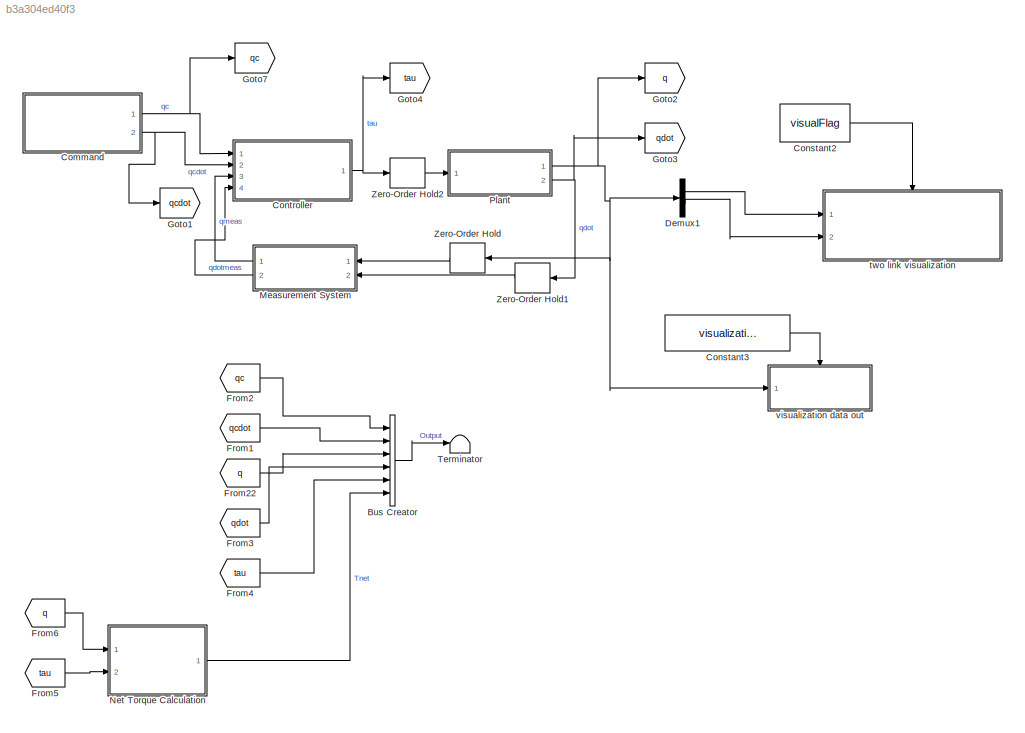
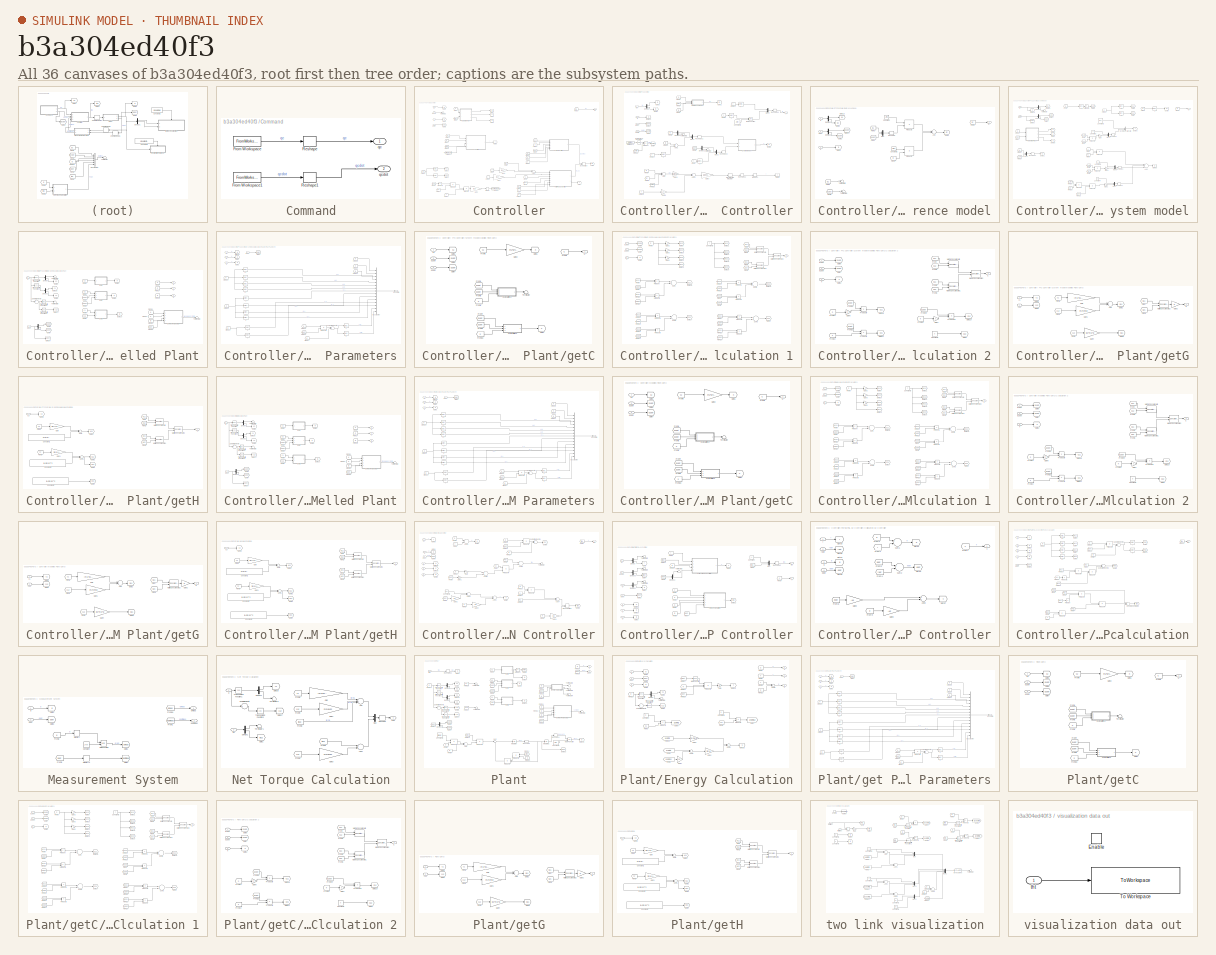
[diagram: thumbnail index - all 36 canvases of the model, root first then tree order]
MODEL slx_b3a304ed40f3
KIND model
BLOCK [BusCreator] Bus Creator
  DisplayOption = bar
  Inputs = 6
  Ports = [6, 1]
BLOCK [SubSystem] Command
  Ports = [0, 2]
  RequestExecContextInheritance = off
  SystemSampleTime = dtFC
  TreatAsAtomicUnit = on
BLOCK [FromWorkspace] Command/From Workspace
  OutputAfterFinalValue = Setting to zero
  VariableName = qcData
  ZeroCross = on
BLOCK [FromWorkspace] Command/From Workspace1
  OutputAfterFinalValue = Setting to zero
  VariableName = qcdotData
  ZeroCross = on
BLOCK [Reshape] Command/Reshape
  OutputDimensionality = Column vector (2-D)
  Ports = [1, 1]
BLOCK [Reshape] Command/Reshape1
  OutputDimensionality = Column vector (2-D)
  Ports = [1, 1]
BLOCK [Outport] Command/qc
  IconDisplay = Port number
BLOCK [Outport] Command/qcdot
  IconDisplay = Port number
  Port = 2
BLOCK [Constant] Constant2
  Value = visualFlag
BLOCK [Constant] Constant3
  Value = visualizationDataFlag
BLOCK [SubSystem] Controller
  Ports = [4, 1]
  RequestExecContextInheritance = off
  SystemSampleTime = dtFC
  TreatAsAtomicUnit = on
BLOCK [SubSystem] Controller/ FTC Controller
  Ports = [4, 1]
  RequestExecContextInheritance = off
  TreatAsAtomicUnit = on
BLOCK [Selector] Controller/ FTC Controller/1
  IndexOptions = Index vector (dialog),Index vector (dialog)
  Indices = 1,1
  InputPortWidth = 3
  NumberOfDimensions = 2
  OutputSizes = 1,1
  Ports = [1, 1]
BLOCK [Selector] Controller/ FTC Controller/2
  IndexOptions = Index vector (dialog),Index vector (dialog)
  Indices = 1,1
  InputPortWidth = 3
  NumberOfDimensions = 2
  OutputSizes = 1,1
  Ports = [1, 1]
BLOCK [Selector] Controller/ FTC Controller/3
  IndexOptions = Index vector (dialog),Index vector (dialog)
  Indices = 2,1
  InputPortWidth = 3
  NumberOfDimensions = 2
  OutputSizes = 1,1
  Ports = [1, 1]
BLOCK [Selector] Controller/ FTC Controller/4
  IndexOptions = Index vector (dialog),Index vector (dialog)
  Indices = 2,1
  InputPortWidth = 3
  NumberOfDimensions = 2
  OutputSizes = 1,1
  Ports = [1, 1]
BLOCK [Sum] Controller/ FTC Controller/Add
  InputSameDT = off
  Inputs = +-+
  OutDataTypeStr = Inherit: Inherit via internal rule
  Ports = [3, 1]
  SaturateOnIntegerOverflow = off
BLOCK [Sum] Controller/ FTC Controller/Add1
  InputSameDT = off
  OutDataTypeStr = Inherit: Inherit via internal rule
  Ports = [2, 1]
  SaturateOnIntegerOverflow = off
BLOCK [Sum] Controller/ FTC Controller/Add2
  InputSameDT = off
  OutDataTypeStr = Inherit: Inherit via internal rule
  Ports = [2, 1]
  SaturateOnIntegerOverflow = off
BLOCK [Inport] Controller/ FTC Controller/Comp
  IconDisplay = Port number
  Port = 4
BLOCK [Reference] Controller/ FTC Controller/Compare To Constant  REF=simulink/Logic and Bit
Operations/Compare
To Constant
  OutDataTypeStr = uint8
  Ports = [1, 1]
  SourceBlock = simulink/Logic and Bit\nOperations/Compare\nTo Constant
  SourceType = Compare To Constant
  ZeroCross = on
  const = 17.2
  relop = <=
BLOCK [Constant] Controller/ FTC Controller/Constant2
  Value = 2*pi
BLOCK [Demux] Controller/ FTC Controller/Demux
  DisplayOption = bar
  Outputs = 2
  Ports = [1, 2]
BLOCK [Demux] Controller/ FTC Controller/Demux1
  DisplayOption = bar
  Outputs = 2
  Ports = [1, 2]
BLOCK [Demux] Controller/ FTC Controller/Demux3
  DisplayOption = bar
  Outputs = 2
  Ports = [1, 2]
BLOCK [DigitalClock] Controller/ FTC Controller/Digital Clock
  SampleTime = dt
BLOCK [DiscreteIntegrator] Controller/ FTC Controller/Discrete-Time Integrator
  InitialCondition = r0
  InitialConditionSetting = State (most efficient)
  IntegratorMethod = Integration: Backward Euler
  LimitOutput = on
  LowerSaturationLimit = rmin
  Ports = [1, 1]
  SampleTime = -1
  UpperSaturationLimit = rmax
BLOCK [From] Controller/ FTC Controller/From1
  GotoTag = r
BLOCK [From] Controller/ FTC Controller/From10
  GotoTag = r
BLOCK [From] Controller/ FTC Controller/From11
  GotoTag = r
BLOCK [From] Controller/ FTC Controller/From12
  GotoTag = Comp2
BLOCK [From] Controller/ FTC Controller/From13
  GotoTag = r2
BLOCK [From] Controller/ FTC Controller/From14
  GotoTag = r
BLOCK [From] Controller/ FTC Controller/From15
  GotoTag = Comp
BLOCK [From] Controller/ FTC Controller/From2
  GotoTag = q
BLOCK [From] Controller/ FTC Controller/From3
  GotoTag = qdot
BLOCK [From] Controller/ FTC Controller/From4
  GotoTag = r1
BLOCK [From] Controller/ FTC Controller/From5
  GotoTag = f1r
BLOCK [From] Controller/ FTC Controller/From6
  GotoTag = q
BLOCK [From] Controller/ FTC Controller/From7
  GotoTag = r
BLOCK [From] Controller/ FTC Controller/From8
  GotoTag = f1
BLOCK [From] Controller/ FTC Controller/From9
  GotoTag = qdot
BLOCK [Gain] Controller/ FTC Controller/Gain3
  Gain = [1/epsilon]'
  OutDataTypeStr = Inherit: Inherit via internal rule
  ParamDataTypeStr = Inherit: Inherit via internal rule
  SaturateOnIntegerOverflow = off
BLOCK [Gain] Controller/ FTC Controller/Gain4
  Gain = alpha
  OutDataTypeStr = Inherit: Inherit via internal rule
  ParamDataTypeStr = Inherit: Inherit via internal rule
  SaturateOnIntegerOverflow = off
BLOCK [Gain] Controller/ FTC Controller/Gain8
  Gain = Ar
  Multiplication = Matrix(K*u)
  OutDataTypeStr = Inherit: Inherit via internal rule
  ParamDataTypeStr = Inherit: Inherit via internal rule
  SaturateOnIntegerOverflow = off
BLOCK [Goto] Controller/ FTC Controller/Goto1
  GotoTag = f1r
BLOCK [Goto] Controller/ FTC Controller/Goto13
  GotoTag = q
BLOCK [Goto] Controller/ FTC Controller/Goto17
  GotoTag = qdot
BLOCK [Goto] Controller/ FTC Controller/Goto2
  GotoTag = f1
BLOCK [Goto] Controller/ FTC Controller/Goto3
  GotoTag = r1
BLOCK [Goto] Controller/ FTC Controller/Goto4
  GotoTag = r2
BLOCK [Goto] Controller/ FTC Controller/Goto5
  GotoTag = r
BLOCK [Goto] Controller/ FTC Controller/Goto6
  GotoTag = Comp
BLOCK [Goto] Controller/ FTC Controller/Goto7
  GotoTag = Comp2
BLOCK [Math] Controller/ FTC Controller/Math Function
  Operator = rem
  Ports = [2, 1]
BLOCK [Memory] Controller/ FTC Controller/Memory3
  InheritSampleTime = on
  LinearizeAsDelay = on
  LinearizeMemory = on
  X0 = r0
BLOCK [Mux] Controller/ FTC Controller/Mux1
  DisplayOption = bar
  Inputs = 2
  Ports = [2, 1]
BLOCK [Mux] Controller/ FTC Controller/Mux2
  DisplayOption = bar
  Inputs = 2
  Ports = [2, 1]
BLOCK [Mux] Controller/ FTC Controller/Mux3
  DisplayOption = bar
  Inputs = 2
  Ports = [2, 1]
BLOCK [Product] Controller/ FTC Controller/Product
  InputSameDT = off
  OutDataTypeStr = Inherit: Inherit via internal rule
  Ports = [2, 1]
  RndMeth = Floor
  SaturateOnIntegerOverflow = off
BLOCK [SubSystem] Controller/ FTC Controller/Reference model
  Ports = [3, 1]
  RequestExecContextInheritance = off
  TreatAsAtomicUnit = on
BLOCK [Sum] Controller/ FTC Controller/Reference model/Add
  InputSameDT = off
  OutDataTypeStr = Inherit: Inherit via internal rule
  Ports = [2, 1]
  SaturateOnIntegerOverflow = off
BLOCK [Constant] Controller/ FTC Controller/Reference model/Constant
  Value = Arm1
  VectorParams1D = off
BLOCK [Constant] Controller/ FTC Controller/Reference model/Constant1
  Value = Brm1
  VectorParams1D = off
BLOCK [Demux] Controller/ FTC Controller/Reference model/Demux2
  DisplayOption = bar
  Outputs = 2
  Ports = [1, 2]
BLOCK [Demux] Controller/ FTC Controller/Reference model/Demux3
  DisplayOption = bar
  Outputs = 2
  Ports = [1, 2]
BLOCK [From] Controller/ FTC Controller/Reference model/From1
  GotoTag = q1dot
BLOCK [From] Controller/ FTC Controller/Reference model/From2
  GotoTag = f1r
BLOCK [From] Controller/ FTC Controller/Reference model/From3
  GotoTag = q1
BLOCK [From] Controller/ FTC Controller/Reference model/From4
  GotoTag = r1
BLOCK [From] Controller/ FTC Controller/Reference model/From5
  GotoTag = q2dot
BLOCK [From] Controller/ FTC Controller/Reference model/From6
  GotoTag = q2
BLOCK [Goto] Controller/ FTC Controller/Reference model/Goto1
  GotoTag = q2
BLOCK [Goto] Controller/ FTC Controller/Reference model/Goto13
  GotoTag = q1
BLOCK [Goto] Controller/ FTC Controller/Reference model/Goto17
  GotoTag = q1dot
BLOCK [Goto] Controller/ FTC Controller/Reference model/Goto2
  GotoTag = q2dot
BLOCK [Goto] Controller/ FTC Controller/Reference model/Goto3
  GotoTag = r1
BLOCK [Goto] Controller/ FTC Controller/Reference model/Goto5
  GotoTag = f1r
BLOCK [Mux] Controller/ FTC Controller/Reference model/Mux
  DisplayOption = bar
  Inputs = 2
  Ports = [2, 1]
BLOCK [Product] Controller/ FTC Controller/Reference model/Product1
  InputSameDT = off
  Multiplication = Matrix(*)
  OutDataTypeStr = Inherit: Inherit via internal rule
  Ports = [2, 1]
  RndMeth = Floor
  SaturateOnIntegerOverflow = off
BLOCK [Product] Controller/ FTC Controller/Reference model/Product3
  InputSameDT = off
  Multiplication = Matrix(*)
  OutDataTypeStr = Inherit: Inherit via internal rule
  Ports = [2, 1]
  RndMeth = Floor
  SaturateOnIntegerOverflow = off
BLOCK [Reshape] Controller/ FTC Controller/Reference model/Reshape
  OutputDimensionality = Column vector (2-D)
  Ports = [1, 1]
BLOCK [Terminator] Controller/ FTC Controller/Reference model/Terminator4
BLOCK [Terminator] Controller/ FTC Controller/Reference model/Terminator5
BLOCK [Outport] Controller/ FTC Controller/Reference model/f1r
  IconDisplay = Port number
BLOCK [Inport] Controller/ FTC Controller/Reference model/q
  IconDisplay = Port number
BLOCK [Inport] Controller/ FTC Controller/Reference model/qdot
  IconDisplay = Port number
  Port = 2
BLOCK [Inport] Controller/ FTC Controller/Reference model/r1
  IconDisplay = Port number
  Port = 3
BLOCK [Reshape] Controller/ FTC Controller/Reshape1
  OutputDimensionality = Column vector (2-D)
  Ports = [1, 1]
BLOCK [Reshape] Controller/ FTC Controller/Reshape2
  OutputDimensionality = Column vector (2-D)
  Ports = [1, 1]
BLOCK [Reshape] Controller/ FTC Controller/Reshape3
  OutputDimensionality = Column vector (2-D)
  Ports = [1, 1]
BLOCK [Reshape] Controller/ FTC Controller/Reshape4
  OutputDimensionality = Column vector (2-D)
  Ports = [1, 1]
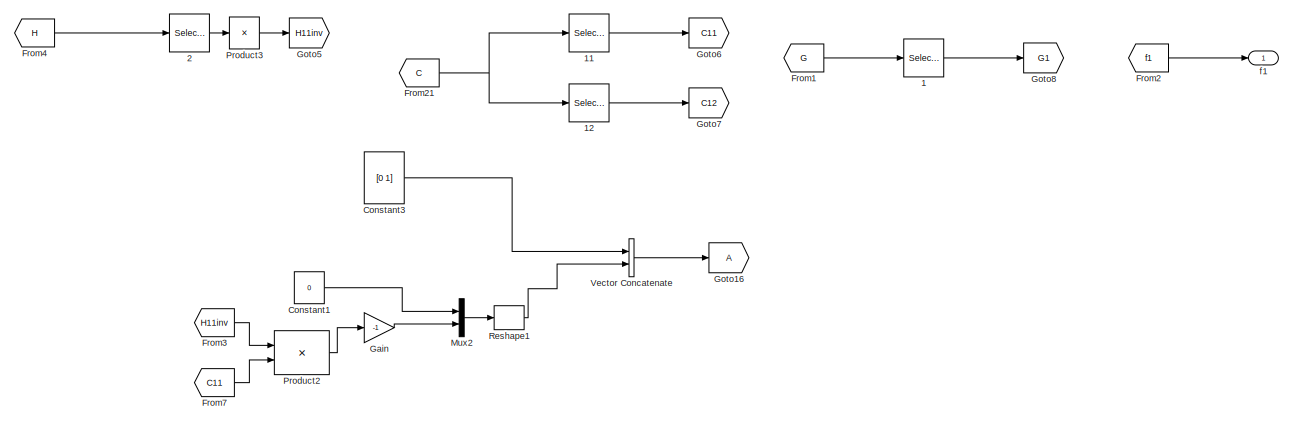
[diagram: Controller/ FTC Controller/System model - part 1/3, full width, top band]
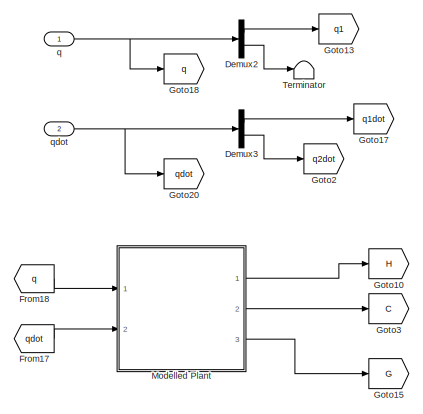
[diagram: Controller/ FTC Controller/System model - part 2/3, top left region]
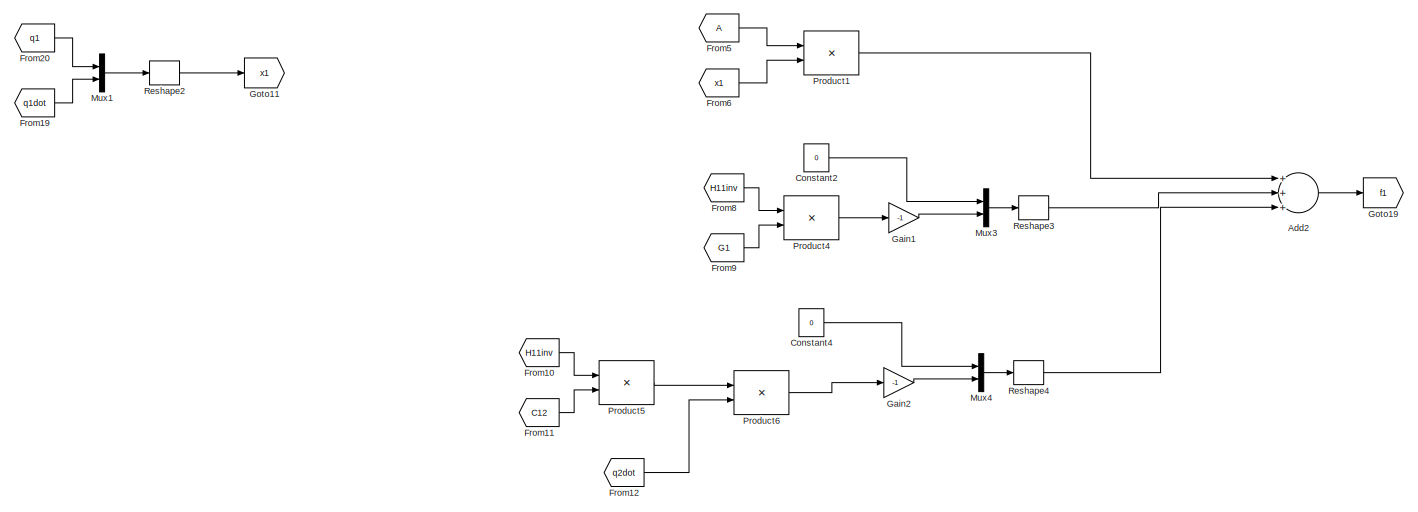
[diagram: Controller/ FTC Controller/System model - part 3/3, full width, bottom band]
BLOCK [SubSystem] Controller/ FTC Controller/System model
  Ports = [2, 1]
  RequestExecContextInheritance = off
  TreatAsAtomicUnit = on
BLOCK [Selector] Controller/ FTC Controller/System model/1
  IndexOptions = Index vector (dialog),Index vector (dialog)
  Indices = 1,1
  InputPortWidth = 3
  NumberOfDimensions = 2
  OutputSizes = 1,1
  Ports = [1, 1]
BLOCK [Selector] Controller/ FTC Controller/System model/11
  IndexOptions = Index vector (dialog),Index vector (dialog)
  Indices = 1,1
  InputPortWidth = 3
  NumberOfDimensions = 2
  OutputSizes = 1,1
  Ports = [1, 1]
BLOCK [Selector] Controller/ FTC Controller/System model/12
  IndexOptions = Index vector (dialog),Index vector (dialog)
  Indices = 1,2
  InputPortWidth = 3
  NumberOfDimensions = 2
  OutputSizes = 1,1
  Ports = [1, 1]
BLOCK [Selector] Controller/ FTC Controller/System model/2
  IndexOptions = Index vector (dialog),Index vector (dialog)
  Indices = 1,1
  InputPortWidth = 3
  NumberOfDimensions = 2
  OutputSizes = 1,1
  Ports = [1, 1]
BLOCK [Sum] Controller/ FTC Controller/System model/Add2
  InputSameDT = off
  Inputs = +++
  OutDataTypeStr = Inherit: Inherit via internal rule
  Ports = [3, 1]
  SaturateOnIntegerOverflow = off
BLOCK [Constant] Controller/ FTC Controller/System model/Constant1
  Value = 0
  VectorParams1D = off
BLOCK [Constant] Controller/ FTC Controller/System model/Constant2
  Value = 0
  VectorParams1D = off
BLOCK [Constant] Controller/ FTC Controller/System model/Constant3
  Value = [0 1]
  VectorParams1D = off
BLOCK [Constant] Controller/ FTC Controller/System model/Constant4
  Value = 0
  VectorParams1D = off
BLOCK [Demux] Controller/ FTC Controller/System model/Demux2
  DisplayOption = bar
  Outputs = 2
  Ports = [1, 2]
BLOCK [Demux] Controller/ FTC Controller/System model/Demux3
  DisplayOption = bar
  Outputs = 2
  Ports = [1, 2]
BLOCK [From] Controller/ FTC Controller/System model/From1
  GotoTag = G
BLOCK [From] Controller/ FTC Controller/System model/From10
  GotoTag = H11inv
BLOCK [From] Controller/ FTC Controller/System model/From11
  GotoTag = C12
BLOCK [From] Controller/ FTC Controller/System model/From12
  GotoTag = q2dot
BLOCK [From] Controller/ FTC Controller/System model/From17
  GotoTag = qdot
BLOCK [From] Controller/ FTC Controller/System model/From18
  GotoTag = q
BLOCK [From] Controller/ FTC Controller/System model/From19
  GotoTag = q1dot
BLOCK [From] Controller/ FTC Controller/System model/From2
  GotoTag = f1
BLOCK [From] Controller/ FTC Controller/System model/From20
  GotoTag = q1
BLOCK [From] Controller/ FTC Controller/System model/From21
  GotoTag = C
BLOCK [From] Controller/ FTC Controller/System model/From3
  GotoTag = H11inv
BLOCK [From] Controller/ FTC Controller/System model/From4
  GotoTag = H
BLOCK [From] Controller/ FTC Controller/System model/From5
BLOCK [From] Controller/ FTC Controller/System model/From6
  GotoTag = x1
BLOCK [From] Controller/ FTC Controller/System model/From7
  GotoTag = C11
BLOCK [From] Controller/ FTC Controller/System model/From8
  GotoTag = H11inv
BLOCK [From] Controller/ FTC Controller/System model/From9
  GotoTag = G1
BLOCK [Gain] Controller/ FTC Controller/System model/Gain
  Gain = -1
  OutDataTypeStr = Inherit: Inherit via internal rule
  ParamDataTypeStr = Inherit: Inherit via internal rule
  SaturateOnIntegerOverflow = off
BLOCK [Gain] Controller/ FTC Controller/System model/Gain1
  Gain = -1
  OutDataTypeStr = Inherit: Inherit via internal rule
  ParamDataTypeStr = Inherit: Inherit via internal rule
  SaturateOnIntegerOverflow = off
BLOCK [Gain] Controller/ FTC Controller/System model/Gain2
  Gain = -1
  OutDataTypeStr = Inherit: Inherit via internal rule
  ParamDataTypeStr = Inherit: Inherit via internal rule
  SaturateOnIntegerOverflow = off
BLOCK [Goto] Controller/ FTC Controller/System model/Goto10
  GotoTag = H
BLOCK [Goto] Controller/ FTC Controller/System model/Goto11
  GotoTag = x1
BLOCK [Goto] Controller/ FTC Controller/System model/Goto13
  GotoTag = q1
BLOCK [Goto] Controller/ FTC Controller/System model/Goto15
  GotoTag = G
BLOCK [Goto] Controller/ FTC Controller/System model/Goto16
BLOCK [Goto] Controller/ FTC Controller/System model/Goto17
  GotoTag = q1dot
BLOCK [Goto] Controller/ FTC Controller/System model/Goto18
  GotoTag = q
BLOCK [Goto] Controller/ FTC Controller/System model/Goto19
  GotoTag = f1
BLOCK [Goto] Controller/ FTC Controller/System model/Goto2
  GotoTag = q2dot
BLOCK [Goto] Controller/ FTC Controller/System model/Goto20
  GotoTag = qdot
BLOCK [Goto] Controller/ FTC Controller/System model/Goto3
  GotoTag = C
BLOCK [Goto] Controller/ FTC Controller/System model/Goto5
  GotoTag = H11inv
BLOCK [Goto] Controller/ FTC Controller/System model/Goto6
  GotoTag = C11
BLOCK [Goto] Controller/ FTC Controller/System model/Goto7
  GotoTag = C12
BLOCK [Goto] Controller/ FTC Controller/System model/Goto8
  GotoTag = G1
BLOCK [SubSystem] Controller/ FTC Controller/System model/Modelled Plant
  Ports = [2, 3]
  RequestExecContextInheritance = off
  TreatAsAtomicUnit = on
BLOCK [Outport] Controller/ FTC Controller/System model/Modelled Plant/C
  IconDisplay = Port number
  Port = 2
BLOCK [Demux] Controller/ FTC Controller/System model/Modelled Plant/Demux
  DisplayOption = bar
  Outputs = 2
  Ports = [1, 2]
BLOCK [Demux] Controller/ FTC Controller/System model/Modelled Plant/Demux1
  DisplayOption = bar
  Outputs = 2
  Ports = [1, 2]
BLOCK [Demux] Controller/ FTC Controller/System model/Modelled Plant/Demux2
  DisplayOption = bar
  Outputs = 2
  Ports = [1, 2]
BLOCK [From] Controller/ FTC Controller/System model/Modelled Plant/From1
  GotoTag = s2
BLOCK [From] Controller/ FTC Controller/System model/Modelled Plant/From17
  GotoTag = C
BLOCK [From] Controller/ FTC Controller/System model/Modelled Plant/From18
  GotoTag = G
BLOCK [From] Controller/ FTC Controller/System model/Modelled Plant/From2
  GotoTag = q1dot
BLOCK [From] Controller/ FTC Controller/System model/Modelled Plant/From21
  GotoTag = H
BLOCK [From] Controller/ FTC Controller/System model/Modelled Plant/From22
  GotoTag = C
BLOCK [From] Controller/ FTC Controller/System model/Modelled Plant/From23
  GotoTag = G
BLOCK [From] Controller/ FTC Controller/System model/Modelled Plant/From25
  GotoTag = qdot
BLOCK [From] Controller/ FTC Controller/System model/Modelled Plant/From3
  GotoTag = q2dot
BLOCK [From] Controller/ FTC Controller/System model/Modelled Plant/From4
  GotoTag = c2
BLOCK [From] Controller/ FTC Controller/System model/Modelled Plant/From5
  GotoTag = c1
BLOCK [From] Controller/ FTC Controller/System model/Modelled Plant/From6
  GotoTag = c12
BLOCK [From] Controller/ FTC Controller/System model/Modelled Plant/From9
  GotoTag = H
BLOCK [Outport] Controller/ FTC Controller/System model/Modelled Plant/G
  IconDisplay = Port number
  Port = 3
BLOCK [Goto] Controller/ FTC Controller/System model/Modelled Plant/Goto10
  GotoTag = G
BLOCK [Goto] Controller/ FTC Controller/System model/Modelled Plant/Goto14
  GotoTag = qdot
BLOCK [Goto] Controller/ FTC Controller/System model/Modelled Plant/Goto16
  GotoTag = c1
BLOCK [Goto] Controller/ FTC Controller/System model/Modelled Plant/Goto17
  GotoTag = c12
BLOCK [Goto] Controller/ FTC Controller/System model/Modelled Plant/Goto2
  GotoTag = q1dot
BLOCK [Goto] Controller/ FTC Controller/System model/Modelled Plant/Goto3
  GotoTag = s2
BLOCK [Goto] Controller/ FTC Controller/System model/Modelled Plant/Goto4
  GotoTag = H
BLOCK [Goto] Controller/ FTC Controller/System model/Modelled Plant/Goto5
  GotoTag = c2
BLOCK [Goto] Controller/ FTC Controller/System model/Modelled Plant/Goto7
  GotoTag = q2dot
BLOCK [Goto] Controller/ FTC Controller/System model/Modelled Plant/Goto9
  GotoTag = C
BLOCK [Outport] Controller/ FTC Controller/System model/Modelled Plant/H
  IconDisplay = Port number
BLOCK [Sum] Controller/ FTC Controller/System model/Modelled Plant/Sum of Elements
  InputSameDT = off
  Inputs = +
  OutDataTypeStr = Inherit: Inherit via internal rule
  Ports = [1, 1]
  SaturateOnIntegerOverflow = off
BLOCK [Terminator] Controller/ FTC Controller/System model/Modelled Plant/Terminator4
BLOCK [Terminator] Controller/ FTC Controller/System model/Modelled Plant/Terminator5
BLOCK [Terminator] Controller/ FTC Controller/System model/Modelled Plant/Terminator6
BLOCK [Trigonometry] Controller/ FTC Controller/System model/Modelled Plant/Trigonometric Function
  Ports = [1, 1]
BLOCK [Trigonometry] Controller/ FTC Controller/System model/Modelled Plant/Trigonometric Function1
  Operator = cos
  Ports = [1, 1]
BLOCK [Trigonometry] Controller/ FTC Controller/System model/Modelled Plant/Trigonometric Function2
  Ports = [1, 1]
BLOCK [Trigonometry] Controller/ FTC Controller/System model/Modelled Plant/Trigonometric Function3
  Operator = cos
  Ports = [1, 1]
BLOCK [SubSystem] Controller/ FTC Controller/System model/Modelled Plant/get Plant Parameters
  Ports = [4, 1]
  RequestExecContextInheritance = off
BLOCK [Selector] Controller/ FTC Controller/System model/Modelled Plant/get Plant Parameters/1
  IndexOptions = Index vector (dialog),Index vector (dialog)
  Indices = 1,1
  InputPortWidth = 3
  NumberOfDimensions = 2
  OutputSizes = 1,1
  Ports = [1, 1]
BLOCK [Selector] Controller/ FTC Controller/System model/Modelled Plant/get Plant Parameters/11
  IndexOptions = Index vector (dialog),Index vector (dialog)
  Indices = 1,1
  InputPortWidth = 3
  NumberOfDimensions = 2
  OutputSizes = 1,1
  Ports = [1, 1]
BLOCK [Selector] Controller/ FTC Controller/System model/Modelled Plant/get Plant Parameters/12
  IndexOptions = Index vector (dialog),Index vector (dialog)
  Indices = 1,2
  InputPortWidth = 3
  NumberOfDimensions = 2
  OutputSizes = 1,1
  Ports = [1, 1]
BLOCK [Selector] Controller/ FTC Controller/System model/Modelled Plant/get Plant Parameters/2
  IndexOptions = Index vector (dialog),Index vector (dialog)
  Indices = 1,2
  InputPortWidth = 3
  NumberOfDimensions = 2
  OutputSizes = 1,1
  Ports = [1, 1]
BLOCK [Selector] Controller/ FTC Controller/System model/Modelled Plant/get Plant Parameters/21
  IndexOptions = Index vector (dialog),Index vector (dialog)
  Indices = 2,1
  InputPortWidth = 3
  NumberOfDimensions = 2
  OutputSizes = 1,1
  Ports = [1, 1]
BLOCK [Selector] Controller/ FTC Controller/System model/Modelled Plant/get Plant Parameters/22
  IndexOptions = Index vector (dialog),Index vector (dialog)
  Indices = 2,2
  InputPortWidth = 3
  NumberOfDimensions = 2
  OutputSizes = 1,1
  Ports = [1, 1]
BLOCK [Selector] Controller/ FTC Controller/System model/Modelled Plant/get Plant Parameters/3
  IndexOptions = Index vector (dialog),Index vector (dialog)
  Indices = 2,1
  InputPortWidth = 3
  NumberOfDimensions = 2
  OutputSizes = 1,1
  Ports = [1, 1]
BLOCK [Selector] Controller/ FTC Controller/System model/Modelled Plant/get Plant Parameters/4
  IndexOptions = Index vector (dialog),Index vector (dialog)
  Indices = 2,2
  InputPortWidth = 3
  NumberOfDimensions = 2
  OutputSizes = 1,1
  Ports = [1, 1]
BLOCK [Selector] Controller/ FTC Controller/System model/Modelled Plant/get Plant Parameters/5
  IndexOptions = Index vector (dialog),Index vector (dialog)
  Indices = 1,1
  InputPortWidth = 3
  NumberOfDimensions = 2
  OutputSizes = 1,1
  Ports = [1, 1]
BLOCK [Selector] Controller/ FTC Controller/System model/Modelled Plant/get Plant Parameters/6
  IndexOptions = Index vector (dialog),Index vector (dialog)
  Indices = 2,1
  InputPortWidth = 3
  NumberOfDimensions = 2
  OutputSizes = 1,1
  Ports = [1, 1]
BLOCK [Selector] Controller/ FTC Controller/System model/Modelled Plant/get Plant Parameters/7
  IndexOptions = Index vector (dialog),Index vector (dialog)
  Indices = 1,1
  InputPortWidth = 3
  NumberOfDimensions = 2
  OutputSizes = 1,1
  Ports = [1, 1]
BLOCK [Selector] Controller/ FTC Controller/System model/Modelled Plant/get Plant Parameters/8
  IndexOptions = Index vector (dialog),Index vector (dialog)
  Indices = 2,1
  InputPortWidth = 3
  NumberOfDimensions = 2
  OutputSizes = 1,1
  Ports = [1, 1]
BLOCK [BusCreator] Controller/ FTC Controller/System model/Modelled Plant/get Plant Parameters/Bus Creator
  DisplayOption = bar
  Inputs = 15
  Ports = [15, 1]
BLOCK [Inport] Controller/ FTC Controller/System model/Modelled Plant/get Plant Parameters/C
  IconDisplay = Port number
  Port = 2
BLOCK [From] Controller/ FTC Controller/System model/Modelled Plant/get Plant Parameters/From21
  GotoTag = H
BLOCK [From] Controller/ FTC Controller/System model/Modelled Plant/get Plant Parameters/From22
  GotoTag = C
BLOCK [From] Controller/ FTC Controller/System model/Modelled Plant/get Plant Parameters/From23
  GotoTag = G
BLOCK [From] Controller/ FTC Controller/System model/Modelled Plant/get Plant Parameters/From25
  GotoTag = C
BLOCK [From] Controller/ FTC Controller/System model/Modelled Plant/get Plant Parameters/From26
  GotoTag = qdot
BLOCK [From] Controller/ FTC Controller/System model/Modelled Plant/get Plant Parameters/From27
  GotoTag = G
BLOCK [From] Controller/ FTC Controller/System model/Modelled Plant/get Plant Parameters/From28
  GotoTag = H
BLOCK [From] Controller/ FTC Controller/System model/Modelled Plant/get Plant Parameters/From29
  GotoTag = C
BLOCK [From] Controller/ FTC Controller/System model/Modelled Plant/get Plant Parameters/From30
  GotoTag = G
BLOCK [Inport] Controller/ FTC Controller/System model/Modelled Plant/get Plant Parameters/G
  IconDisplay = Port number
  Port = 3
BLOCK [Goto] Controller/ FTC Controller/System model/Modelled Plant/get Plant Parameters/Goto1
  GotoTag = C
BLOCK [Goto] Controller/ FTC Controller/System model/Modelled Plant/get Plant Parameters/Goto15
  GotoTag = H
BLOCK [Goto] Controller/ FTC Controller/System model/Modelled Plant/get Plant Parameters/Goto2
  GotoTag = G
BLOCK [Goto] Controller/ FTC Controller/System model/Modelled Plant/get Plant Parameters/Goto3
  GotoTag = qdot
BLOCK [Inport] Controller/ FTC Controller/System model/Modelled Plant/get Plant Parameters/H
  IconDisplay = Port number
BLOCK [Product] Controller/ FTC Controller/System model/Modelled Plant/get Plant Parameters/Product5
  InputSameDT = off
  Multiplication = Matrix(*)
  OutDataTypeStr = Inherit: Inherit via internal rule
  Ports = [2, 1]
  SaturateOnIntegerOverflow = off
BLOCK [Sum] Controller/ FTC Controller/System model/Modelled Plant/get Plant Parameters/Sum of Elements1
  InputSameDT = off
  OutDataTypeStr = Inherit: Inherit via internal rule
  Ports = [2, 1]
  SaturateOnIntegerOverflow = off
BLOCK [Outport] Controller/ FTC Controller/System model/Modelled Plant/get Plant Parameters/busData
  IconDisplay = Port number
BLOCK [Inport] Controller/ FTC Controller/System model/Modelled Plant/get Plant Parameters/qdot
  IconDisplay = Port number
  Port = 4
BLOCK [SubSystem] Controller/ FTC Controller/System model/Modelled Plant/getC
  Ports = [3, 1]
  RequestExecContextInheritance = off
BLOCK [Outport] Controller/ FTC Controller/System model/Modelled Plant/getC/C
  IconDisplay = Port number
BLOCK [SubSystem] Controller/ FTC Controller/System model/Modelled Plant/getC/C calculation 1
  Ports = [3, 1]
  RequestExecContextInheritance = off
BLOCK [Outport] Controller/ FTC Controller/System model/Modelled Plant/getC/C calculation 1/C
  IconDisplay = Port number
BLOCK [Constant] Controller/ FTC Controller/System model/Modelled Plant/getC/C calculation 1/Constant3
  Value = 0
  VectorParams1D = off
BLOCK [From] Controller/ FTC Controller/System model/Modelled Plant/getC/C calculation 1/From
  GotoTag = C11
BLOCK [From] Controller/ FTC Controller/System model/Modelled Plant/getC/C calculation 1/From1
  GotoTag = C12
BLOCK [From] Controller/ FTC Controller/System model/Modelled Plant/getC/C calculation 1/From10
  GotoTag = q2dot
BLOCK [From] Controller/ FTC Controller/System model/Modelled Plant/getC/C calculation 1/From11
  GotoTag = N112
BLOCK [From] Controller/ FTC Controller/System model/Modelled Plant/getC/C calculation 1/From12
  GotoTag = q1dot
BLOCK [From] Controller/ FTC Controller/System model/Modelled Plant/getC/C calculation 1/From13
  GotoTag = N121
BLOCK [From] Controller/ FTC Controller/System model/Modelled Plant/getC/C calculation 1/From14
  GotoTag = q2dot
BLOCK [From] Controller/ FTC Controller/System model/Modelled Plant/getC/C calculation 1/From15
  GotoTag = N212
BLOCK [From] Controller/ FTC Controller/System model/Modelled Plant/getC/C calculation 1/From16
  GotoTag = q1dot
BLOCK [From] Controller/ FTC Controller/System model/Modelled Plant/getC/C calculation 1/From17
  GotoTag = N221
BLOCK [From] Controller/ FTC Controller/System model/Modelled Plant/getC/C calculation 1/From18
  GotoTag = q1dot
BLOCK [From] Controller/ FTC Controller/System model/Modelled Plant/getC/C calculation 1/From19
  GotoTag = N211
BLOCK [From] Controller/ FTC Controller/System model/Modelled Plant/getC/C calculation 1/From2
  GotoTag = C21
BLOCK [From] Controller/ FTC Controller/System model/Modelled Plant/getC/C calculation 1/From20
  GotoTag = q2dot
BLOCK [From] Controller/ FTC Controller/System model/Modelled Plant/getC/C calculation 1/From21
  GotoTag = N222
BLOCK [From] Controller/ FTC Controller/System model/Modelled Plant/getC/C calculation 1/From3
  GotoTag = C22
BLOCK [From] Controller/ FTC Controller/System model/Modelled Plant/getC/C calculation 1/From4
  GotoTag = q1dot
BLOCK [From] Controller/ FTC Controller/System model/Modelled Plant/getC/C calculation 1/From5
  GotoTag = N111
BLOCK [From] Controller/ FTC Controller/System model/Modelled Plant/getC/C calculation 1/From6
  GotoTag = q2dot
BLOCK [From] Controller/ FTC Controller/System model/Modelled Plant/getC/C calculation 1/From7
  GotoTag = N122
BLOCK [From] Controller/ FTC Controller/System model/Modelled Plant/getC/C calculation 1/From9
  GotoTag = h
BLOCK [Gain] Controller/ FTC Controller/System model/Modelled Plant/getC/C calculation 1/Gain2
  Gain = -1
  OutDataTypeStr = Inherit: Inherit via internal rule
  ParamDataTypeStr = Inherit: Inherit via internal rule
  SaturateOnIntegerOverflow = off
BLOCK [Gain] Controller/ FTC Controller/System model/Modelled Plant/getC/C calculation 1/Gain3
  Gain = -1
  OutDataTypeStr = Inherit: Inherit via internal rule
  ParamDataTypeStr = Inherit: Inherit via internal rule
  SaturateOnIntegerOverflow = off
BLOCK [Gain] Controller/ FTC Controller/System model/Modelled Plant/getC/C calculation 1/Gain5
  Gain = -1
  OutDataTypeStr = Inherit: Inherit via internal rule
  ParamDataTypeStr = Inherit: Inherit via internal rule
  SaturateOnIntegerOverflow = off
BLOCK [Goto] Controller/ FTC Controller/System model/Modelled Plant/getC/C calculation 1/Goto1
  GotoTag = h
BLOCK [Goto] Controller/ FTC Controller/System model/Modelled Plant/getC/C calculation 1/Goto10
  GotoTag = N121
BLOCK [Goto] Controller/ FTC Controller/System model/Modelled Plant/getC/C calculation 1/Goto11
  GotoTag = N111
BLOCK [Goto] Controller/ FTC Controller/System model/Modelled Plant/getC/C calculation 1/Goto12
  GotoTag = N122
BLOCK [Goto] Controller/ FTC Controller/System model/Modelled Plant/getC/C calculation 1/Goto13
  GotoTag = N211
BLOCK [Goto] Controller/ FTC Controller/System model/Modelled Plant/getC/C calculation 1/Goto14
  GotoTag = N212
BLOCK [Goto] Controller/ FTC Controller/System model/Modelled Plant/getC/C calculation 1/Goto15
  GotoTag = N221
BLOCK [Goto] Controller/ FTC Controller/System model/Modelled Plant/getC/C calculation 1/Goto16
  GotoTag = N222
BLOCK [Goto] Controller/ FTC Controller/System model/Modelled Plant/getC/C calculation 1/Goto17
  GotoTag = C21
BLOCK [Goto] Controller/ FTC Controller/System model/Modelled Plant/getC/C calculation 1/Goto18
  GotoTag = C11
BLOCK [Goto] Controller/ FTC Controller/System model/Modelled Plant/getC/C calculation 1/Goto19
  GotoTag = C12
BLOCK [Goto] Controller/ FTC Controller/System model/Modelled Plant/getC/C calculation 1/Goto2
  GotoTag = C22
BLOCK [Goto] Controller/ FTC Controller/System model/Modelled Plant/getC/C calculation 1/Goto3
  GotoTag = N112
BLOCK [Goto] Controller/ FTC Controller/System model/Modelled Plant/getC/C calculation 1/Goto6
  GotoTag = q1dot
BLOCK [Goto] Controller/ FTC Controller/System model/Modelled Plant/getC/C calculation 1/Goto7
  GotoTag = q2dot
BLOCK [Concatenate] Controller/ FTC Controller/System model/Modelled Plant/getC/C calculation 1/Matrix Concatenate
  ConcatenateDimension = 2
  Mode = Multidimensional array
  Ports = [2, 1]
BLOCK [Concatenate] Controller/ FTC Controller/System model/Modelled Plant/getC/C calculation 1/Matrix Concatenate1
  ConcatenateDimension = 2
  Mode = Multidimensional array
  Ports = [2, 1]
BLOCK [Concatenate] Controller/ FTC Controller/System model/Modelled Plant/getC/C calculation 1/Matrix Concatenate2
  Mode = Multidimensional array
  Ports = [2, 1]
BLOCK [Product] Controller/ FTC Controller/System model/Modelled Plant/getC/C calculation 1/Product
  InputSameDT = off
  OutDataTypeStr = Inherit: Inherit via internal rule
  Ports = [2, 1]
  SaturateOnIntegerOverflow = off
BLOCK [Product] Controller/ FTC Controller/System model/Modelled Plant/getC/C calculation 1/Product1
  InputSameDT = off
  OutDataTypeStr = Inherit: Inherit via internal rule
  Ports = [2, 1]
  SaturateOnIntegerOverflow = off
BLOCK [Product] Controller/ FTC Controller/System model/Modelled Plant/getC/C calculation 1/Product2
  InputSameDT = off
  OutDataTypeStr = Inherit: Inherit via internal rule
  Ports = [2, 1]
  SaturateOnIntegerOverflow = off
BLOCK [Product] Controller/ FTC Controller/System model/Modelled Plant/getC/C calculation 1/Product3
  InputSameDT = off
  OutDataTypeStr = Inherit: Inherit via internal rule
  Ports = [2, 1]
  SaturateOnIntegerOverflow = off
BLOCK [Product] Controller/ FTC Controller/System model/Modelled Plant/getC/C calculation 1/Product4
  InputSameDT = off
  OutDataTypeStr = Inherit: Inherit via internal rule
  Ports = [2, 1]
  SaturateOnIntegerOverflow = off
BLOCK [Product] Controller/ FTC Controller/System model/Modelled Plant/getC/C calculation 1/Product5
  InputSameDT = off
  OutDataTypeStr = Inherit: Inherit via internal rule
  Ports = [2, 1]
  SaturateOnIntegerOverflow = off
BLOCK [Product] Controller/ FTC Controller/System model/Modelled Plant/getC/C calculation 1/Product6
  InputSameDT = off
  OutDataTypeStr = Inherit: Inherit via internal rule
  Ports = [2, 1]
  SaturateOnIntegerOverflow = off
BLOCK [Product] Controller/ FTC Controller/System model/Modelled Plant/getC/C calculation 1/Product7
  InputSameDT = off
  OutDataTypeStr = Inherit: Inherit via internal rule
  Ports = [2, 1]
  SaturateOnIntegerOverflow = off
BLOCK [Sum] Controller/ FTC Controller/System model/Modelled Plant/getC/C calculation 1/Sum
  InputSameDT = off
  OutDataTypeStr = Inherit: Inherit via internal rule
  Ports = [2, 1]
  SaturateOnIntegerOverflow = off
BLOCK [Sum] Controller/ FTC Controller/System model/Modelled Plant/getC/C calculation 1/Sum1
  InputSameDT = off
  OutDataTypeStr = Inherit: Inherit via internal rule
  Ports = [2, 1]
  SaturateOnIntegerOverflow = off
BLOCK [Sum] Controller/ FTC Controller/System model/Modelled Plant/getC/C calculation 1/Sum2
  InputSameDT = off
  OutDataTypeStr = Inherit: Inherit via internal rule
  Ports = [2, 1]
  SaturateOnIntegerOverflow = off
BLOCK [Sum] Controller/ FTC Controller/System model/Modelled Plant/getC/C calculation 1/Sum3
  InputSameDT = off
  OutDataTypeStr = Inherit: Inherit via internal rule
  Ports = [2, 1]
  SaturateOnIntegerOverflow = off
BLOCK [Inport] Controller/ FTC Controller/System model/Modelled Plant/getC/C calculation 1/h
  IconDisplay = Port number
  Port = 3
BLOCK [Inport] Controller/ FTC Controller/System model/Modelled Plant/getC/C calculation 1/q1dot
  IconDisplay = Port number
BLOCK [Inport] Controller/ FTC Controller/System model/Modelled Plant/getC/C calculation 1/q2dot
  IconDisplay = Port number
  Port = 2
BLOCK [SubSystem] Controller/ FTC Controller/System model/Modelled Plant/getC/C calculation 2
  Ports = [3, 1]
  RequestExecContextInheritance = off
BLOCK [Outport] Controller/ FTC Controller/System model/Modelled Plant/getC/C calculation 2/C
  IconDisplay = Port number
BLOCK [Constant] Controller/ FTC Controller/System model/Modelled Plant/getC/C calculation 2/Constant1
  Value = 0
  VectorParams1D = off
BLOCK [From] Controller/ FTC Controller/System model/Modelled Plant/getC/C calculation 2/From
  GotoTag = C11
BLOCK [From] Controller/ FTC Controller/System model/Modelled Plant/getC/C calculation 2/From1
  GotoTag = C12
BLOCK [From] Controller/ FTC Controller/System model/Modelled Plant/getC/C calculation 2/From2
  GotoTag = C21
BLOCK [From] Controller/ FTC Controller/System model/Modelled Plant/getC/C calculation 2/From22
  GotoTag = h
BLOCK [From] Controller/ FTC Controller/System model/Modelled Plant/getC/C calculation 2/From23
  GotoTag = q1dot
BLOCK [From] Controller/ FTC Controller/System model/Modelled Plant/getC/C calculation 2/From24
  GotoTag = h
BLOCK [From] Controller/ FTC Controller/System model/Modelled Plant/getC/C calculation 2/From25
  GotoTag = q2dot
BLOCK [From] Controller/ FTC Controller/System model/Modelled Plant/getC/C calculation 2/From26
  GotoTag = h
BLOCK [From] Controller/ FTC Controller/System model/Modelled Plant/getC/C calculation 2/From29
  GotoTag = q2dot
BLOCK [From] Controller/ FTC Controller/System model/Modelled Plant/getC/C calculation 2/From3
  GotoTag = C22
BLOCK [Gain] Controller/ FTC Controller/System model/Modelled Plant/getC/C calculation 2/Gain6
  Gain = -2
  OutDataTypeStr = Inherit: Inherit via internal rule
  ParamDataTypeStr = Inherit: Inherit via internal rule
  SaturateOnIntegerOverflow = off
BLOCK [Gain] Controller/ FTC Controller/System model/Modelled Plant/getC/C calculation 2/Gain7
  Gain = -1
  OutDataTypeStr = Inherit: Inherit via internal rule
  ParamDataTypeStr = Inherit: Inherit via internal rule
  SaturateOnIntegerOverflow = off
BLOCK [Goto] Controller/ FTC Controller/System model/Modelled Plant/getC/C calculation 2/Goto1
  GotoTag = h
BLOCK [Goto] Controller/ FTC Controller/System model/Modelled Plant/getC/C calculation 2/Goto17
  GotoTag = C21
BLOCK [Goto] Controller/ FTC Controller/System model/Modelled Plant/getC/C calculation 2/Goto18
  GotoTag = C11
BLOCK [Goto] Controller/ FTC Controller/System model/Modelled Plant/getC/C calculation 2/Goto19
  GotoTag = C12
BLOCK [Goto] Controller/ FTC Controller/System model/Modelled Plant/getC/C calculation 2/Goto2
  GotoTag = C22
BLOCK [Goto] Controller/ FTC Controller/System model/Modelled Plant/getC/C calculation 2/Goto6
  GotoTag = q1dot
BLOCK [Goto] Controller/ FTC Controller/System model/Modelled Plant/getC/C calculation 2/Goto7
  GotoTag = q2dot
BLOCK [Concatenate] Controller/ FTC Controller/System model/Modelled Plant/getC/C calculation 2/Matrix Concatenate
  ConcatenateDimension = 2
  Mode = Multidimensional array
  Ports = [2, 1]
BLOCK [Concatenate] Controller/ FTC Controller/System model/Modelled Plant/getC/C calculation 2/Matrix Concatenate1
  ConcatenateDimension = 2
  Mode = Multidimensional array
  Ports = [2, 1]
BLOCK [Concatenate] Controller/ FTC Controller/System model/Modelled Plant/getC/C calculation 2/Matrix Concatenate2
  Mode = Multidimensional array
  Ports = [2, 1]
BLOCK [Product] Controller/ FTC Controller/System model/Modelled Plant/getC/C calculation 2/Product10
  InputSameDT = off
  OutDataTypeStr = Inherit: Inherit via internal rule
  Ports = [2, 1]
  SaturateOnIntegerOverflow = off
BLOCK [Product] Controller/ FTC Controller/System model/Modelled Plant/getC/C calculation 2/Product8
  InputSameDT = off
  OutDataTypeStr = Inherit: Inherit via internal rule
  Ports = [2, 1]
  SaturateOnIntegerOverflow = off
BLOCK [Product] Controller/ FTC Controller/System model/Modelled Plant/getC/C calculation 2/Product9
  InputSameDT = off
  OutDataTypeStr = Inherit: Inherit via internal rule
  Ports = [2, 1]
  SaturateOnIntegerOverflow = off
BLOCK [Inport] Controller/ FTC Controller/System model/Modelled Plant/getC/C calculation 2/h
  IconDisplay = Port number
  Port = 3
BLOCK [Inport] Controller/ FTC Controller/System model/Modelled Plant/getC/C calculation 2/q1dot
  IconDisplay = Port number
BLOCK [Inport] Controller/ FTC Controller/System model/Modelled Plant/getC/C calculation 2/q2dot
  IconDisplay = Port number
  Port = 2
BLOCK [From] Controller/ FTC Controller/System model/Modelled Plant/getC/From1
  GotoTag = C
BLOCK [From] Controller/ FTC Controller/System model/Modelled Plant/getC/From10
  GotoTag = h
BLOCK [From] Controller/ FTC Controller/System model/Modelled Plant/getC/From4
  GotoTag = q1dot
BLOCK [From] Controller/ FTC Controller/System model/Modelled Plant/getC/From5
  GotoTag = q2dot
BLOCK [From] Controller/ FTC Controller/System model/Modelled Plant/getC/From6
  GotoTag = h
BLOCK [From] Controller/ FTC Controller/System model/Modelled Plant/getC/From7
  GotoTag = q1dot
BLOCK [From] Controller/ FTC Controller/System model/Modelled Plant/getC/From8
  GotoTag = s2
BLOCK [From] Controller/ FTC Controller/System model/Modelled Plant/getC/From9
  GotoTag = q2dot
BLOCK [Gain] Controller/ FTC Controller/System model/Modelled Plant/getC/Gain2
  Gain = m2*l1*lc2
  OutDataTypeStr = Inherit: Inherit via internal rule
  ParamDataTypeStr = Inherit: Inherit via internal rule
  SaturateOnIntegerOverflow = off
BLOCK [Goto] Controller/ FTC Controller/System model/Modelled Plant/getC/Goto1
  GotoTag = h
BLOCK [Goto] Controller/ FTC Controller/System model/Modelled Plant/getC/Goto2
  GotoTag = C
BLOCK [Goto] Controller/ FTC Controller/System model/Modelled Plant/getC/Goto5
  GotoTag = s2
BLOCK [Goto] Controller/ FTC Controller/System model/Modelled Plant/getC/Goto6
  GotoTag = q1dot
BLOCK [Goto] Controller/ FTC Controller/System model/Modelled Plant/getC/Goto7
  GotoTag = q2dot
BLOCK [Terminator] Controller/ FTC Controller/System model/Modelled Plant/getC/Terminator
BLOCK [Inport] Controller/ FTC Controller/System model/Modelled Plant/getC/q1dot
  IconDisplay = Port number
  Port = 2
BLOCK [Inport] Controller/ FTC Controller/System model/Modelled Plant/getC/q2dot
  IconDisplay = Port number
  Port = 3
BLOCK [Inport] Controller/ FTC Controller/System model/Modelled Plant/getC/s2
  IconDisplay = Port number
BLOCK [SubSystem] Controller/ FTC Controller/System model/Modelled Plant/getG
  Ports = [2, 1]
  RequestExecContextInheritance = off
BLOCK [Sum] Controller/ FTC Controller/System model/Modelled Plant/getG/Add
  InputSameDT = off
  OutDataTypeStr = Inherit: Inherit via internal rule
  Ports = [2, 1]
  SaturateOnIntegerOverflow = off
BLOCK [From] Controller/ FTC Controller/System model/Modelled Plant/getG/From
  GotoTag = G11
BLOCK [From] Controller/ FTC Controller/System model/Modelled Plant/getG/From1
  GotoTag = G21
BLOCK [From] Controller/ FTC Controller/System model/Modelled Plant/getG/From2
  GotoTag = c12
BLOCK [From] Controller/ FTC Controller/System model/Modelled Plant/getG/From4
  GotoTag = c12
BLOCK [From] Controller/ FTC Controller/System model/Modelled Plant/getG/From5
  GotoTag = c1
BLOCK [Outport] Controller/ FTC Controller/System model/Modelled Plant/getG/G
  IconDisplay = Port number
BLOCK [Gain] Controller/ FTC Controller/System model/Modelled Plant/getG/Gain
  Gain = (m1*lc1+m2*l1)*g
  OutDataTypeStr = Inherit: Inherit via internal rule
  ParamDataTypeStr = Inherit: Inherit via internal rule
  SaturateOnIntegerOverflow = off
BLOCK [Gain] Controller/ FTC Controller/System model/Modelled Plant/getG/Gain1
  Gain = m2*g*lc2
  OutDataTypeStr = Inherit: Inherit via internal rule
  ParamDataTypeStr = Inherit: Inherit via internal rule
  SaturateOnIntegerOverflow = off
BLOCK [Gain] Controller/ FTC Controller/System model/Modelled Plant/getG/Gain2
  OutDataTypeStr = Inherit: Inherit via internal rule
  ParamDataTypeStr = Inherit: Inherit via internal rule
  SaturateOnIntegerOverflow = off
BLOCK [Gain] Controller/ FTC Controller/System model/Modelled Plant/getG/Gain4
  Gain = lc2*m2*g
  OutDataTypeStr = Inherit: Inherit via internal rule
  ParamDataTypeStr = Inherit: Inherit via internal rule
  SaturateOnIntegerOverflow = off
BLOCK [Goto] Controller/ FTC Controller/System model/Modelled Plant/getG/Goto2
  GotoTag = G11
BLOCK [Goto] Controller/ FTC Controller/System model/Modelled Plant/getG/Goto5
  GotoTag = c1
BLOCK [Goto] Controller/ FTC Controller/System model/Modelled Plant/getG/Goto6
  GotoTag = c12
BLOCK [Goto] Controller/ FTC Controller/System model/Modelled Plant/getG/Goto9
  GotoTag = G21
BLOCK [Concatenate] Controller/ FTC Controller/System model/Modelled Plant/getG/Matrix Concatenate2
  Mode = Multidimensional array
  Ports = [2, 1]
BLOCK [Inport] Controller/ FTC Controller/System model/Modelled Plant/getG/c1
  IconDisplay = Port number
BLOCK [Inport] Controller/ FTC Controller/System model/Modelled Plant/getG/c12
  IconDisplay = Port number
  Port = 2
BLOCK [SubSystem] Controller/ FTC Controller/System model/Modelled Plant/getH
  Ports = [1, 1]
  RequestExecContextInheritance = off
BLOCK [Constant] Controller/ FTC Controller/System model/Modelled Plant/getH/Constant1
  Value = I1 + I2 + m1*lc1^2 + m2*(l1^2+lc2^2)
  VectorParams1D = off
BLOCK [Constant] Controller/ FTC Controller/System model/Modelled Plant/getH/Constant2
  Value = I2+m2*lc2^2
  VectorParams1D = off
BLOCK [Constant] Controller/ FTC Controller/System model/Modelled Plant/getH/Constant3
  Value = I2+m2*lc2^2
  VectorParams1D = off
BLOCK [From] Controller/ FTC Controller/System model/Modelled Plant/getH/From
  GotoTag = H11
BLOCK [From] Controller/ FTC Controller/System model/Modelled Plant/getH/From1
  GotoTag = H12
BLOCK [From] Controller/ FTC Controller/System model/Modelled Plant/getH/From2
  GotoTag = H21
BLOCK [From] Controller/ FTC Controller/System model/Modelled Plant/getH/From3
  GotoTag = H22
BLOCK [From] Controller/ FTC Controller/System model/Modelled Plant/getH/From4
  GotoTag = c2
BLOCK [From] Controller/ FTC Controller/System model/Modelled Plant/getH/From5
  GotoTag = c2
BLOCK [Gain] Controller/ FTC Controller/System model/Modelled Plant/getH/Gain
  Gain = m2*2*l1*lc2
  OutDataTypeStr = Inherit: Inherit via internal rule
  ParamDataTypeStr = Inherit: Inherit via internal rule
  SaturateOnIntegerOverflow = off
BLOCK [Gain] Controller/ FTC Controller/System model/Modelled Plant/getH/Gain1
  Gain = m2*l1*lc2
  OutDataTypeStr = Inherit: Inherit via internal rule
  ParamDataTypeStr = Inherit: Inherit via internal rule
  SaturateOnIntegerOverflow = off
BLOCK [Goto] Controller/ FTC Controller/System model/Modelled Plant/getH/Goto1
  GotoTag = H12
BLOCK [Goto] Controller/ FTC Controller/System model/Modelled Plant/getH/Goto2
  GotoTag = H11
BLOCK [Goto] Controller/ FTC Controller/System model/Modelled Plant/getH/Goto3
  GotoTag = H21
BLOCK [Goto] Controller/ FTC Controller/System model/Modelled Plant/getH/Goto4
  GotoTag = H22
BLOCK [Goto] Controller/ FTC Controller/System model/Modelled Plant/getH/Goto5
  GotoTag = c2
BLOCK [Outport] Controller/ FTC Controller/System model/Modelled Plant/getH/H
  IconDisplay = Port number
BLOCK [Concatenate] Controller/ FTC Controller/System model/Modelled Plant/getH/Matrix Concatenate
  ConcatenateDimension = 2
  Mode = Multidimensional array
  Ports = [2, 1]
BLOCK [Concatenate] Controller/ FTC Controller/System model/Modelled Plant/getH/Matrix Concatenate1
  ConcatenateDimension = 2
  Mode = Multidimensional array
  Ports = [2, 1]
BLOCK [Concatenate] Controller/ FTC Controller/System model/Modelled Plant/getH/Matrix Concatenate2
  Mode = Multidimensional array
  Ports = [2, 1]
BLOCK [Sum] Controller/ FTC Controller/System model/Modelled Plant/getH/Sum
  InputSameDT = off
  OutDataTypeStr = Inherit: Inherit via internal rule
  Ports = [2, 1]
  SaturateOnIntegerOverflow = off
BLOCK [Sum] Controller/ FTC Controller/System model/Modelled Plant/getH/Sum1
  InputSameDT = off
  OutDataTypeStr = Inherit: Inherit via internal rule
  Ports = [2, 1]
  SaturateOnIntegerOverflow = off
BLOCK [Inport] Controller/ FTC Controller/System model/Modelled Plant/getH/c2
  IconDisplay = Port number
BLOCK [Inport] Controller/ FTC Controller/System model/Modelled Plant/q
  IconDisplay = Port number
BLOCK [Inport] Controller/ FTC Controller/System model/Modelled Plant/qdot
  IconDisplay = Port number
  Port = 2
BLOCK [Mux] Controller/ FTC Controller/System model/Mux1
  DisplayOption = bar
  Inputs = 2
  Ports = [2, 1]
BLOCK [Mux] Controller/ FTC Controller/System model/Mux2
  DisplayOption = bar
  Inputs = 2
  Ports = [2, 1]
BLOCK [Mux] Controller/ FTC Controller/System model/Mux3
  DisplayOption = bar
  Inputs = 2
  Ports = [2, 1]
BLOCK [Mux] Controller/ FTC Controller/System model/Mux4
  DisplayOption = bar
  Inputs = 2
  Ports = [2, 1]
BLOCK [Product] Controller/ FTC Controller/System model/Product1
  InputSameDT = off
  Multiplication = Matrix(*)
  OutDataTypeStr = Inherit: Inherit via internal rule
  Ports = [2, 1]
  SaturateOnIntegerOverflow = off
BLOCK [Product] Controller/ FTC Controller/System model/Product2
  InputSameDT = off
  Multiplication = Matrix(*)
  OutDataTypeStr = Inherit: Inherit via internal rule
  Ports = [2, 1]
  SaturateOnIntegerOverflow = off
BLOCK [Product] Controller/ FTC Controller/System model/Product3
  InputSameDT = off
  Inputs = /
  Multiplication = Matrix(*)
  OutDataTypeStr = Inherit: Inherit via internal rule
  Ports = [1, 1]
  SaturateOnIntegerOverflow = off
BLOCK [Product] Controller/ FTC Controller/System model/Product4
  InputSameDT = off
  Multiplication = Matrix(*)
  OutDataTypeStr = Inherit: Inherit via internal rule
  Ports = [2, 1]
  SaturateOnIntegerOverflow = off
BLOCK [Product] Controller/ FTC Controller/System model/Product5
  InputSameDT = off
  Multiplication = Matrix(*)
  OutDataTypeStr = Inherit: Inherit via internal rule
  Ports = [2, 1]
  SaturateOnIntegerOverflow = off
BLOCK [Product] Controller/ FTC Controller/System model/Product6
  InputSameDT = off
  Multiplication = Matrix(*)
  OutDataTypeStr = Inherit: Inherit via internal rule
  Ports = [2, 1]
  SaturateOnIntegerOverflow = off
BLOCK [Reshape] Controller/ FTC Controller/System model/Reshape1
  OutputDimensionality = Row vector (2-D)
  Ports = [1, 1]
BLOCK [Reshape] Controller/ FTC Controller/System model/Reshape2
  OutputDimensionality = Column vector (2-D)
  Ports = [1, 1]
BLOCK [Reshape] Controller/ FTC Controller/System model/Reshape3
  OutputDimensionality = Column vector (2-D)
  Ports = [1, 1]
BLOCK [Reshape] Controller/ FTC Controller/System model/Reshape4
  OutputDimensionality = Column vector (2-D)
  Ports = [1, 1]
BLOCK [Terminator] Controller/ FTC Controller/System model/Terminator
BLOCK [Concatenate] Controller/ FTC Controller/System model/Vector Concatenate
  Mode = Multidimensional array
  Ports = [2, 1]
BLOCK [Outport] Controller/ FTC Controller/System model/f1
  IconDisplay = Port number
BLOCK [Inport] Controller/ FTC Controller/System model/q
  IconDisplay = Port number
BLOCK [Inport] Controller/ FTC Controller/System model/qdot
  IconDisplay = Port number
  Port = 2
BLOCK [Terminator] Controller/ FTC Controller/Terminator1
BLOCK [Terminator] Controller/ FTC Controller/Terminator3
BLOCK [Inport] Controller/ FTC Controller/q
  IconDisplay = Port number
  Port = 2
BLOCK [Inport] Controller/ FTC Controller/qc
  IconDisplay = Port number
BLOCK [Inport] Controller/ FTC Controller/qdot
  IconDisplay = Port number
  Port = 3
BLOCK [Outport] Controller/ FTC Controller/r
  IconDisplay = Port number
BLOCK [Selector] Controller/11
  IndexOptions = Index vector (dialog),Index vector (dialog)
  Indices = 1,1
  InputPortWidth = 3
  NumberOfDimensions = 2
  OutputSizes = 1,1
  Ports = [1, 1]
BLOCK [Selector] Controller/12
  IndexOptions = Index vector (dialog),Index vector (dialog)
  Indices = 1,2
  InputPortWidth = 3
  NumberOfDimensions = 2
  OutputSizes = 1,1
  Ports = [1, 1]
BLOCK [Sum] Controller/Add1
  InputSameDT = off
  OutDataTypeStr = Inherit: Inherit via internal rule
  Ports = [2, 1]
  SaturateOnIntegerOverflow = off
BLOCK [From] Controller/From1
  GotoTag = q
BLOCK [From] Controller/From10
  GotoTag = H
BLOCK [From] Controller/From11
  GotoTag = G
BLOCK [From] Controller/From12
  GotoTag = r
BLOCK [From] Controller/From13
  GotoTag = qc
BLOCK [From] Controller/From14
  GotoTag = v
BLOCK [From] Controller/From15
  GotoTag = H12
BLOCK [From] Controller/From16
  GotoTag = C
BLOCK [From] Controller/From17
  GotoTag = H11
BLOCK [From] Controller/From18
  GotoTag = H
BLOCK [From] Controller/From19
  GotoTag = compensation
BLOCK [From] Controller/From2
  GotoTag = qc
BLOCK [From] Controller/From20
  GotoTag = H
BLOCK [From] Controller/From21
  GotoTag = G
BLOCK [From] Controller/From22
  GotoTag = q
BLOCK [From] Controller/From23
  GotoTag = tau
BLOCK [From] Controller/From27
  GotoTag = q
BLOCK [From] Controller/From28
  GotoTag = qdot
BLOCK [From] Controller/From3
  GotoTag = qdot
BLOCK [From] Controller/From4
  GotoTag = r
BLOCK [From] Controller/From5
  GotoTag = qc
BLOCK [From] Controller/From6
  GotoTag = qdot
BLOCK [From] Controller/From7
  GotoTag = C
BLOCK [From] Controller/From8
  GotoTag = q
BLOCK [From] Controller/From9
  GotoTag = qdot
BLOCK [Gain] Controller/Gain1
  Gain = [0 1]'
  OutDataTypeStr = Inherit: Inherit via internal rule
  ParamDataTypeStr = Inherit: Inherit via internal rule
  SaturateOnIntegerOverflow = off
BLOCK [Gain] Controller/Gain2
  Gain = [0 0 ; 1 0 ]
  Multiplication = Matrix(K*u)
  OutDataTypeStr = Inherit: Inherit via internal rule
  ParamDataTypeStr = Inherit: Inherit via internal rule
  SaturateOnIntegerOverflow = off
BLOCK [Gain] Controller/Gain3
  Gain = [0 -1]'
  OutDataTypeStr = Inherit: Inherit via internal rule
  ParamDataTypeStr = Inherit: Inherit via internal rule
  SaturateOnIntegerOverflow = off
BLOCK [Goto] Controller/Goto1
  GotoTag = r
BLOCK [Goto] Controller/Goto10
  GotoTag = H11
BLOCK [Goto] Controller/Goto11
  GotoTag = H12
BLOCK [Goto] Controller/Goto12
  GotoTag = compensation
BLOCK [Goto] Controller/Goto2
  GotoTag = q
BLOCK [Goto] Controller/Goto3
  GotoTag = qdot
BLOCK [Goto] Controller/Goto4
  GotoTag = qc
BLOCK [Goto] Controller/Goto5
  GotoTag = C
BLOCK [Goto] Controller/Goto6
  GotoTag = tau
BLOCK [Goto] Controller/Goto7
  GotoTag = H
BLOCK [Goto] Controller/Goto8
  GotoTag = G
BLOCK [Goto] Controller/Goto9
  GotoTag = v
BLOCK [ManualSwitch] Controller/Manual Switch
  CurrentSetting = 0
BLOCK [Memory] Controller/Memory
  InheritSampleTime = on
  LinearizeAsDelay = on
  LinearizeMemory = on
BLOCK [SubSystem] Controller/Modelled Plant
  Ports = [2, 3]
  RequestExecContextInheritance = off
  TreatAsAtomicUnit = on
BLOCK [Outport] Controller/Modelled Plant/C
  IconDisplay = Port number
  Port = 2
BLOCK [Demux] Controller/Modelled Plant/Demux
  DisplayOption = bar
  Outputs = 2
  Ports = [1, 2]
BLOCK [Demux] Controller/Modelled Plant/Demux1
  DisplayOption = bar
  Outputs = 2
  Ports = [1, 2]
BLOCK [Demux] Controller/Modelled Plant/Demux2
  DisplayOption = bar
  Outputs = 2
  Ports = [1, 2]
BLOCK [From] Controller/Modelled Plant/From1
  GotoTag = s2
BLOCK [From] Controller/Modelled Plant/From17
  GotoTag = C
BLOCK [From] Controller/Modelled Plant/From18
  GotoTag = G
BLOCK [From] Controller/Modelled Plant/From2
  GotoTag = q1dot
BLOCK [From] Controller/Modelled Plant/From21
  GotoTag = H
BLOCK [From] Controller/Modelled Plant/From22
  GotoTag = C
BLOCK [From] Controller/Modelled Plant/From23
  GotoTag = G
BLOCK [From] Controller/Modelled Plant/From25
  GotoTag = qdot
BLOCK [From] Controller/Modelled Plant/From3
  GotoTag = q2dot
BLOCK [From] Controller/Modelled Plant/From4
  GotoTag = c2
BLOCK [From] Controller/Modelled Plant/From5
  GotoTag = c1
BLOCK [From] Controller/Modelled Plant/From6
  GotoTag = c12
BLOCK [From] Controller/Modelled Plant/From9
  GotoTag = H
BLOCK [Outport] Controller/Modelled Plant/G
  IconDisplay = Port number
  Port = 3
BLOCK [Goto] Controller/Modelled Plant/Goto10
  GotoTag = G
BLOCK [Goto] Controller/Modelled Plant/Goto14
  GotoTag = qdot
BLOCK [Goto] Controller/Modelled Plant/Goto16
  GotoTag = c1
BLOCK [Goto] Controller/Modelled Plant/Goto17
  GotoTag = c12
BLOCK [Goto] Controller/Modelled Plant/Goto2
  GotoTag = q1dot
BLOCK [Goto] Controller/Modelled Plant/Goto3
  GotoTag = s2
BLOCK [Goto] Controller/Modelled Plant/Goto4
  GotoTag = H
BLOCK [Goto] Controller/Modelled Plant/Goto5
  GotoTag = c2
BLOCK [Goto] Controller/Modelled Plant/Goto7
  GotoTag = q2dot
BLOCK [Goto] Controller/Modelled Plant/Goto9
  GotoTag = C
BLOCK [Outport] Controller/Modelled Plant/H
  IconDisplay = Port number
BLOCK [Sum] Controller/Modelled Plant/Sum of Elements
  InputSameDT = off
  Inputs = +
  OutDataTypeStr = Inherit: Inherit via internal rule
  Ports = [1, 1]
  SaturateOnIntegerOverflow = off
BLOCK [Terminator] Controller/Modelled Plant/Terminator4
BLOCK [Terminator] Controller/Modelled Plant/Terminator5
BLOCK [Terminator] Controller/Modelled Plant/Terminator6
BLOCK [Trigonometry] Controller/Modelled Plant/Trigonometric Function
  Ports = [1, 1]
BLOCK [Trigonometry] Controller/Modelled Plant/Trigonometric Function1
  Operator = cos
  Ports = [1, 1]
BLOCK [Trigonometry] Controller/Modelled Plant/Trigonometric Function2
  Ports = [1, 1]
BLOCK [Trigonometry] Controller/Modelled Plant/Trigonometric Function3
  Operator = cos
  Ports = [1, 1]
BLOCK [SubSystem] Controller/Modelled Plant/get Plant Parameters
  Ports = [4, 1]
  RequestExecContextInheritance = off
BLOCK [Selector] Controller/Modelled Plant/get Plant Parameters/1
  IndexOptions = Index vector (dialog),Index vector (dialog)
  Indices = 1,1
  InputPortWidth = 3
  NumberOfDimensions = 2
  OutputSizes = 1,1
  Ports = [1, 1]
BLOCK [Selector] Controller/Modelled Plant/get Plant Parameters/11
  IndexOptions = Index vector (dialog),Index vector (dialog)
  Indices = 1,1
  InputPortWidth = 3
  NumberOfDimensions = 2
  OutputSizes = 1,1
  Ports = [1, 1]
BLOCK [Selector] Controller/Modelled Plant/get Plant Parameters/12
  IndexOptions = Index vector (dialog),Index vector (dialog)
  Indices = 1,2
  InputPortWidth = 3
  NumberOfDimensions = 2
  OutputSizes = 1,1
  Ports = [1, 1]
BLOCK [Selector] Controller/Modelled Plant/get Plant Parameters/2
  IndexOptions = Index vector (dialog),Index vector (dialog)
  Indices = 1,2
  InputPortWidth = 3
  NumberOfDimensions = 2
  OutputSizes = 1,1
  Ports = [1, 1]
BLOCK [Selector] Controller/Modelled Plant/get Plant Parameters/21
  IndexOptions = Index vector (dialog),Index vector (dialog)
  Indices = 2,1
  InputPortWidth = 3
  NumberOfDimensions = 2
  OutputSizes = 1,1
  Ports = [1, 1]
BLOCK [Selector] Controller/Modelled Plant/get Plant Parameters/22
  IndexOptions = Index vector (dialog),Index vector (dialog)
  Indices = 2,2
  InputPortWidth = 3
  NumberOfDimensions = 2
  OutputSizes = 1,1
  Ports = [1, 1]
BLOCK [Selector] Controller/Modelled Plant/get Plant Parameters/3
  IndexOptions = Index vector (dialog),Index vector (dialog)
  Indices = 2,1
  InputPortWidth = 3
  NumberOfDimensions = 2
  OutputSizes = 1,1
  Ports = [1, 1]
BLOCK [Selector] Controller/Modelled Plant/get Plant Parameters/4
  IndexOptions = Index vector (dialog),Index vector (dialog)
  Indices = 2,2
  InputPortWidth = 3
  NumberOfDimensions = 2
  OutputSizes = 1,1
  Ports = [1, 1]
BLOCK [Selector] Controller/Modelled Plant/get Plant Parameters/5
  IndexOptions = Index vector (dialog),Index vector (dialog)
  Indices = 1,1
  InputPortWidth = 3
  NumberOfDimensions = 2
  OutputSizes = 1,1
  Ports = [1, 1]
BLOCK [Selector] Controller/Modelled Plant/get Plant Parameters/6
  IndexOptions = Index vector (dialog),Index vector (dialog)
  Indices = 2,1
  InputPortWidth = 3
  NumberOfDimensions = 2
  OutputSizes = 1,1
  Ports = [1, 1]
BLOCK [Selector] Controller/Modelled Plant/get Plant Parameters/7
  IndexOptions = Index vector (dialog),Index vector (dialog)
  Indices = 1,1
  InputPortWidth = 3
  NumberOfDimensions = 2
  OutputSizes = 1,1
  Ports = [1, 1]
BLOCK [Selector] Controller/Modelled Plant/get Plant Parameters/8
  IndexOptions = Index vector (dialog),Index vector (dialog)
  Indices = 2,1
  InputPortWidth = 3
  NumberOfDimensions = 2
  OutputSizes = 1,1
  Ports = [1, 1]
BLOCK [BusCreator] Controller/Modelled Plant/get Plant Parameters/Bus Creator
  DisplayOption = bar
  Inputs = 15
  Ports = [15, 1]
BLOCK [Inport] Controller/Modelled Plant/get Plant Parameters/C
  IconDisplay = Port number
  Port = 2
BLOCK [From] Controller/Modelled Plant/get Plant Parameters/From21
  GotoTag = H
BLOCK [From] Controller/Modelled Plant/get Plant Parameters/From22
  GotoTag = C
BLOCK [From] Controller/Modelled Plant/get Plant Parameters/From23
  GotoTag = G
BLOCK [From] Controller/Modelled Plant/get Plant Parameters/From25
  GotoTag = C
BLOCK [From] Controller/Modelled Plant/get Plant Parameters/From26
  GotoTag = qdot
BLOCK [From] Controller/Modelled Plant/get Plant Parameters/From27
  GotoTag = G
BLOCK [From] Controller/Modelled Plant/get Plant Parameters/From28
  GotoTag = H
BLOCK [From] Controller/Modelled Plant/get Plant Parameters/From29
  GotoTag = C
BLOCK [From] Controller/Modelled Plant/get Plant Parameters/From30
  GotoTag = G
BLOCK [Inport] Controller/Modelled Plant/get Plant Parameters/G
  IconDisplay = Port number
  Port = 3
BLOCK [Goto] Controller/Modelled Plant/get Plant Parameters/Goto1
  GotoTag = C
BLOCK [Goto] Controller/Modelled Plant/get Plant Parameters/Goto15
  GotoTag = H
BLOCK [Goto] Controller/Modelled Plant/get Plant Parameters/Goto2
  GotoTag = G
BLOCK [Goto] Controller/Modelled Plant/get Plant Parameters/Goto3
  GotoTag = qdot
BLOCK [Inport] Controller/Modelled Plant/get Plant Parameters/H
  IconDisplay = Port number
BLOCK [Product] Controller/Modelled Plant/get Plant Parameters/Product5
  InputSameDT = off
  Multiplication = Matrix(*)
  OutDataTypeStr = Inherit: Inherit via internal rule
  Ports = [2, 1]
  SaturateOnIntegerOverflow = off
BLOCK [Sum] Controller/Modelled Plant/get Plant Parameters/Sum of Elements1
  InputSameDT = off
  OutDataTypeStr = Inherit: Inherit via internal rule
  Ports = [2, 1]
  SaturateOnIntegerOverflow = off
BLOCK [Outport] Controller/Modelled Plant/get Plant Parameters/busData
  IconDisplay = Port number
BLOCK [Inport] Controller/Modelled Plant/get Plant Parameters/qdot
  IconDisplay = Port number
  Port = 4
BLOCK [SubSystem] Controller/Modelled Plant/getC
  Ports = [3, 1]
  RequestExecContextInheritance = off
BLOCK [Outport] Controller/Modelled Plant/getC/C
  IconDisplay = Port number
BLOCK [SubSystem] Controller/Modelled Plant/getC/C calculation 1
  Ports = [3, 1]
  RequestExecContextInheritance = off
BLOCK [Outport] Controller/Modelled Plant/getC/C calculation 1/C
  IconDisplay = Port number
BLOCK [Constant] Controller/Modelled Plant/getC/C calculation 1/Constant3
  Value = 0
  VectorParams1D = off
BLOCK [From] Controller/Modelled Plant/getC/C calculation 1/From
  GotoTag = C11
BLOCK [From] Controller/Modelled Plant/getC/C calculation 1/From1
  GotoTag = C12
BLOCK [From] Controller/Modelled Plant/getC/C calculation 1/From10
  GotoTag = q2dot
BLOCK [From] Controller/Modelled Plant/getC/C calculation 1/From11
  GotoTag = N112
BLOCK [From] Controller/Modelled Plant/getC/C calculation 1/From12
  GotoTag = q1dot
BLOCK [From] Controller/Modelled Plant/getC/C calculation 1/From13
  GotoTag = N121
BLOCK [From] Controller/Modelled Plant/getC/C calculation 1/From14
  GotoTag = q2dot
BLOCK [From] Controller/Modelled Plant/getC/C calculation 1/From15
  GotoTag = N212
BLOCK [From] Controller/Modelled Plant/getC/C calculation 1/From16
  GotoTag = q1dot
BLOCK [From] Controller/Modelled Plant/getC/C calculation 1/From17
  GotoTag = N221
BLOCK [From] Controller/Modelled Plant/getC/C calculation 1/From18
  GotoTag = q1dot
BLOCK [From] Controller/Modelled Plant/getC/C calculation 1/From19
  GotoTag = N211
BLOCK [From] Controller/Modelled Plant/getC/C calculation 1/From2
  GotoTag = C21
BLOCK [From] Controller/Modelled Plant/getC/C calculation 1/From20
  GotoTag = q2dot
BLOCK [From] Controller/Modelled Plant/getC/C calculation 1/From21
  GotoTag = N222
BLOCK [From] Controller/Modelled Plant/getC/C calculation 1/From3
  GotoTag = C22
BLOCK [From] Controller/Modelled Plant/getC/C calculation 1/From4
  GotoTag = q1dot
BLOCK [From] Controller/Modelled Plant/getC/C calculation 1/From5
  GotoTag = N111
BLOCK [From] Controller/Modelled Plant/getC/C calculation 1/From6
  GotoTag = q2dot
BLOCK [From] Controller/Modelled Plant/getC/C calculation 1/From7
  GotoTag = N122
BLOCK [From] Controller/Modelled Plant/getC/C calculation 1/From9
  GotoTag = h
BLOCK [Gain] Controller/Modelled Plant/getC/C calculation 1/Gain2
  Gain = -1
  OutDataTypeStr = Inherit: Inherit via internal rule
  ParamDataTypeStr = Inherit: Inherit via internal rule
  SaturateOnIntegerOverflow = off
BLOCK [Gain] Controller/Modelled Plant/getC/C calculation 1/Gain3
  Gain = -1
  OutDataTypeStr = Inherit: Inherit via internal rule
  ParamDataTypeStr = Inherit: Inherit via internal rule
  SaturateOnIntegerOverflow = off
BLOCK [Gain] Controller/Modelled Plant/getC/C calculation 1/Gain5
  Gain = -1
  OutDataTypeStr = Inherit: Inherit via internal rule
  ParamDataTypeStr = Inherit: Inherit via internal rule
  SaturateOnIntegerOverflow = off
BLOCK [Goto] Controller/Modelled Plant/getC/C calculation 1/Goto1
  GotoTag = h
BLOCK [Goto] Controller/Modelled Plant/getC/C calculation 1/Goto10
  GotoTag = N121
BLOCK [Goto] Controller/Modelled Plant/getC/C calculation 1/Goto11
  GotoTag = N111
BLOCK [Goto] Controller/Modelled Plant/getC/C calculation 1/Goto12
  GotoTag = N122
BLOCK [Goto] Controller/Modelled Plant/getC/C calculation 1/Goto13
  GotoTag = N211
BLOCK [Goto] Controller/Modelled Plant/getC/C calculation 1/Goto14
  GotoTag = N212
BLOCK [Goto] Controller/Modelled Plant/getC/C calculation 1/Goto15
  GotoTag = N221
BLOCK [Goto] Controller/Modelled Plant/getC/C calculation 1/Goto16
  GotoTag = N222
BLOCK [Goto] Controller/Modelled Plant/getC/C calculation 1/Goto17
  GotoTag = C21
BLOCK [Goto] Controller/Modelled Plant/getC/C calculation 1/Goto18
  GotoTag = C11
BLOCK [Goto] Controller/Modelled Plant/getC/C calculation 1/Goto19
  GotoTag = C12
BLOCK [Goto] Controller/Modelled Plant/getC/C calculation 1/Goto2
  GotoTag = C22
BLOCK [Goto] Controller/Modelled Plant/getC/C calculation 1/Goto3
  GotoTag = N112
BLOCK [Goto] Controller/Modelled Plant/getC/C calculation 1/Goto6
  GotoTag = q1dot
BLOCK [Goto] Controller/Modelled Plant/getC/C calculation 1/Goto7
  GotoTag = q2dot
BLOCK [Concatenate] Controller/Modelled Plant/getC/C calculation 1/Matrix Concatenate
  ConcatenateDimension = 2
  Mode = Multidimensional array
  Ports = [2, 1]
BLOCK [Concatenate] Controller/Modelled Plant/getC/C calculation 1/Matrix Concatenate1
  ConcatenateDimension = 2
  Mode = Multidimensional array
  Ports = [2, 1]
BLOCK [Concatenate] Controller/Modelled Plant/getC/C calculation 1/Matrix Concatenate2
  Mode = Multidimensional array
  Ports = [2, 1]
BLOCK [Product] Controller/Modelled Plant/getC/C calculation 1/Product
  InputSameDT = off
  OutDataTypeStr = Inherit: Inherit via internal rule
  Ports = [2, 1]
  SaturateOnIntegerOverflow = off
BLOCK [Product] Controller/Modelled Plant/getC/C calculation 1/Product1
  InputSameDT = off
  OutDataTypeStr = Inherit: Inherit via internal rule
  Ports = [2, 1]
  SaturateOnIntegerOverflow = off
BLOCK [Product] Controller/Modelled Plant/getC/C calculation 1/Product2
  InputSameDT = off
  OutDataTypeStr = Inherit: Inherit via internal rule
  Ports = [2, 1]
  SaturateOnIntegerOverflow = off
BLOCK [Product] Controller/Modelled Plant/getC/C calculation 1/Product3
  InputSameDT = off
  OutDataTypeStr = Inherit: Inherit via internal rule
  Ports = [2, 1]
  SaturateOnIntegerOverflow = off
BLOCK [Product] Controller/Modelled Plant/getC/C calculation 1/Product4
  InputSameDT = off
  OutDataTypeStr = Inherit: Inherit via internal rule
  Ports = [2, 1]
  SaturateOnIntegerOverflow = off
BLOCK [Product] Controller/Modelled Plant/getC/C calculation 1/Product5
  InputSameDT = off
  OutDataTypeStr = Inherit: Inherit via internal rule
  Ports = [2, 1]
  SaturateOnIntegerOverflow = off
BLOCK [Product] Controller/Modelled Plant/getC/C calculation 1/Product6
  InputSameDT = off
  OutDataTypeStr = Inherit: Inherit via internal rule
  Ports = [2, 1]
  SaturateOnIntegerOverflow = off
BLOCK [Product] Controller/Modelled Plant/getC/C calculation 1/Product7
  InputSameDT = off
  OutDataTypeStr = Inherit: Inherit via internal rule
  Ports = [2, 1]
  SaturateOnIntegerOverflow = off
BLOCK [Sum] Controller/Modelled Plant/getC/C calculation 1/Sum
  InputSameDT = off
  OutDataTypeStr = Inherit: Inherit via internal rule
  Ports = [2, 1]
  SaturateOnIntegerOverflow = off
BLOCK [Sum] Controller/Modelled Plant/getC/C calculation 1/Sum1
  InputSameDT = off
  OutDataTypeStr = Inherit: Inherit via internal rule
  Ports = [2, 1]
  SaturateOnIntegerOverflow = off
BLOCK [Sum] Controller/Modelled Plant/getC/C calculation 1/Sum2
  InputSameDT = off
  OutDataTypeStr = Inherit: Inherit via internal rule
  Ports = [2, 1]
  SaturateOnIntegerOverflow = off
BLOCK [Sum] Controller/Modelled Plant/getC/C calculation 1/Sum3
  InputSameDT = off
  OutDataTypeStr = Inherit: Inherit via internal rule
  Ports = [2, 1]
  SaturateOnIntegerOverflow = off
BLOCK [Inport] Controller/Modelled Plant/getC/C calculation 1/h
  IconDisplay = Port number
  Port = 3
BLOCK [Inport] Controller/Modelled Plant/getC/C calculation 1/q1dot
  IconDisplay = Port number
BLOCK [Inport] Controller/Modelled Plant/getC/C calculation 1/q2dot
  IconDisplay = Port number
  Port = 2
BLOCK [SubSystem] Controller/Modelled Plant/getC/C calculation 2
  Ports = [3, 1]
  RequestExecContextInheritance = off
BLOCK [Outport] Controller/Modelled Plant/getC/C calculation 2/C
  IconDisplay = Port number
BLOCK [Constant] Controller/Modelled Plant/getC/C calculation 2/Constant1
  Value = 0
  VectorParams1D = off
BLOCK [From] Controller/Modelled Plant/getC/C calculation 2/From
  GotoTag = C11
BLOCK [From] Controller/Modelled Plant/getC/C calculation 2/From1
  GotoTag = C12
BLOCK [From] Controller/Modelled Plant/getC/C calculation 2/From2
  GotoTag = C21
BLOCK [From] Controller/Modelled Plant/getC/C calculation 2/From22
  GotoTag = h
BLOCK [From] Controller/Modelled Plant/getC/C calculation 2/From23
  GotoTag = q1dot
BLOCK [From] Controller/Modelled Plant/getC/C calculation 2/From24
  GotoTag = h
BLOCK [From] Controller/Modelled Plant/getC/C calculation 2/From25
  GotoTag = q2dot
BLOCK [From] Controller/Modelled Plant/getC/C calculation 2/From26
  GotoTag = h
BLOCK [From] Controller/Modelled Plant/getC/C calculation 2/From29
  GotoTag = q2dot
BLOCK [From] Controller/Modelled Plant/getC/C calculation 2/From3
  GotoTag = C22
BLOCK [Gain] Controller/Modelled Plant/getC/C calculation 2/Gain6
  Gain = -2
  OutDataTypeStr = Inherit: Inherit via internal rule
  ParamDataTypeStr = Inherit: Inherit via internal rule
  SaturateOnIntegerOverflow = off
BLOCK [Gain] Controller/Modelled Plant/getC/C calculation 2/Gain7
  Gain = -1
  OutDataTypeStr = Inherit: Inherit via internal rule
  ParamDataTypeStr = Inherit: Inherit via internal rule
  SaturateOnIntegerOverflow = off
BLOCK [Goto] Controller/Modelled Plant/getC/C calculation 2/Goto1
  GotoTag = h
BLOCK [Goto] Controller/Modelled Plant/getC/C calculation 2/Goto17
  GotoTag = C21
BLOCK [Goto] Controller/Modelled Plant/getC/C calculation 2/Goto18
  GotoTag = C11
BLOCK [Goto] Controller/Modelled Plant/getC/C calculation 2/Goto19
  GotoTag = C12
BLOCK [Goto] Controller/Modelled Plant/getC/C calculation 2/Goto2
  GotoTag = C22
BLOCK [Goto] Controller/Modelled Plant/getC/C calculation 2/Goto6
  GotoTag = q1dot
BLOCK [Goto] Controller/Modelled Plant/getC/C calculation 2/Goto7
  GotoTag = q2dot
BLOCK [Concatenate] Controller/Modelled Plant/getC/C calculation 2/Matrix Concatenate
  ConcatenateDimension = 2
  Mode = Multidimensional array
  Ports = [2, 1]
BLOCK [Concatenate] Controller/Modelled Plant/getC/C calculation 2/Matrix Concatenate1
  ConcatenateDimension = 2
  Mode = Multidimensional array
  Ports = [2, 1]
BLOCK [Concatenate] Controller/Modelled Plant/getC/C calculation 2/Matrix Concatenate2
  Mode = Multidimensional array
  Ports = [2, 1]
BLOCK [Product] Controller/Modelled Plant/getC/C calculation 2/Product10
  InputSameDT = off
  OutDataTypeStr = Inherit: Inherit via internal rule
  Ports = [2, 1]
  SaturateOnIntegerOverflow = off
BLOCK [Product] Controller/Modelled Plant/getC/C calculation 2/Product8
  InputSameDT = off
  OutDataTypeStr = Inherit: Inherit via internal rule
  Ports = [2, 1]
  SaturateOnIntegerOverflow = off
BLOCK [Product] Controller/Modelled Plant/getC/C calculation 2/Product9
  InputSameDT = off
  OutDataTypeStr = Inherit: Inherit via internal rule
  Ports = [2, 1]
  SaturateOnIntegerOverflow = off
BLOCK [Inport] Controller/Modelled Plant/getC/C calculation 2/h
  IconDisplay = Port number
  Port = 3
BLOCK [Inport] Controller/Modelled Plant/getC/C calculation 2/q1dot
  IconDisplay = Port number
BLOCK [Inport] Controller/Modelled Plant/getC/C calculation 2/q2dot
  IconDisplay = Port number
  Port = 2
BLOCK [From] Controller/Modelled Plant/getC/From1
  GotoTag = C
BLOCK [From] Controller/Modelled Plant/getC/From10
  GotoTag = h
BLOCK [From] Controller/Modelled Plant/getC/From4
  GotoTag = q1dot
BLOCK [From] Controller/Modelled Plant/getC/From5
  GotoTag = q2dot
BLOCK [From] Controller/Modelled Plant/getC/From6
  GotoTag = h
BLOCK [From] Controller/Modelled Plant/getC/From7
  GotoTag = q1dot
BLOCK [From] Controller/Modelled Plant/getC/From8
  GotoTag = s2
BLOCK [From] Controller/Modelled Plant/getC/From9
  GotoTag = q2dot
BLOCK [Gain] Controller/Modelled Plant/getC/Gain2
  Gain = m2*l1*lc2
  OutDataTypeStr = Inherit: Inherit via internal rule
  ParamDataTypeStr = Inherit: Inherit via internal rule
  SaturateOnIntegerOverflow = off
BLOCK [Goto] Controller/Modelled Plant/getC/Goto1
  GotoTag = h
BLOCK [Goto] Controller/Modelled Plant/getC/Goto2
  GotoTag = C
BLOCK [Goto] Controller/Modelled Plant/getC/Goto5
  GotoTag = s2
BLOCK [Goto] Controller/Modelled Plant/getC/Goto6
  GotoTag = q1dot
BLOCK [Goto] Controller/Modelled Plant/getC/Goto7
  GotoTag = q2dot
BLOCK [Terminator] Controller/Modelled Plant/getC/Terminator
BLOCK [Inport] Controller/Modelled Plant/getC/q1dot
  IconDisplay = Port number
  Port = 2
BLOCK [Inport] Controller/Modelled Plant/getC/q2dot
  IconDisplay = Port number
  Port = 3
BLOCK [Inport] Controller/Modelled Plant/getC/s2
  IconDisplay = Port number
BLOCK [SubSystem] Controller/Modelled Plant/getG
  Ports = [2, 1]
  RequestExecContextInheritance = off
BLOCK [Sum] Controller/Modelled Plant/getG/Add
  InputSameDT = off
  OutDataTypeStr = Inherit: Inherit via internal rule
  Ports = [2, 1]
  SaturateOnIntegerOverflow = off
BLOCK [From] Controller/Modelled Plant/getG/From
  GotoTag = G11
BLOCK [From] Controller/Modelled Plant/getG/From1
  GotoTag = G21
BLOCK [From] Controller/Modelled Plant/getG/From2
  GotoTag = c12
BLOCK [From] Controller/Modelled Plant/getG/From4
  GotoTag = c12
BLOCK [From] Controller/Modelled Plant/getG/From5
  GotoTag = c1
BLOCK [Outport] Controller/Modelled Plant/getG/G
  IconDisplay = Port number
BLOCK [Gain] Controller/Modelled Plant/getG/Gain
  Gain = (m1*lc1+m2*l1)*g
  OutDataTypeStr = Inherit: Inherit via internal rule
  ParamDataTypeStr = Inherit: Inherit via internal rule
  SaturateOnIntegerOverflow = off
BLOCK [Gain] Controller/Modelled Plant/getG/Gain1
  Gain = m2*g*lc2
  OutDataTypeStr = Inherit: Inherit via internal rule
  ParamDataTypeStr = Inherit: Inherit via internal rule
  SaturateOnIntegerOverflow = off
BLOCK [Gain] Controller/Modelled Plant/getG/Gain2
  OutDataTypeStr = Inherit: Inherit via internal rule
  ParamDataTypeStr = Inherit: Inherit via internal rule
  SaturateOnIntegerOverflow = off
BLOCK [Gain] Controller/Modelled Plant/getG/Gain4
  Gain = lc2*m2*g
  OutDataTypeStr = Inherit: Inherit via internal rule
  ParamDataTypeStr = Inherit: Inherit via internal rule
  SaturateOnIntegerOverflow = off
BLOCK [Goto] Controller/Modelled Plant/getG/Goto2
  GotoTag = G11
BLOCK [Goto] Controller/Modelled Plant/getG/Goto5
  GotoTag = c1
BLOCK [Goto] Controller/Modelled Plant/getG/Goto6
  GotoTag = c12
BLOCK [Goto] Controller/Modelled Plant/getG/Goto9
  GotoTag = G21
BLOCK [Concatenate] Controller/Modelled Plant/getG/Matrix Concatenate2
  Mode = Multidimensional array
  Ports = [2, 1]
BLOCK [Inport] Controller/Modelled Plant/getG/c1
  IconDisplay = Port number
BLOCK [Inport] Controller/Modelled Plant/getG/c12
  IconDisplay = Port number
  Port = 2
BLOCK [SubSystem] Controller/Modelled Plant/getH
  Ports = [1, 1]
  RequestExecContextInheritance = off
BLOCK [Constant] Controller/Modelled Plant/getH/Constant1
  Value = I1 + I2 + m1*lc1^2 + m2*(l1^2+lc2^2)
  VectorParams1D = off
BLOCK [Constant] Controller/Modelled Plant/getH/Constant2
  Value = I2+m2*lc2^2
  VectorParams1D = off
BLOCK [Constant] Controller/Modelled Plant/getH/Constant3
  Value = I2+m2*lc2^2
  VectorParams1D = off
BLOCK [From] Controller/Modelled Plant/getH/From
  GotoTag = H11
BLOCK [From] Controller/Modelled Plant/getH/From1
  GotoTag = H12
BLOCK [From] Controller/Modelled Plant/getH/From2
  GotoTag = H21
BLOCK [From] Controller/Modelled Plant/getH/From3
  GotoTag = H22
BLOCK [From] Controller/Modelled Plant/getH/From4
  GotoTag = c2
BLOCK [From] Controller/Modelled Plant/getH/From5
  GotoTag = c2
BLOCK [Gain] Controller/Modelled Plant/getH/Gain
  Gain = m2*2*l1*lc2
  OutDataTypeStr = Inherit: Inherit via internal rule
  ParamDataTypeStr = Inherit: Inherit via internal rule
  SaturateOnIntegerOverflow = off
BLOCK [Gain] Controller/Modelled Plant/getH/Gain1
  Gain = m2*l1*lc2
  OutDataTypeStr = Inherit: Inherit via internal rule
  ParamDataTypeStr = Inherit: Inherit via internal rule
  SaturateOnIntegerOverflow = off
BLOCK [Goto] Controller/Modelled Plant/getH/Goto1
  GotoTag = H12
BLOCK [Goto] Controller/Modelled Plant/getH/Goto2
  GotoTag = H11
BLOCK [Goto] Controller/Modelled Plant/getH/Goto3
  GotoTag = H21
BLOCK [Goto] Controller/Modelled Plant/getH/Goto4
  GotoTag = H22
BLOCK [Goto] Controller/Modelled Plant/getH/Goto5
  GotoTag = c2
BLOCK [Outport] Controller/Modelled Plant/getH/H
  IconDisplay = Port number
BLOCK [Concatenate] Controller/Modelled Plant/getH/Matrix Concatenate
  ConcatenateDimension = 2
  Mode = Multidimensional array
  Ports = [2, 1]
BLOCK [Concatenate] Controller/Modelled Plant/getH/Matrix Concatenate1
  ConcatenateDimension = 2
  Mode = Multidimensional array
  Ports = [2, 1]
BLOCK [Concatenate] Controller/Modelled Plant/getH/Matrix Concatenate2
  Mode = Multidimensional array
  Ports = [2, 1]
BLOCK [Sum] Controller/Modelled Plant/getH/Sum
  InputSameDT = off
  OutDataTypeStr = Inherit: Inherit via internal rule
  Ports = [2, 1]
  SaturateOnIntegerOverflow = off
BLOCK [Sum] Controller/Modelled Plant/getH/Sum1
  InputSameDT = off
  OutDataTypeStr = Inherit: Inherit via internal rule
  Ports = [2, 1]
  SaturateOnIntegerOverflow = off
BLOCK [Inport] Controller/Modelled Plant/getH/c2
  IconDisplay = Port number
BLOCK [Inport] Controller/Modelled Plant/q
  IconDisplay = Port number
BLOCK [Inport] Controller/Modelled Plant/qdot
  IconDisplay = Port number
  Port = 2
BLOCK [SubSystem] Controller/Nominal Controller
  Ports = [6, 1]
  RequestExecContextInheritance = off
  TreatAsAtomicUnit = on
BLOCK [Sum] Controller/Nominal Controller/Add2
  InputSameDT = off
  OutDataTypeStr = Inherit: Inherit via internal rule
  Ports = [2, 1]
  SaturateOnIntegerOverflow = off
BLOCK [Sum] Controller/Nominal Controller/Add3
  InputSameDT = off
  OutDataTypeStr = Inherit: Inherit via internal rule
  Ports = [2, 1]
  SaturateOnIntegerOverflow = off
BLOCK [Sum] Controller/Nominal Controller/Add4
  InputSameDT = off
  OutDataTypeStr = Inherit: Inherit via internal rule
  Ports = [2, 1]
  SaturateOnIntegerOverflow = off
BLOCK [Inport] Controller/Nominal Controller/C
  IconDisplay = Port number
  Port = 5
BLOCK [Constant] Controller/Nominal Controller/Constant2
  Value = [0 0]'
BLOCK [From] Controller/Nominal Controller/From1
  GotoTag = tau
BLOCK [From] Controller/Nominal Controller/From10
  GotoTag = v
BLOCK [From] Controller/Nominal Controller/From11
  GotoTag = H
BLOCK [From] Controller/Nominal Controller/From13
  GotoTag = Phi
BLOCK [From] Controller/Nominal Controller/From14
  GotoTag = e
BLOCK [From] Controller/Nominal Controller/From2
  GotoTag = r
BLOCK [From] Controller/Nominal Controller/From25
  GotoTag = C
BLOCK [From] Controller/Nominal Controller/From26
  GotoTag = qdot
BLOCK [From] Controller/Nominal Controller/From27
  GotoTag = G
BLOCK [From] Controller/Nominal Controller/From3
  GotoTag = q
BLOCK [From] Controller/Nominal Controller/From4
  GotoTag = e
BLOCK [From] Controller/Nominal Controller/From5
  GotoTag = qdot
BLOCK [From] Controller/Nominal Controller/From6
  GotoTag = Phi
BLOCK [From] Controller/Nominal Controller/From7
  GotoTag = H
BLOCK [From] Controller/Nominal Controller/From8
  GotoTag = qdot
BLOCK [From] Controller/Nominal Controller/From9
  GotoTag = e
BLOCK [Inport] Controller/Nominal Controller/G
  IconDisplay = Port number
  Port = 6
BLOCK [Gain] Controller/Nominal Controller/Gain
  Gain = K2
  OutDataTypeStr = Inherit: Inherit via internal rule
  ParamDataTypeStr = Inherit: Inherit via internal rule
  SaturateOnIntegerOverflow = off
BLOCK [Gain] Controller/Nominal Controller/Gain1
  Gain = K1
  OutDataTypeStr = Inherit: Inherit via internal rule
  ParamDataTypeStr = Inherit: Inherit via internal rule
  SaturateOnIntegerOverflow = off
BLOCK [Gain] Controller/Nominal Controller/Gain2
  Gain = -K1
  OutDataTypeStr = Inherit: Inherit via internal rule
  ParamDataTypeStr = Inherit: Inherit via internal rule
  SaturateOnIntegerOverflow = off
BLOCK [Gain] Controller/Nominal Controller/Gain3
  Gain = -K2
  OutDataTypeStr = Inherit: Inherit via internal rule
  ParamDataTypeStr = Inherit: Inherit via internal rule
  SaturateOnIntegerOverflow = off
BLOCK [Gain] Controller/Nominal Controller/Gain4
  Gain = -K2
  OutDataTypeStr = Inherit: Inherit via internal rule
  ParamDataTypeStr = Inherit: Inherit via internal rule
  SaturateOnIntegerOverflow = off
BLOCK [Goto] Controller/Nominal Controller/Goto1
  GotoTag = e
BLOCK [Goto] Controller/Nominal Controller/Goto10
  GotoTag = C
BLOCK [Goto] Controller/Nominal Controller/Goto15
  GotoTag = H
BLOCK [Goto] Controller/Nominal Controller/Goto2
  GotoTag = G
BLOCK [Goto] Controller/Nominal Controller/Goto3
  GotoTag = r
BLOCK [Goto] Controller/Nominal Controller/Goto4
  GotoTag = q
BLOCK [Goto] Controller/Nominal Controller/Goto5
  GotoTag = tau
BLOCK [Goto] Controller/Nominal Controller/Goto6
  GotoTag = qdot
BLOCK [Goto] Controller/Nominal Controller/Goto7
  GotoTag = v
BLOCK [Goto] Controller/Nominal Controller/Goto8
  GotoTag = Phi
BLOCK [Inport] Controller/Nominal Controller/H
  IconDisplay = Port number
  Port = 4
BLOCK [ManualSwitch] Controller/Nominal Controller/Manual Switch
  CurrentSetting = 0
BLOCK [Product] Controller/Nominal Controller/Product2
  InputSameDT = off
  Multiplication = Matrix(*)
  OutDataTypeStr = Inherit: Inherit via internal rule
  Ports = [2, 1]
  SaturateOnIntegerOverflow = off
BLOCK [Product] Controller/Nominal Controller/Product4
  InputSameDT = off
  Multiplication = Matrix(*)
  OutDataTypeStr = Inherit: Inherit via internal rule
  Ports = [2, 1]
  SaturateOnIntegerOverflow = off
BLOCK [Product] Controller/Nominal Controller/Product5
  InputSameDT = off
  Multiplication = Matrix(*)
  OutDataTypeStr = Inherit: Inherit via internal rule
  Ports = [2, 1]
  SaturateOnIntegerOverflow = off
BLOCK [Sum] Controller/Nominal Controller/Sum of Elements1
  InputSameDT = off
  OutDataTypeStr = Inherit: Inherit via internal rule
  Ports = [2, 1]
  SaturateOnIntegerOverflow = off
BLOCK [Terminator] Controller/Nominal Controller/Terminator
BLOCK [Inport] Controller/Nominal Controller/q
  IconDisplay = Port number
  Port = 2
BLOCK [Inport] Controller/Nominal Controller/qc
  IconDisplay = Port number
BLOCK [Inport] Controller/Nominal Controller/qdot
  IconDisplay = Port number
  Port = 3
BLOCK [Sum] Controller/Nominal Controller/sum1
  InputSameDT = off
  Inputs = +-
  OutDataTypeStr = Inherit: Inherit via internal rule
  Ports = [2, 1]
  SaturateOnIntegerOverflow = off
BLOCK [Sum] Controller/Nominal Controller/sum2
  InputSameDT = off
  Inputs = +-
  OutDataTypeStr = Inherit: Inherit via internal rule
  Ports = [2, 1]
  SaturateOnIntegerOverflow = off
BLOCK [Sum] Controller/Nominal Controller/sum3
  InputSameDT = off
  OutDataTypeStr = Inherit: Inherit via internal rule
  Ports = [2, 1]
  SaturateOnIntegerOverflow = off
BLOCK [Outport] Controller/Nominal Controller/tau
  IconDisplay = Port number
BLOCK [SubSystem] Controller/Partial FBL q2 Controller
  Ports = [7, 2]
  RequestExecContextInheritance = off
BLOCK [Inport] Controller/Partial FBL q2 Controller/C
  IconDisplay = Port number
  Port = 6
BLOCK [SubSystem] Controller/Partial FBL q2 Controller/Collocated q2 Controller
  Ports = [4, 1]
  RequestExecContextInheritance = off
  TreatAsAtomicUnit = on
BLOCK [Sum] Controller/Partial FBL q2 Controller/Collocated q2 Controller/Add3
  InputSameDT = off
  OutDataTypeStr = Inherit: Inherit via internal rule
  Ports = [2, 1]
  SaturateOnIntegerOverflow = off
BLOCK [From] Controller/Partial FBL q2 Controller/Collocated q2 Controller/From1
  GotoTag = v
BLOCK [From] Controller/Partial FBL q2 Controller/Collocated q2 Controller/From2
  GotoTag = r
BLOCK [From] Controller/Partial FBL q2 Controller/Collocated q2 Controller/From3
  GotoTag = q
BLOCK [From] Controller/Partial FBL q2 Controller/Collocated q2 Controller/From4
  GotoTag = rdot
BLOCK [From] Controller/Partial FBL q2 Controller/Collocated q2 Controller/From5
  GotoTag = qdot
BLOCK [From] Controller/Partial FBL q2 Controller/Collocated q2 Controller/From8
  GotoTag = edot
BLOCK [From] Controller/Partial FBL q2 Controller/Collocated q2 Controller/From9
  GotoTag = e
BLOCK [Gain] Controller/Partial FBL q2 Controller/Collocated q2 Controller/Gain2
  Gain = -K1
  OutDataTypeStr = Inherit: Inherit via internal rule
  ParamDataTypeStr = Inherit: Inherit via internal rule
  SaturateOnIntegerOverflow = off
BLOCK [Gain] Controller/Partial FBL q2 Controller/Collocated q2 Controller/Gain3
  Gain = -K2
  OutDataTypeStr = Inherit: Inherit via internal rule
  ParamDataTypeStr = Inherit: Inherit via internal rule
  SaturateOnIntegerOverflow = off
BLOCK [Goto] Controller/Partial FBL q2 Controller/Collocated q2 Controller/Goto1
  GotoTag = e
BLOCK [Goto] Controller/Partial FBL q2 Controller/Collocated q2 Controller/Goto2
  GotoTag = edot
BLOCK [Goto] Controller/Partial FBL q2 Controller/Collocated q2 Controller/Goto3
  GotoTag = r
BLOCK [Goto] Controller/Partial FBL q2 Controller/Collocated q2 Controller/Goto4
  GotoTag = q
BLOCK [Goto] Controller/Partial FBL q2 Controller/Collocated q2 Controller/Goto5
  GotoTag = rdot
BLOCK [Goto] Controller/Partial FBL q2 Controller/Collocated q2 Controller/Goto6
  GotoTag = qdot
BLOCK [Goto] Controller/Partial FBL q2 Controller/Collocated q2 Controller/Goto7
  GotoTag = v
BLOCK [Inport] Controller/Partial FBL q2 Controller/Collocated q2 Controller/q
  IconDisplay = Port number
  Port = 3
BLOCK [Inport] Controller/Partial FBL q2 Controller/Collocated q2 Controller/qdot
  IconDisplay = Port number
  Port = 4
BLOCK [Inport] Controller/Partial FBL q2 Controller/Collocated q2 Controller/r
  IconDisplay = Port number
BLOCK [Inport] Controller/Partial FBL q2 Controller/Collocated q2 Controller/rdot
  IconDisplay = Port number
  Port = 2
BLOCK [Sum] Controller/Partial FBL q2 Controller/Collocated q2 Controller/sum1
  InputSameDT = off
  Inputs = +-
  OutDataTypeStr = Inherit: Inherit via internal rule
  Ports = [2, 1]
  SaturateOnIntegerOverflow = off
BLOCK [Sum] Controller/Partial FBL q2 Controller/Collocated q2 Controller/sum2
  InputSameDT = off
  Inputs = +-
  OutDataTypeStr = Inherit: Inherit via internal rule
  Ports = [2, 1]
  SaturateOnIntegerOverflow = off
BLOCK [Outport] Controller/Partial FBL q2 Controller/Collocated q2 Controller/v
  IconDisplay = Port number
BLOCK [Constant] Controller/Partial FBL q2 Controller/Constant
  Value = 0
BLOCK [Demux] Controller/Partial FBL q2 Controller/Demux
  DisplayOption = bar
  Outputs = 2
  Ports = [1, 2]
BLOCK [Demux] Controller/Partial FBL q2 Controller/Demux1
  DisplayOption = bar
  Outputs = 2
  Ports = [1, 2]
BLOCK [Demux] Controller/Partial FBL q2 Controller/Demux2
  DisplayOption = bar
  Outputs = 2
  Ports = [1, 2]
BLOCK [Demux] Controller/Partial FBL q2 Controller/Demux3
  DisplayOption = bar
  Outputs = 2
  Ports = [1, 2]
BLOCK [From] Controller/Partial FBL q2 Controller/From1
  GotoTag = tau
BLOCK [From] Controller/Partial FBL q2 Controller/From10
  GotoTag = q
BLOCK [From] Controller/Partial FBL q2 Controller/From11
  GotoTag = rdot
BLOCK [From] Controller/Partial FBL q2 Controller/From2
  GotoTag = v
BLOCK [From] Controller/Partial FBL q2 Controller/From3
  GotoTag = H
BLOCK [From] Controller/Partial FBL q2 Controller/From4
  GotoTag = C
BLOCK [From] Controller/Partial FBL q2 Controller/From5
  GotoTag = r
BLOCK [From] Controller/Partial FBL q2 Controller/From6
  GotoTag = qdot
BLOCK [From] Controller/Partial FBL q2 Controller/From7
  GotoTag = qdot
BLOCK [From] Controller/Partial FBL q2 Controller/From8
  GotoTag = G
BLOCK [From] Controller/Partial FBL q2 Controller/From9
  GotoTag = v
BLOCK [Inport] Controller/Partial FBL q2 Controller/G
  IconDisplay = Port number
  Port = 7
BLOCK [Goto] Controller/Partial FBL q2 Controller/Goto
  GotoTag = r
BLOCK [Goto] Controller/Partial FBL q2 Controller/Goto1
  GotoTag = q
BLOCK [Goto] Controller/Partial FBL q2 Controller/Goto10
  GotoTag = C
BLOCK [Goto] Controller/Partial FBL q2 Controller/Goto12
  GotoTag = tau
BLOCK [Goto] Controller/Partial FBL q2 Controller/Goto15
  GotoTag = H
BLOCK [Goto] Controller/Partial FBL q2 Controller/Goto2
  GotoTag = qdot
BLOCK [Goto] Controller/Partial FBL q2 Controller/Goto3
  GotoTag = G
BLOCK [Goto] Controller/Partial FBL q2 Controller/Goto4
  GotoTag = rdot
BLOCK [Goto] Controller/Partial FBL q2 Controller/Goto6
  GotoTag = v
BLOCK [Inport] Controller/Partial FBL q2 Controller/H
  IconDisplay = Port number
  Port = 5
BLOCK [Mux] Controller/Partial FBL q2 Controller/Mux
  DisplayOption = bar
  Inputs = 2
  Ports = [2, 1]
BLOCK [Reshape] Controller/Partial FBL q2 Controller/Reshape2
  OutputDimensionality = Column vector (2-D)
  Ports = [1, 1]
BLOCK [Terminator] Controller/Partial FBL q2 Controller/Terminator1
BLOCK [Terminator] Controller/Partial FBL q2 Controller/Terminator2
BLOCK [Terminator] Controller/Partial FBL q2 Controller/Terminator3
BLOCK [Terminator] Controller/Partial FBL q2 Controller/Terminator4
BLOCK [SubSystem] Controller/Partial FBL q2 Controller/Torque calculation
  Ports = [5, 1]
  RequestExecContextInheritance = off
  TreatAsAtomicUnit = on
BLOCK [Selector] Controller/Partial FBL q2 Controller/Torque calculation/11
  IndexOptions = Index vector (dialog),Index vector (dialog)
  Indices = 1,1
  InputPortWidth = 3
  NumberOfDimensions = 2
  OutputSizes = 1,1
  Ports = [1, 1]
BLOCK [Selector] Controller/Partial FBL q2 Controller/Torque calculation/12
  IndexOptions = Index vector (dialog),Index vector (dialog)
  Indices = 1,2
  InputPortWidth = 3
  NumberOfDimensions = 2
  OutputSizes = 1,1
  Ports = [1, 1]
BLOCK [Selector] Controller/Partial FBL q2 Controller/Torque calculation/21
  IndexOptions = Index vector (dialog),Index vector (dialog)
  Indices = 2,1
  InputPortWidth = 3
  NumberOfDimensions = 2
  OutputSizes = 1,1
  Ports = [1, 1]
BLOCK [Selector] Controller/Partial FBL q2 Controller/Torque calculation/22
  IndexOptions = Index vector (dialog),Index vector (dialog)
  Indices = 2,2
  InputPortWidth = 3
  NumberOfDimensions = 2
  OutputSizes = 1,1
  Ports = [1, 1]
BLOCK [Selector] Controller/Partial FBL q2 Controller/Torque calculation/7
  IndexOptions = Index vector (dialog),Index vector (dialog)
  Indices = 1,1
  InputPortWidth = 3
  NumberOfDimensions = 2
  OutputSizes = 1,1
  Ports = [1, 1]
BLOCK [Selector] Controller/Partial FBL q2 Controller/Torque calculation/8
  IndexOptions = Index vector (dialog),Index vector (dialog)
  Indices = 2,1
  InputPortWidth = 3
  NumberOfDimensions = 2
  OutputSizes = 1,1
  Ports = [1, 1]
BLOCK [Inport] Controller/Partial FBL q2 Controller/Torque calculation/C
  IconDisplay = Port number
  Port = 3
BLOCK [From] Controller/Partial FBL q2 Controller/Torque calculation/From10
  GotoTag = H21
BLOCK [From] Controller/Partial FBL q2 Controller/Torque calculation/From11
  GotoTag = H11
BLOCK [From] Controller/Partial FBL q2 Controller/Torque calculation/From12
  GotoTag = H12
BLOCK [From] Controller/Partial FBL q2 Controller/Torque calculation/From13
  GotoTag = tau
BLOCK [From] Controller/Partial FBL q2 Controller/Torque calculation/From2
  GotoTag = H21
BLOCK [From] Controller/Partial FBL q2 Controller/Torque calculation/From21
  GotoTag = H
BLOCK [From] Controller/Partial FBL q2 Controller/Torque calculation/From25
  GotoTag = C
BLOCK [From] Controller/Partial FBL q2 Controller/Torque calculation/From26
  GotoTag = qdot
BLOCK [From] Controller/Partial FBL q2 Controller/Torque calculation/From27
  GotoTag = G
BLOCK [From] Controller/Partial FBL q2 Controller/Torque calculation/From3
  GotoTag = Phi2
BLOCK [From] Controller/Partial FBL q2 Controller/Torque calculation/From4
  GotoTag = H22
BLOCK [From] Controller/Partial FBL q2 Controller/Torque calculation/From5
  GotoTag = H11
BLOCK [From] Controller/Partial FBL q2 Controller/Torque calculation/From7
  GotoTag = Phi1
BLOCK [From] Controller/Partial FBL q2 Controller/Torque calculation/From8
  GotoTag = Hbar
BLOCK [From] Controller/Partial FBL q2 Controller/Torque calculation/From9
  GotoTag = v
BLOCK [Inport] Controller/Partial FBL q2 Controller/Torque calculation/G
  IconDisplay = Port number
  Port = 4
BLOCK [Goto] Controller/Partial FBL q2 Controller/Torque calculation/Goto1
  GotoTag = H11
BLOCK [Goto] Controller/Partial FBL q2 Controller/Torque calculation/Goto10
  GotoTag = C
BLOCK [Goto] Controller/Partial FBL q2 Controller/Torque calculation/Goto11
  GotoTag = Phi2
BLOCK [Goto] Controller/Partial FBL q2 Controller/Torque calculation/Goto12
  GotoTag = qdot
BLOCK [Goto] Controller/Partial FBL q2 Controller/Torque calculation/Goto15
  GotoTag = H
BLOCK [Goto] Controller/Partial FBL q2 Controller/Torque calculation/Goto2
  GotoTag = G
BLOCK [Goto] Controller/Partial FBL q2 Controller/Torque calculation/Goto3
  GotoTag = v
BLOCK [Goto] Controller/Partial FBL q2 Controller/Torque calculation/Goto4
  GotoTag = H12
BLOCK [Goto] Controller/Partial FBL q2 Controller/Torque calculation/Goto5
  GotoTag = tau
BLOCK [Goto] Controller/Partial FBL q2 Controller/Torque calculation/Goto6
  GotoTag = Hbar
BLOCK [Goto] Controller/Partial FBL q2 Controller/Torque calculation/Goto7
  GotoTag = H21
BLOCK [Goto] Controller/Partial FBL q2 Controller/Torque calculation/Goto8
  GotoTag = H22
BLOCK [Goto] Controller/Partial FBL q2 Controller/Torque calculation/Goto9
  GotoTag = Phi1
BLOCK [Inport] Controller/Partial FBL q2 Controller/Torque calculation/H
  IconDisplay = Port number
  Port = 2
BLOCK [Product] Controller/Partial FBL q2 Controller/Torque calculation/Product
  InputSameDT = off
  Inputs = /
  Multiplication = Matrix(*)
  OutDataTypeStr = Inherit: Inherit via internal rule
  Ports = [1, 1]
  SaturateOnIntegerOverflow = off
BLOCK [Product] Controller/Partial FBL q2 Controller/Torque calculation/Product1
  InputSameDT = off
  Multiplication = Matrix(*)
  OutDataTypeStr = Inherit: Inherit via internal rule
  Ports = [2, 1]
  SaturateOnIntegerOverflow = off
BLOCK [Product] Controller/Partial FBL q2 Controller/Torque calculation/Product2
  InputSameDT = off
  Multiplication = Matrix(*)
  OutDataTypeStr = Inherit: Inherit via internal rule
  Ports = [2, 1]
  SaturateOnIntegerOverflow = off
BLOCK [Product] Controller/Partial FBL q2 Controller/Torque calculation/Product3
  InputSameDT = off
  Multiplication = Matrix(*)
  OutDataTypeStr = Inherit: Inherit via internal rule
  Ports = [2, 1]
  SaturateOnIntegerOverflow = off
BLOCK [Product] Controller/Partial FBL q2 Controller/Torque calculation/Product4
  InputSameDT = off
  Multiplication = Matrix(*)
  OutDataTypeStr = Inherit: Inherit via internal rule
  Ports = [2, 1]
  SaturateOnIntegerOverflow = off
BLOCK [Product] Controller/Partial FBL q2 Controller/Torque calculation/Product5
  InputSameDT = off
  Inputs = /
  Multiplication = Matrix(*)
  OutDataTypeStr = Inherit: Inherit via internal rule
  Ports = [1, 1]
  SaturateOnIntegerOverflow = off
BLOCK [Product] Controller/Partial FBL q2 Controller/Torque calculation/Product6
  InputSameDT = off
  Multiplication = Matrix(*)
  OutDataTypeStr = Inherit: Inherit via internal rule
  Ports = [2, 1]
  SaturateOnIntegerOverflow = off
BLOCK [Product] Controller/Partial FBL q2 Controller/Torque calculation/Product7
  InputSameDT = off
  Multiplication = Matrix(*)
  OutDataTypeStr = Inherit: Inherit via internal rule
  Ports = [2, 1]
  SaturateOnIntegerOverflow = off
BLOCK [Sum] Controller/Partial FBL q2 Controller/Torque calculation/Sum of Elements1
  InputSameDT = off
  Inputs = +-+
  OutDataTypeStr = Inherit: Inherit via internal rule
  Ports = [3, 1]
  SaturateOnIntegerOverflow = off
BLOCK [Sum] Controller/Partial FBL q2 Controller/Torque calculation/Sum of Elements2
  InputSameDT = off
  OutDataTypeStr = Inherit: Inherit via internal rule
  Ports = [2, 1]
  SaturateOnIntegerOverflow = off
BLOCK [Sum] Controller/Partial FBL q2 Controller/Torque calculation/Sum of Elements3
  InputSameDT = off
  Inputs = +-
  OutDataTypeStr = Inherit: Inherit via internal rule
  Ports = [2, 1]
  SaturateOnIntegerOverflow = off
BLOCK [Inport] Controller/Partial FBL q2 Controller/Torque calculation/qdot
  IconDisplay = Port number
  Port = 5
BLOCK [Outport] Controller/Partial FBL q2 Controller/Torque calculation/tau
  IconDisplay = Port number
BLOCK [Inport] Controller/Partial FBL q2 Controller/Torque calculation/v
  IconDisplay = Port number
BLOCK [Inport] Controller/Partial FBL q2 Controller/q
  IconDisplay = Port number
  Port = 3
BLOCK [Inport] Controller/Partial FBL q2 Controller/qc
  IconDisplay = Port number
BLOCK [Inport] Controller/Partial FBL q2 Controller/qcdot
  IconDisplay = Port number
  Port = 2
BLOCK [Inport] Controller/Partial FBL q2 Controller/qdot
  IconDisplay = Port number
  Port = 4
BLOCK [Outport] Controller/Partial FBL q2 Controller/tau
  IconDisplay = Port number
BLOCK [Outport] Controller/Partial FBL q2 Controller/v
  IconDisplay = Port number
  Port = 2
BLOCK [Product] Controller/Product1
  InputSameDT = off
  OutDataTypeStr = Inherit: Inherit via internal rule
  Ports = [2, 1]
  SaturateOnIntegerOverflow = off
BLOCK [Product] Controller/Product5
  InputSameDT = off
  Inputs = /
  Multiplication = Matrix(*)
  OutDataTypeStr = Inherit: Inherit via internal rule
  Ports = [1, 1]
  SaturateOnIntegerOverflow = off
BLOCK [Product] Controller/Product6
  InputSameDT = off
  Multiplication = Matrix(*)
  OutDataTypeStr = Inherit: Inherit via internal rule
  Ports = [2, 1]
  SaturateOnIntegerOverflow = off
BLOCK [Terminator] Controller/Terminator2
BLOCK [Inport] Controller/q
  IconDisplay = Port number
  Port = 3
BLOCK [Inport] Controller/qc
  IconDisplay = Port number
BLOCK [Inport] Controller/qcdot
  IconDisplay = Port number
  Port = 2
BLOCK [Inport] Controller/qdot
  IconDisplay = Port number
  Port = 4
BLOCK [Outport] Controller/tau
  IconDisplay = Port number
BLOCK [Demux] Demux1
  DisplayOption = bar
  Outputs = 2
  Ports = [1, 2]
BLOCK [From] From1
  GotoTag = qcdot
BLOCK [From] From2
  GotoTag = qc
BLOCK [From] From22
  GotoTag = q
BLOCK [From] From3
  GotoTag = qdot
BLOCK [From] From4
  GotoTag = tau
BLOCK [From] From5
  GotoTag = tau
BLOCK [From] From6
  GotoTag = q
BLOCK [Goto] Goto1
  GotoTag = qcdot
BLOCK [Goto] Goto2
  GotoTag = q
BLOCK [Goto] Goto3
  GotoTag = qdot
BLOCK [Goto] Goto4
  GotoTag = tau
BLOCK [Goto] Goto7
  GotoTag = qc
BLOCK [SubSystem] Measurement System
  Ports = [2, 2]
  RequestExecContextInheritance = off
  SystemSampleTime = dtFC
  TreatAsAtomicUnit = on
BLOCK [Constant] Measurement System/Constant
  Value = 2*pi
BLOCK [From] Measurement System/From1
  GotoTag = qdotmeas
BLOCK [From] Measurement System/From15
  GotoTag = qmeas
BLOCK [From] Measurement System/From2
  GotoTag = q
BLOCK [From] Measurement System/From3
  GotoTag = qdot
BLOCK [Goto] Measurement System/Goto1
  GotoTag = qmeas
BLOCK [Goto] Measurement System/Goto2
  GotoTag = q
BLOCK [Goto] Measurement System/Goto3
  GotoTag = qdot
BLOCK [Goto] Measurement System/Goto4
  GotoTag = qdotmeas
BLOCK [Math] Measurement System/Math Function
  Operator = rem
  Ports = [2, 1]
BLOCK [Memory] Measurement System/Memory
  InheritSampleTime = on
  LinearizeAsDelay = on
  LinearizeMemory = on
  X0 = q0
BLOCK [Memory] Measurement System/Memory1
  InheritSampleTime = on
  LinearizeAsDelay = on
  LinearizeMemory = on
  X0 = qdot0
BLOCK [Inport] Measurement System/q
  IconDisplay = Port number
BLOCK [Inport] Measurement System/qdot
  IconDisplay = Port number
  Port = 2
BLOCK [Outport] Measurement System/qdotmeas
  IconDisplay = Port number
  Port = 2
BLOCK [Outport] Measurement System/qmeas
  IconDisplay = Port number
BLOCK [SubSystem] Net Torque Calculation
  Ports = [2, 1]
  RequestExecContextInheritance = off
BLOCK [Sum] Net Torque Calculation/Add
  InputSameDT = off
  Inputs = +++
  OutDataTypeStr = Inherit: Inherit via internal rule
  Ports = [3, 1]
  SaturateOnIntegerOverflow = off
BLOCK [Sum] Net Torque Calculation/Add1
  InputSameDT = off
  OutDataTypeStr = Inherit: Inherit via internal rule
  Ports = [2, 1]
  SaturateOnIntegerOverflow = off
BLOCK [Demux] Net Torque Calculation/Demux1
  DisplayOption = bar
  Outputs = 2
  Ports = [1, 2]
BLOCK [Demux] Net Torque Calculation/Demux2
  DisplayOption = bar
  Outputs = 2
  Ports = [1, 2]
BLOCK [From] Net Torque Calculation/From1
  GotoTag = c12
BLOCK [From] Net Torque Calculation/From2
  GotoTag = tau2
BLOCK [From] Net Torque Calculation/From3
  GotoTag = tau2
BLOCK [From] Net Torque Calculation/From4
  GotoTag = c12
BLOCK [From] Net Torque Calculation/From5
  GotoTag = c1
BLOCK [Gain] Net Torque Calculation/Gain
  Gain = (m1*lc1+m2*l1)*g
  OutDataTypeStr = Inherit: Inherit via internal rule
  ParamDataTypeStr = Inherit: Inherit via internal rule
  SaturateOnIntegerOverflow = off
BLOCK [Gain] Net Torque Calculation/Gain1
  Gain = m2*g*lc2
  OutDataTypeStr = Inherit: Inherit via internal rule
  ParamDataTypeStr = Inherit: Inherit via internal rule
  SaturateOnIntegerOverflow = off
BLOCK [Gain] Net Torque Calculation/Gain3
  Gain = m2*g*lc2
  OutDataTypeStr = Inherit: Inherit via internal rule
  ParamDataTypeStr = Inherit: Inherit via internal rule
  SaturateOnIntegerOverflow = off
BLOCK [Goto] Net Torque Calculation/Goto1
  GotoTag = tau2
BLOCK [Goto] Net Torque Calculation/Goto16
  GotoTag = c1
BLOCK [Goto] Net Torque Calculation/Goto17
  GotoTag = c12
BLOCK [Mux] Net Torque Calculation/Mux
  DisplayOption = bar
  Inputs = 2
  Ports = [2, 1]
BLOCK [Reshape] Net Torque Calculation/Reshape
  OutputDimensionality = Column vector (2-D)
  Ports = [1, 1]
BLOCK [Sum] Net Torque Calculation/Sum of Elements
  InputSameDT = off
  Inputs = +
  OutDataTypeStr = Inherit: Inherit via internal rule
  Ports = [1, 1]
  SaturateOnIntegerOverflow = off
BLOCK [Terminator] Net Torque Calculation/Terminator1
BLOCK [Terminator] Net Torque Calculation/Terminator5
BLOCK [Outport] Net Torque Calculation/Tnet
  IconDisplay = Port number
BLOCK [Trigonometry] Net Torque Calculation/Trigonometric Function1
  Operator = cos
  Ports = [1, 1]
BLOCK [Trigonometry] Net Torque Calculation/Trigonometric Function3
  Operator = cos
  Ports = [1, 1]
BLOCK [Inport] Net Torque Calculation/q
  IconDisplay = Port number
BLOCK [Inport] Net Torque Calculation/tau
  IconDisplay = Port number
  Port = 2
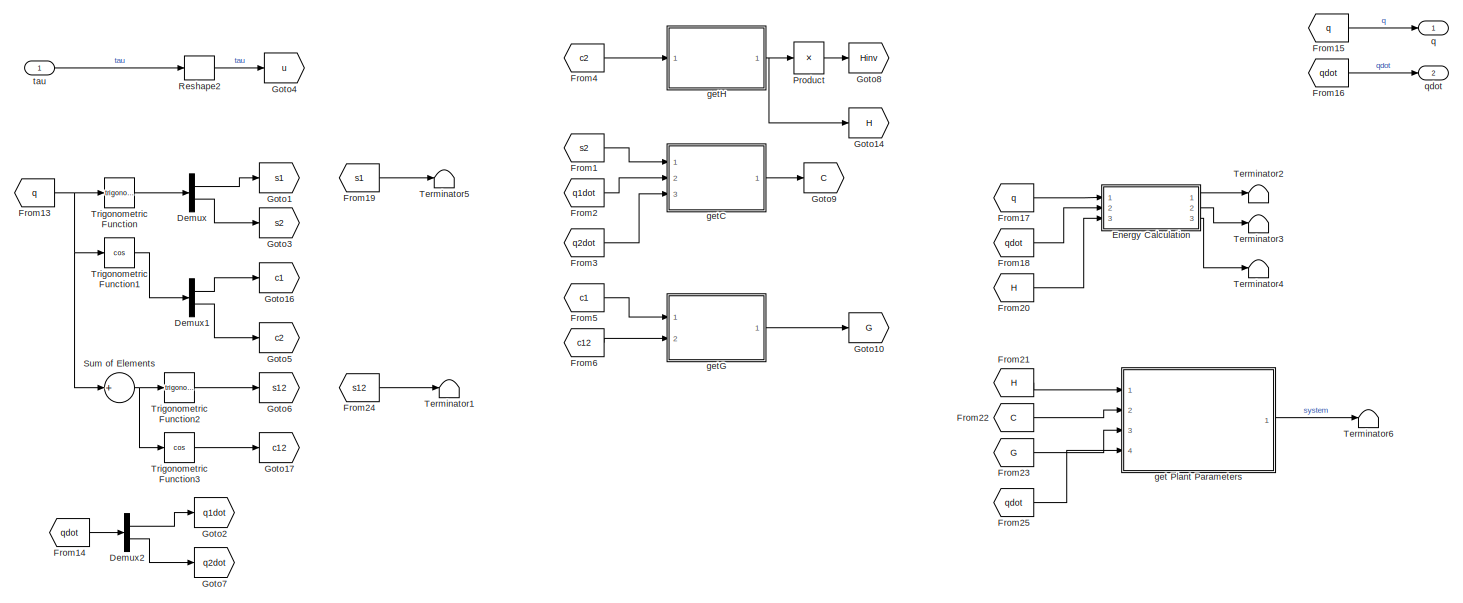
[diagram: Plant - part 1/2, full width, middle band]
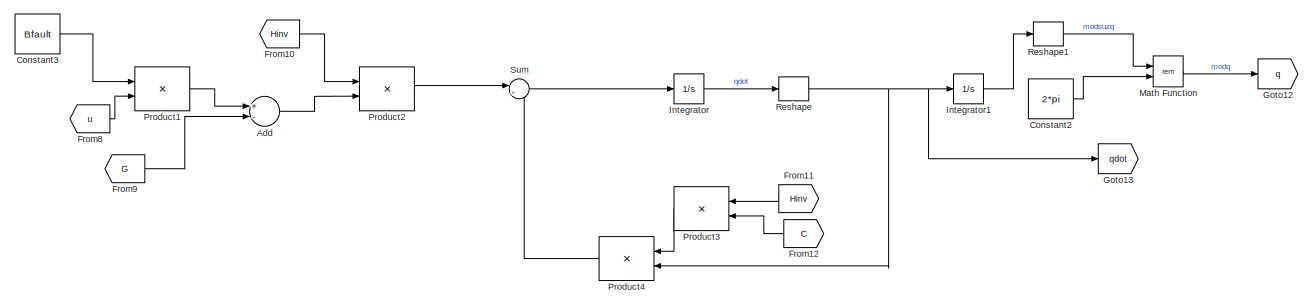
[diagram: Plant - part 2/2, full width, bottom band]
BLOCK [SubSystem] Plant
  Ports = [1, 2]
  RequestExecContextInheritance = off
  TreatAsAtomicUnit = on
BLOCK [Sum] Plant/Add
  InputSameDT = off
  Inputs = +-
  OutDataTypeStr = Inherit: Inherit via internal rule
  Ports = [2, 1]
  SaturateOnIntegerOverflow = off
BLOCK [Constant] Plant/Constant2
  Value = 2*pi
BLOCK [Constant] Plant/Constant3
  Value = Bfault
  VectorParams1D = off
BLOCK [Demux] Plant/Demux
  DisplayOption = bar
  Outputs = 2
  Ports = [1, 2]
BLOCK [Demux] Plant/Demux1
  DisplayOption = bar
  Outputs = 2
  Ports = [1, 2]
BLOCK [Demux] Plant/Demux2
  DisplayOption = bar
  Outputs = 2
  Ports = [1, 2]
BLOCK [SubSystem] Plant/Energy Calculation
  Ports = [3, 3]
  RequestExecContextInheritance = off
BLOCK [Constant] Plant/Energy Calculation/Constant
  Value = l1
  VectorParams1D = off
BLOCK [Constant] Plant/Energy Calculation/Constant1
  Value = l2
  VectorParams1D = off
BLOCK [Demux] Plant/Energy Calculation/Demux
  DisplayOption = bar
  Outputs = 2
  Ports = [1, 2]
BLOCK [Outport] Plant/Energy Calculation/E
  IconDisplay = Port number
  Port = 3
BLOCK [From] Plant/Energy Calculation/From1
  GotoTag = U
BLOCK [From] Plant/Energy Calculation/From13
  GotoTag = q
BLOCK [From] Plant/Energy Calculation/From17
  GotoTag = qdot
BLOCK [From] Plant/Energy Calculation/From18
  GotoTag = qdot
BLOCK [From] Plant/Energy Calculation/From19
  GotoTag = H
BLOCK [From] Plant/Energy Calculation/From2
  GotoTag = T
BLOCK [From] Plant/Energy Calculation/From20
  GotoTag = l1sintht1
BLOCK [From] Plant/Energy Calculation/From21
  GotoTag = T
BLOCK [From] Plant/Energy Calculation/From22
  GotoTag = U
BLOCK [From] Plant/Energy Calculation/From3
  GotoTag = s1
BLOCK [From] Plant/Energy Calculation/From5
  GotoTag = l1sintht1
BLOCK [From] Plant/Energy Calculation/From6
  GotoTag = s12
BLOCK [From] Plant/Energy Calculation/From8
  GotoTag = l2sintht12
BLOCK [Gain] Plant/Energy Calculation/Gain
  Gain = 1/2
  OutDataTypeStr = Inherit: Inherit via internal rule
  ParamDataTypeStr = Inherit: Inherit via internal rule
  SaturateOnIntegerOverflow = off
BLOCK [Gain] Plant/Energy Calculation/Gain1
  Gain = 0.5
  OutDataTypeStr = Inherit: Inherit via internal rule
  ParamDataTypeStr = Inherit: Inherit via internal rule
  SaturateOnIntegerOverflow = off
BLOCK [Gain] Plant/Energy Calculation/Gain5
  Gain = 0.5*m1*g
  OutDataTypeStr = Inherit: Inherit via internal rule
  ParamDataTypeStr = Inherit: Inherit via internal rule
  SaturateOnIntegerOverflow = off
BLOCK [Gain] Plant/Energy Calculation/Gain6
  Gain = m2*g
  OutDataTypeStr = Inherit: Inherit via internal rule
  ParamDataTypeStr = Inherit: Inherit via internal rule
  SaturateOnIntegerOverflow = off
BLOCK [Goto] Plant/Energy Calculation/Goto1
  GotoTag = s1
BLOCK [Goto] Plant/Energy Calculation/Goto15
  GotoTag = T
BLOCK [Goto] Plant/Energy Calculation/Goto18
  GotoTag = U
BLOCK [Goto] Plant/Energy Calculation/Goto2
  GotoTag = q
BLOCK [Goto] Plant/Energy Calculation/Goto4
  GotoTag = qdot
BLOCK [Goto] Plant/Energy Calculation/Goto5
  GotoTag = l1sintht1
BLOCK [Goto] Plant/Energy Calculation/Goto6
  GotoTag = s12
BLOCK [Goto] Plant/Energy Calculation/Goto7
  GotoTag = l2sintht12
BLOCK [Goto] Plant/Energy Calculation/Goto8
  GotoTag = H
BLOCK [Inport] Plant/Energy Calculation/H
  IconDisplay = Port number
  Port = 3
BLOCK [Math] Plant/Energy Calculation/Math Function
  Operator = transpose
  Ports = [1, 1]
BLOCK [Product] Plant/Energy Calculation/Product1
  InputSameDT = off
  OutDataTypeStr = Inherit: Inherit via internal rule
  Ports = [2, 1]
  SaturateOnIntegerOverflow = off
BLOCK [Product] Plant/Energy Calculation/Product3
  InputSameDT = off
  OutDataTypeStr = Inherit: Inherit via internal rule
  Ports = [2, 1]
  SaturateOnIntegerOverflow = off
BLOCK [Product] Plant/Energy Calculation/Product5
  InputSameDT = off
  Inputs = 3
  Multiplication = Matrix(*)
  OutDataTypeStr = Inherit: Inherit via internal rule
  Ports = [3, 1]
  SaturateOnIntegerOverflow = off
BLOCK [Sum] Plant/Energy Calculation/Sum of Elements
  InputSameDT = off
  Inputs = +
  OutDataTypeStr = Inherit: Inherit via internal rule
  Ports = [1, 1]
  SaturateOnIntegerOverflow = off
BLOCK [Sum] Plant/Energy Calculation/Sum1
  InputSameDT = off
  OutDataTypeStr = Inherit: Inherit via internal rule
  Ports = [2, 1]
  SaturateOnIntegerOverflow = off
BLOCK [Sum] Plant/Energy Calculation/Sum2
  InputSameDT = off
  OutDataTypeStr = Inherit: Inherit via internal rule
  Ports = [2, 1]
  SaturateOnIntegerOverflow = off
BLOCK [Sum] Plant/Energy Calculation/Sum3
  InputSameDT = off
  OutDataTypeStr = Inherit: Inherit via internal rule
  Ports = [2, 1]
  SaturateOnIntegerOverflow = off
BLOCK [Outport] Plant/Energy Calculation/T
  IconDisplay = Port number
  Port = 2
BLOCK [Terminator] Plant/Energy Calculation/Terminator4
BLOCK [Trigonometry] Plant/Energy Calculation/Trigonometric Function
  Ports = [1, 1]
BLOCK [Trigonometry] Plant/Energy Calculation/Trigonometric Function2
  Ports = [1, 1]
BLOCK [Outport] Plant/Energy Calculation/U
  IconDisplay = Port number
BLOCK [Inport] Plant/Energy Calculation/q
  IconDisplay = Port number
BLOCK [Inport] Plant/Energy Calculation/qdot
  IconDisplay = Port number
  Port = 2
BLOCK [From] Plant/From1
  GotoTag = s2
BLOCK [From] Plant/From10
  GotoTag = Hinv
BLOCK [From] Plant/From11
  GotoTag = Hinv
BLOCK [From] Plant/From12
  GotoTag = C
BLOCK [From] Plant/From13
  GotoTag = q
BLOCK [From] Plant/From14
  GotoTag = qdot
BLOCK [From] Plant/From15
  GotoTag = q
BLOCK [From] Plant/From16
  GotoTag = qdot
BLOCK [From] Plant/From17
  GotoTag = q
BLOCK [From] Plant/From18
  GotoTag = qdot
BLOCK [From] Plant/From19
  GotoTag = s1
BLOCK [From] Plant/From2
  GotoTag = q1dot
BLOCK [From] Plant/From20
  GotoTag = H
BLOCK [From] Plant/From21
  GotoTag = H
BLOCK [From] Plant/From22
  GotoTag = C
BLOCK [From] Plant/From23
  GotoTag = G
BLOCK [From] Plant/From24
  GotoTag = s12
BLOCK [From] Plant/From25
  GotoTag = qdot
BLOCK [From] Plant/From3
  GotoTag = q2dot
BLOCK [From] Plant/From4
  GotoTag = c2
BLOCK [From] Plant/From5
  GotoTag = c1
BLOCK [From] Plant/From6
  GotoTag = c12
BLOCK [From] Plant/From8
  GotoTag = u
BLOCK [From] Plant/From9
  GotoTag = G
BLOCK [Goto] Plant/Goto1
  GotoTag = s1
BLOCK [Goto] Plant/Goto10
  GotoTag = G
BLOCK [Goto] Plant/Goto12
  GotoTag = q
BLOCK [Goto] Plant/Goto13
  GotoTag = qdot
BLOCK [Goto] Plant/Goto14
  GotoTag = H
BLOCK [Goto] Plant/Goto16
  GotoTag = c1
BLOCK [Goto] Plant/Goto17
  GotoTag = c12
BLOCK [Goto] Plant/Goto2
  GotoTag = q1dot
BLOCK [Goto] Plant/Goto3
  GotoTag = s2
BLOCK [Goto] Plant/Goto4
  GotoTag = u
BLOCK [Goto] Plant/Goto5
  GotoTag = c2
BLOCK [Goto] Plant/Goto6
  GotoTag = s12
BLOCK [Goto] Plant/Goto7
  GotoTag = q2dot
BLOCK [Goto] Plant/Goto8
  GotoTag = Hinv
BLOCK [Goto] Plant/Goto9
  GotoTag = C
BLOCK [Integrator] Plant/Integrator
  InitialCondition = qdot0
  LowerSaturationLimit = -10000*pi/180
  Ports = [1, 1]
  UpperSaturationLimit = 10000*pi/180
BLOCK [Integrator] Plant/Integrator1
  InitialCondition = q0
  Ports = [1, 1]
BLOCK [Math] Plant/Math Function
  Operator = rem
  Ports = [2, 1]
BLOCK [Product] Plant/Product
  InputSameDT = off
  Inputs = /
  Multiplication = Matrix(*)
  OutDataTypeStr = Inherit: Inherit via internal rule
  Ports = [1, 1]
  SaturateOnIntegerOverflow = off
BLOCK [Product] Plant/Product1
  InputSameDT = off
  Multiplication = Matrix(*)
  OutDataTypeStr = Inherit: Inherit via internal rule
  Ports = [2, 1]
  SaturateOnIntegerOverflow = off
BLOCK [Product] Plant/Product2
  InputSameDT = off
  Multiplication = Matrix(*)
  OutDataTypeStr = Inherit: Inherit via internal rule
  Ports = [2, 1]
  SaturateOnIntegerOverflow = off
BLOCK [Product] Plant/Product3
  InputSameDT = off
  Multiplication = Matrix(*)
  OutDataTypeStr = Inherit: Inherit via internal rule
  Ports = [2, 1]
  SaturateOnIntegerOverflow = off
BLOCK [Product] Plant/Product4
  InputSameDT = off
  Multiplication = Matrix(*)
  OutDataTypeStr = Inherit: Inherit via internal rule
  Ports = [2, 1]
  SaturateOnIntegerOverflow = off
BLOCK [Reshape] Plant/Reshape
  OutputDimensionality = Column vector (2-D)
  Ports = [1, 1]
BLOCK [Reshape] Plant/Reshape1
  OutputDimensionality = Column vector (2-D)
  Ports = [1, 1]
BLOCK [Reshape] Plant/Reshape2
  OutputDimensionality = Column vector (2-D)
  Ports = [1, 1]
BLOCK [Sum] Plant/Sum
  IconShape = round
  InputSameDT = off
  Inputs = |+-
  OutDataTypeStr = Inherit: Inherit via internal rule
  Ports = [2, 1]
  SaturateOnIntegerOverflow = off
BLOCK [Sum] Plant/Sum of Elements
  InputSameDT = off
  Inputs = +
  OutDataTypeStr = Inherit: Inherit via internal rule
  Ports = [1, 1]
  SaturateOnIntegerOverflow = off
BLOCK [Terminator] Plant/Terminator1
BLOCK [Terminator] Plant/Terminator2
BLOCK [Terminator] Plant/Terminator3
BLOCK [Terminator] Plant/Terminator4
BLOCK [Terminator] Plant/Terminator5
BLOCK [Terminator] Plant/Terminator6
BLOCK [Trigonometry] Plant/Trigonometric Function
  Ports = [1, 1]
BLOCK [Trigonometry] Plant/Trigonometric Function1
  Operator = cos
  Ports = [1, 1]
BLOCK [Trigonometry] Plant/Trigonometric Function2
  Ports = [1, 1]
BLOCK [Trigonometry] Plant/Trigonometric Function3
  Operator = cos
  Ports = [1, 1]
BLOCK [SubSystem] Plant/get Plant Parameters
  Ports = [4, 1]
  RequestExecContextInheritance = off
BLOCK [Selector] Plant/get Plant Parameters/1
  IndexOptions = Index vector (dialog),Index vector (dialog)
  Indices = 1,1
  InputPortWidth = 3
  NumberOfDimensions = 2
  OutputSizes = 1,1
  Ports = [1, 1]
BLOCK [Selector] Plant/get Plant Parameters/11
  IndexOptions = Index vector (dialog),Index vector (dialog)
  Indices = 1,1
  InputPortWidth = 3
  NumberOfDimensions = 2
  OutputSizes = 1,1
  Ports = [1, 1]
BLOCK [Selector] Plant/get Plant Parameters/12
  IndexOptions = Index vector (dialog),Index vector (dialog)
  Indices = 1,2
  InputPortWidth = 3
  NumberOfDimensions = 2
  OutputSizes = 1,1
  Ports = [1, 1]
BLOCK [Selector] Plant/get Plant Parameters/2
  IndexOptions = Index vector (dialog),Index vector (dialog)
  Indices = 1,2
  InputPortWidth = 3
  NumberOfDimensions = 2
  OutputSizes = 1,1
  Ports = [1, 1]
BLOCK [Selector] Plant/get Plant Parameters/21
  IndexOptions = Index vector (dialog),Index vector (dialog)
  Indices = 2,1
  InputPortWidth = 3
  NumberOfDimensions = 2
  OutputSizes = 1,1
  Ports = [1, 1]
BLOCK [Selector] Plant/get Plant Parameters/22
  IndexOptions = Index vector (dialog),Index vector (dialog)
  Indices = 2,2
  InputPortWidth = 3
  NumberOfDimensions = 2
  OutputSizes = 1,1
  Ports = [1, 1]
BLOCK [Selector] Plant/get Plant Parameters/3
  IndexOptions = Index vector (dialog),Index vector (dialog)
  Indices = 2,1
  InputPortWidth = 3
  NumberOfDimensions = 2
  OutputSizes = 1,1
  Ports = [1, 1]
BLOCK [Selector] Plant/get Plant Parameters/4
  IndexOptions = Index vector (dialog),Index vector (dialog)
  Indices = 2,2
  InputPortWidth = 3
  NumberOfDimensions = 2
  OutputSizes = 1,1
  Ports = [1, 1]
BLOCK [Selector] Plant/get Plant Parameters/5
  IndexOptions = Index vector (dialog),Index vector (dialog)
  Indices = 1,1
  InputPortWidth = 3
  NumberOfDimensions = 2
  OutputSizes = 1,1
  Ports = [1, 1]
BLOCK [Selector] Plant/get Plant Parameters/6
  IndexOptions = Index vector (dialog),Index vector (dialog)
  Indices = 2,1
  InputPortWidth = 3
  NumberOfDimensions = 2
  OutputSizes = 1,1
  Ports = [1, 1]
BLOCK [Selector] Plant/get Plant Parameters/7
  IndexOptions = Index vector (dialog),Index vector (dialog)
  Indices = 1,1
  InputPortWidth = 3
  NumberOfDimensions = 2
  OutputSizes = 1,1
  Ports = [1, 1]
BLOCK [Selector] Plant/get Plant Parameters/8
  IndexOptions = Index vector (dialog),Index vector (dialog)
  Indices = 2,1
  InputPortWidth = 3
  NumberOfDimensions = 2
  OutputSizes = 1,1
  Ports = [1, 1]
BLOCK [BusCreator] Plant/get Plant Parameters/Bus Creator
  DisplayOption = bar
  Inputs = 15
  Ports = [15, 1]
BLOCK [Inport] Plant/get Plant Parameters/C
  IconDisplay = Port number
  Port = 2
BLOCK [From] Plant/get Plant Parameters/From21
  GotoTag = H
BLOCK [From] Plant/get Plant Parameters/From22
  GotoTag = C
BLOCK [From] Plant/get Plant Parameters/From23
  GotoTag = G
BLOCK [From] Plant/get Plant Parameters/From25
  GotoTag = C
BLOCK [From] Plant/get Plant Parameters/From26
  GotoTag = qdot
BLOCK [From] Plant/get Plant Parameters/From27
  GotoTag = G
BLOCK [From] Plant/get Plant Parameters/From28
  GotoTag = H
BLOCK [From] Plant/get Plant Parameters/From29
  GotoTag = C
BLOCK [From] Plant/get Plant Parameters/From30
  GotoTag = G
BLOCK [Inport] Plant/get Plant Parameters/G
  IconDisplay = Port number
  Port = 3
BLOCK [Goto] Plant/get Plant Parameters/Goto1
  GotoTag = C
BLOCK [Goto] Plant/get Plant Parameters/Goto15
  GotoTag = H
BLOCK [Goto] Plant/get Plant Parameters/Goto2
  GotoTag = G
BLOCK [Goto] Plant/get Plant Parameters/Goto3
  GotoTag = qdot
BLOCK [Inport] Plant/get Plant Parameters/H
  IconDisplay = Port number
BLOCK [Product] Plant/get Plant Parameters/Product5
  InputSameDT = off
  Multiplication = Matrix(*)
  OutDataTypeStr = Inherit: Inherit via internal rule
  Ports = [2, 1]
  SaturateOnIntegerOverflow = off
BLOCK [Sum] Plant/get Plant Parameters/Sum of Elements1
  InputSameDT = off
  OutDataTypeStr = Inherit: Inherit via internal rule
  Ports = [2, 1]
  SaturateOnIntegerOverflow = off
BLOCK [Outport] Plant/get Plant Parameters/busData
  IconDisplay = Port number
BLOCK [Inport] Plant/get Plant Parameters/qdot
  IconDisplay = Port number
  Port = 4
BLOCK [SubSystem] Plant/getC
  Ports = [3, 1]
  RequestExecContextInheritance = off
BLOCK [Outport] Plant/getC/C
  IconDisplay = Port number
BLOCK [SubSystem] Plant/getC/C calculation 1
  Ports = [3, 1]
  RequestExecContextInheritance = off
BLOCK [Outport] Plant/getC/C calculation 1/C
  IconDisplay = Port number
BLOCK [Constant] Plant/getC/C calculation 1/Constant3
  Value = 0
  VectorParams1D = off
BLOCK [From] Plant/getC/C calculation 1/From
  GotoTag = C11
BLOCK [From] Plant/getC/C calculation 1/From1
  GotoTag = C12
BLOCK [From] Plant/getC/C calculation 1/From10
  GotoTag = q2dot
BLOCK [From] Plant/getC/C calculation 1/From11
  GotoTag = N112
BLOCK [From] Plant/getC/C calculation 1/From12
  GotoTag = q1dot
BLOCK [From] Plant/getC/C calculation 1/From13
  GotoTag = N121
BLOCK [From] Plant/getC/C calculation 1/From14
  GotoTag = q2dot
BLOCK [From] Plant/getC/C calculation 1/From15
  GotoTag = N212
BLOCK [From] Plant/getC/C calculation 1/From16
  GotoTag = q1dot
BLOCK [From] Plant/getC/C calculation 1/From17
  GotoTag = N221
BLOCK [From] Plant/getC/C calculation 1/From18
  GotoTag = q1dot
BLOCK [From] Plant/getC/C calculation 1/From19
  GotoTag = N211
BLOCK [From] Plant/getC/C calculation 1/From2
  GotoTag = C21
BLOCK [From] Plant/getC/C calculation 1/From20
  GotoTag = q2dot
BLOCK [From] Plant/getC/C calculation 1/From21
  GotoTag = N222
BLOCK [From] Plant/getC/C calculation 1/From3
  GotoTag = C22
BLOCK [From] Plant/getC/C calculation 1/From4
  GotoTag = q1dot
BLOCK [From] Plant/getC/C calculation 1/From5
  GotoTag = N111
BLOCK [From] Plant/getC/C calculation 1/From6
  GotoTag = q2dot
BLOCK [From] Plant/getC/C calculation 1/From7
  GotoTag = N122
BLOCK [From] Plant/getC/C calculation 1/From9
  GotoTag = h
BLOCK [Gain] Plant/getC/C calculation 1/Gain2
  Gain = -1
  OutDataTypeStr = Inherit: Inherit via internal rule
  ParamDataTypeStr = Inherit: Inherit via internal rule
  SaturateOnIntegerOverflow = off
BLOCK [Gain] Plant/getC/C calculation 1/Gain3
  Gain = -1
  OutDataTypeStr = Inherit: Inherit via internal rule
  ParamDataTypeStr = Inherit: Inherit via internal rule
  SaturateOnIntegerOverflow = off
BLOCK [Gain] Plant/getC/C calculation 1/Gain5
  Gain = -1
  OutDataTypeStr = Inherit: Inherit via internal rule
  ParamDataTypeStr = Inherit: Inherit via internal rule
  SaturateOnIntegerOverflow = off
BLOCK [Goto] Plant/getC/C calculation 1/Goto1
  GotoTag = h
BLOCK [Goto] Plant/getC/C calculation 1/Goto10
  GotoTag = N121
BLOCK [Goto] Plant/getC/C calculation 1/Goto11
  GotoTag = N111
BLOCK [Goto] Plant/getC/C calculation 1/Goto12
  GotoTag = N122
BLOCK [Goto] Plant/getC/C calculation 1/Goto13
  GotoTag = N211
BLOCK [Goto] Plant/getC/C calculation 1/Goto14
  GotoTag = N212
BLOCK [Goto] Plant/getC/C calculation 1/Goto15
  GotoTag = N221
BLOCK [Goto] Plant/getC/C calculation 1/Goto16
  GotoTag = N222
BLOCK [Goto] Plant/getC/C calculation 1/Goto17
  GotoTag = C21
BLOCK [Goto] Plant/getC/C calculation 1/Goto18
  GotoTag = C11
BLOCK [Goto] Plant/getC/C calculation 1/Goto19
  GotoTag = C12
BLOCK [Goto] Plant/getC/C calculation 1/Goto2
  GotoTag = C22
BLOCK [Goto] Plant/getC/C calculation 1/Goto3
  GotoTag = N112
BLOCK [Goto] Plant/getC/C calculation 1/Goto6
  GotoTag = q1dot
BLOCK [Goto] Plant/getC/C calculation 1/Goto7
  GotoTag = q2dot
BLOCK [Concatenate] Plant/getC/C calculation 1/Matrix Concatenate
  ConcatenateDimension = 2
  Mode = Multidimensional array
  Ports = [2, 1]
BLOCK [Concatenate] Plant/getC/C calculation 1/Matrix Concatenate1
  ConcatenateDimension = 2
  Mode = Multidimensional array
  Ports = [2, 1]
BLOCK [Concatenate] Plant/getC/C calculation 1/Matrix Concatenate2
  Mode = Multidimensional array
  Ports = [2, 1]
BLOCK [Product] Plant/getC/C calculation 1/Product
  InputSameDT = off
  OutDataTypeStr = Inherit: Inherit via internal rule
  Ports = [2, 1]
  SaturateOnIntegerOverflow = off
BLOCK [Product] Plant/getC/C calculation 1/Product1
  InputSameDT = off
  OutDataTypeStr = Inherit: Inherit via internal rule
  Ports = [2, 1]
  SaturateOnIntegerOverflow = off
BLOCK [Product] Plant/getC/C calculation 1/Product2
  InputSameDT = off
  OutDataTypeStr = Inherit: Inherit via internal rule
  Ports = [2, 1]
  SaturateOnIntegerOverflow = off
BLOCK [Product] Plant/getC/C calculation 1/Product3
  InputSameDT = off
  OutDataTypeStr = Inherit: Inherit via internal rule
  Ports = [2, 1]
  SaturateOnIntegerOverflow = off
BLOCK [Product] Plant/getC/C calculation 1/Product4
  InputSameDT = off
  OutDataTypeStr = Inherit: Inherit via internal rule
  Ports = [2, 1]
  SaturateOnIntegerOverflow = off
BLOCK [Product] Plant/getC/C calculation 1/Product5
  InputSameDT = off
  OutDataTypeStr = Inherit: Inherit via internal rule
  Ports = [2, 1]
  SaturateOnIntegerOverflow = off
BLOCK [Product] Plant/getC/C calculation 1/Product6
  InputSameDT = off
  OutDataTypeStr = Inherit: Inherit via internal rule
  Ports = [2, 1]
  SaturateOnIntegerOverflow = off
BLOCK [Product] Plant/getC/C calculation 1/Product7
  InputSameDT = off
  OutDataTypeStr = Inherit: Inherit via internal rule
  Ports = [2, 1]
  SaturateOnIntegerOverflow = off
BLOCK [Sum] Plant/getC/C calculation 1/Sum
  InputSameDT = off
  OutDataTypeStr = Inherit: Inherit via internal rule
  Ports = [2, 1]
  SaturateOnIntegerOverflow = off
BLOCK [Sum] Plant/getC/C calculation 1/Sum1
  InputSameDT = off
  OutDataTypeStr = Inherit: Inherit via internal rule
  Ports = [2, 1]
  SaturateOnIntegerOverflow = off
BLOCK [Sum] Plant/getC/C calculation 1/Sum2
  InputSameDT = off
  OutDataTypeStr = Inherit: Inherit via internal rule
  Ports = [2, 1]
  SaturateOnIntegerOverflow = off
BLOCK [Sum] Plant/getC/C calculation 1/Sum3
  InputSameDT = off
  OutDataTypeStr = Inherit: Inherit via internal rule
  Ports = [2, 1]
  SaturateOnIntegerOverflow = off
BLOCK [Inport] Plant/getC/C calculation 1/h
  IconDisplay = Port number
  Port = 3
BLOCK [Inport] Plant/getC/C calculation 1/q1dot
  IconDisplay = Port number
BLOCK [Inport] Plant/getC/C calculation 1/q2dot
  IconDisplay = Port number
  Port = 2
BLOCK [SubSystem] Plant/getC/C calculation 2
  Ports = [3, 1]
  RequestExecContextInheritance = off
BLOCK [Outport] Plant/getC/C calculation 2/C
  IconDisplay = Port number
BLOCK [Constant] Plant/getC/C calculation 2/Constant1
  Value = 0
  VectorParams1D = off
BLOCK [From] Plant/getC/C calculation 2/From
  GotoTag = C11
BLOCK [From] Plant/getC/C calculation 2/From1
  GotoTag = C12
BLOCK [From] Plant/getC/C calculation 2/From2
  GotoTag = C21
BLOCK [From] Plant/getC/C calculation 2/From22
  GotoTag = h
BLOCK [From] Plant/getC/C calculation 2/From23
  GotoTag = q1dot
BLOCK [From] Plant/getC/C calculation 2/From24
  GotoTag = h
BLOCK [From] Plant/getC/C calculation 2/From25
  GotoTag = q2dot
BLOCK [From] Plant/getC/C calculation 2/From26
  GotoTag = h
BLOCK [From] Plant/getC/C calculation 2/From29
  GotoTag = q2dot
BLOCK [From] Plant/getC/C calculation 2/From3
  GotoTag = C22
BLOCK [Gain] Plant/getC/C calculation 2/Gain6
  Gain = -2
  OutDataTypeStr = Inherit: Inherit via internal rule
  ParamDataTypeStr = Inherit: Inherit via internal rule
  SaturateOnIntegerOverflow = off
BLOCK [Gain] Plant/getC/C calculation 2/Gain7
  Gain = -1
  OutDataTypeStr = Inherit: Inherit via internal rule
  ParamDataTypeStr = Inherit: Inherit via internal rule
  SaturateOnIntegerOverflow = off
BLOCK [Goto] Plant/getC/C calculation 2/Goto1
  GotoTag = h
BLOCK [Goto] Plant/getC/C calculation 2/Goto17
  GotoTag = C21
BLOCK [Goto] Plant/getC/C calculation 2/Goto18
  GotoTag = C11
BLOCK [Goto] Plant/getC/C calculation 2/Goto19
  GotoTag = C12
BLOCK [Goto] Plant/getC/C calculation 2/Goto2
  GotoTag = C22
BLOCK [Goto] Plant/getC/C calculation 2/Goto6
  GotoTag = q1dot
BLOCK [Goto] Plant/getC/C calculation 2/Goto7
  GotoTag = q2dot
BLOCK [Concatenate] Plant/getC/C calculation 2/Matrix Concatenate
  ConcatenateDimension = 2
  Mode = Multidimensional array
  Ports = [2, 1]
BLOCK [Concatenate] Plant/getC/C calculation 2/Matrix Concatenate1
  ConcatenateDimension = 2
  Mode = Multidimensional array
  Ports = [2, 1]
BLOCK [Concatenate] Plant/getC/C calculation 2/Matrix Concatenate2
  Mode = Multidimensional array
  Ports = [2, 1]
BLOCK [Product] Plant/getC/C calculation 2/Product10
  InputSameDT = off
  OutDataTypeStr = Inherit: Inherit via internal rule
  Ports = [2, 1]
  SaturateOnIntegerOverflow = off
BLOCK [Product] Plant/getC/C calculation 2/Product8
  InputSameDT = off
  OutDataTypeStr = Inherit: Inherit via internal rule
  Ports = [2, 1]
  SaturateOnIntegerOverflow = off
BLOCK [Product] Plant/getC/C calculation 2/Product9
  InputSameDT = off
  OutDataTypeStr = Inherit: Inherit via internal rule
  Ports = [2, 1]
  SaturateOnIntegerOverflow = off
BLOCK [Inport] Plant/getC/C calculation 2/h
  IconDisplay = Port number
  Port = 3
BLOCK [Inport] Plant/getC/C calculation 2/q1dot
  IconDisplay = Port number
BLOCK [Inport] Plant/getC/C calculation 2/q2dot
  IconDisplay = Port number
  Port = 2
BLOCK [From] Plant/getC/From1
  GotoTag = C
BLOCK [From] Plant/getC/From10
  GotoTag = h
BLOCK [From] Plant/getC/From4
  GotoTag = q1dot
BLOCK [From] Plant/getC/From5
  GotoTag = q2dot
BLOCK [From] Plant/getC/From6
  GotoTag = h
BLOCK [From] Plant/getC/From7
  GotoTag = q1dot
BLOCK [From] Plant/getC/From8
  GotoTag = s2
BLOCK [From] Plant/getC/From9
  GotoTag = q2dot
BLOCK [Gain] Plant/getC/Gain2
  Gain = m2*l1*lc2
  OutDataTypeStr = Inherit: Inherit via internal rule
  ParamDataTypeStr = Inherit: Inherit via internal rule
  SaturateOnIntegerOverflow = off
BLOCK [Goto] Plant/getC/Goto1
  GotoTag = h
BLOCK [Goto] Plant/getC/Goto2
  GotoTag = C
BLOCK [Goto] Plant/getC/Goto5
  GotoTag = s2
BLOCK [Goto] Plant/getC/Goto6
  GotoTag = q1dot
BLOCK [Goto] Plant/getC/Goto7
  GotoTag = q2dot
BLOCK [Terminator] Plant/getC/Terminator
BLOCK [Inport] Plant/getC/q1dot
  IconDisplay = Port number
  Port = 2
BLOCK [Inport] Plant/getC/q2dot
  IconDisplay = Port number
  Port = 3
BLOCK [Inport] Plant/getC/s2
  IconDisplay = Port number
BLOCK [SubSystem] Plant/getG
  Ports = [2, 1]
  RequestExecContextInheritance = off
BLOCK [Sum] Plant/getG/Add
  InputSameDT = off
  OutDataTypeStr = Inherit: Inherit via internal rule
  Ports = [2, 1]
  SaturateOnIntegerOverflow = off
BLOCK [From] Plant/getG/From
  GotoTag = G11
BLOCK [From] Plant/getG/From1
  GotoTag = G21
BLOCK [From] Plant/getG/From2
  GotoTag = c12
BLOCK [From] Plant/getG/From4
  GotoTag = c12
BLOCK [From] Plant/getG/From5
  GotoTag = c1
BLOCK [Outport] Plant/getG/G
  IconDisplay = Port number
BLOCK [Gain] Plant/getG/Gain
  Gain = (m1*lc1+m2*l1)*g
  OutDataTypeStr = Inherit: Inherit via internal rule
  ParamDataTypeStr = Inherit: Inherit via internal rule
  SaturateOnIntegerOverflow = off
BLOCK [Gain] Plant/getG/Gain1
  Gain = m2*g*lc2
  OutDataTypeStr = Inherit: Inherit via internal rule
  ParamDataTypeStr = Inherit: Inherit via internal rule
  SaturateOnIntegerOverflow = off
BLOCK [Gain] Plant/getG/Gain2
  OutDataTypeStr = Inherit: Inherit via internal rule
  ParamDataTypeStr = Inherit: Inherit via internal rule
  SaturateOnIntegerOverflow = off
BLOCK [Gain] Plant/getG/Gain4
  Gain = lc2*m2*g
  OutDataTypeStr = Inherit: Inherit via internal rule
  ParamDataTypeStr = Inherit: Inherit via internal rule
  SaturateOnIntegerOverflow = off
BLOCK [Goto] Plant/getG/Goto2
  GotoTag = G11
BLOCK [Goto] Plant/getG/Goto5
  GotoTag = c1
BLOCK [Goto] Plant/getG/Goto6
  GotoTag = c12
BLOCK [Goto] Plant/getG/Goto9
  GotoTag = G21
BLOCK [Concatenate] Plant/getG/Matrix Concatenate2
  Mode = Multidimensional array
  Ports = [2, 1]
BLOCK [Inport] Plant/getG/c1
  IconDisplay = Port number
BLOCK [Inport] Plant/getG/c12
  IconDisplay = Port number
  Port = 2
BLOCK [SubSystem] Plant/getH
  Ports = [1, 1]
  RequestExecContextInheritance = off
BLOCK [Constant] Plant/getH/Constant1
  Value = I1 + I2 + m1*lc1^2 + m2*(l1^2+lc2^2)
  VectorParams1D = off
BLOCK [Constant] Plant/getH/Constant2
  Value = I2+m2*lc2^2
  VectorParams1D = off
BLOCK [Constant] Plant/getH/Constant3
  Value = I2+m2*lc2^2
  VectorParams1D = off
BLOCK [From] Plant/getH/From
  GotoTag = H11
BLOCK [From] Plant/getH/From1
  GotoTag = H12
BLOCK [From] Plant/getH/From2
  GotoTag = H21
BLOCK [From] Plant/getH/From3
  GotoTag = H22
BLOCK [From] Plant/getH/From4
  GotoTag = c2
BLOCK [From] Plant/getH/From5
  GotoTag = c2
BLOCK [Gain] Plant/getH/Gain
  Gain = m2*2*l1*lc2
  OutDataTypeStr = Inherit: Inherit via internal rule
  ParamDataTypeStr = Inherit: Inherit via internal rule
  SaturateOnIntegerOverflow = off
BLOCK [Gain] Plant/getH/Gain1
  Gain = m2*l1*lc2
  OutDataTypeStr = Inherit: Inherit via internal rule
  ParamDataTypeStr = Inherit: Inherit via internal rule
  SaturateOnIntegerOverflow = off
BLOCK [Goto] Plant/getH/Goto1
  GotoTag = H12
BLOCK [Goto] Plant/getH/Goto2
  GotoTag = H11
BLOCK [Goto] Plant/getH/Goto3
  GotoTag = H21
BLOCK [Goto] Plant/getH/Goto4
  GotoTag = H22
BLOCK [Goto] Plant/getH/Goto5
  GotoTag = c2
BLOCK [Outport] Plant/getH/H
  IconDisplay = Port number
BLOCK [Concatenate] Plant/getH/Matrix Concatenate
  ConcatenateDimension = 2
  Mode = Multidimensional array
  Ports = [2, 1]
BLOCK [Concatenate] Plant/getH/Matrix Concatenate1
  ConcatenateDimension = 2
  Mode = Multidimensional array
  Ports = [2, 1]
BLOCK [Concatenate] Plant/getH/Matrix Concatenate2
  Mode = Multidimensional array
  Ports = [2, 1]
BLOCK [Sum] Plant/getH/Sum
  InputSameDT = off
  OutDataTypeStr = Inherit: Inherit via internal rule
  Ports = [2, 1]
  SaturateOnIntegerOverflow = off
BLOCK [Sum] Plant/getH/Sum1
  InputSameDT = off
  OutDataTypeStr = Inherit: Inherit via internal rule
  Ports = [2, 1]
  SaturateOnIntegerOverflow = off
BLOCK [Inport] Plant/getH/c2
  IconDisplay = Port number
BLOCK [Outport] Plant/q
  IconDisplay = Port number
BLOCK [Outport] Plant/qdot
  IconDisplay = Port number
  Port = 2
BLOCK [Inport] Plant/tau
  IconDisplay = Port number
BLOCK [Terminator] Terminator
BLOCK [ZeroOrderHold] Zero-Order Hold
  SampleTime = dtFC
BLOCK [ZeroOrderHold] Zero-Order Hold1
  SampleTime = dtFC
BLOCK [ZeroOrderHold] Zero-Order Hold2
  SampleTime = dtFC
BLOCK [SubSystem] two link visualization
  Ports = [2, 0, 1]
  RequestExecContextInheritance = off
BLOCK [Sum] two link visualization/Add
  InputSameDT = off
  OutDataTypeStr = Inherit: Inherit via internal rule
  Ports = [2, 1]
  SaturateOnIntegerOverflow = off
BLOCK [Sum] two link visualization/Add1
  InputSameDT = off
  OutDataTypeStr = Inherit: Inherit via internal rule
  Ports = [2, 1]
  SaturateOnIntegerOverflow = off
BLOCK [Sum] two link visualization/Add2
  InputSameDT = off
  OutDataTypeStr = Inherit: Inherit via internal rule
  Ports = [2, 1]
  SaturateOnIntegerOverflow = off
BLOCK [Sum] two link visualization/Add3
  InputSameDT = off
  OutDataTypeStr = Inherit: Inherit via internal rule
  Ports = [2, 1]
  SaturateOnIntegerOverflow = off
BLOCK [Sum] two link visualization/Add4
  InputSameDT = off
  OutDataTypeStr = Inherit: Inherit via internal rule
  Ports = [2, 1]
  SaturateOnIntegerOverflow = off
BLOCK [Sum] two link visualization/Add5
  InputSameDT = off
  OutDataTypeStr = Inherit: Inherit via internal rule
  Ports = [2, 1]
  SaturateOnIntegerOverflow = off
BLOCK [Constant] two link visualization/Constant1
  Value = 0.5
BLOCK [Constant] two link visualization/Constant2
  Value = 0
BLOCK [Constant] two link visualization/Constant3
  Value = 0
BLOCK [Constant] two link visualization/Constant4
  Value = 0.5
BLOCK [Constant] two link visualization/Constant5
  Value = l1
  VectorParams1D = off
BLOCK [Constant] two link visualization/Constant6
  Value = l2
  VectorParams1D = off
BLOCK [EnablePort] two link visualization/Enable
  Ports = [0, 1]
  PropagateVarSize = During execution
  ShowOutputPort = on
BLOCK [From] two link visualization/From
  GotoTag = tht1
BLOCK [From] two link visualization/From1
  GotoTag = l1
BLOCK [From] two link visualization/From10
  GotoTag = l1costht1
BLOCK [From] two link visualization/From11
  GotoTag = l2costht2
BLOCK [From] two link visualization/From12
  GotoTag = l1
BLOCK [From] two link visualization/From13
  GotoTag = l2
BLOCK [From] two link visualization/From14
  GotoTag = enable
BLOCK [From] two link visualization/From2
  GotoTag = tht1
BLOCK [From] two link visualization/From3
  GotoTag = l1
BLOCK [From] two link visualization/From4
  GotoTag = tht2
BLOCK [From] two link visualization/From5
  GotoTag = l2
BLOCK [From] two link visualization/From6
  GotoTag = tht2
BLOCK [From] two link visualization/From7
  GotoTag = l2
BLOCK [From] two link visualization/From8
  GotoTag = l1sintht1
BLOCK [From] two link visualization/From9
  GotoTag = l2sintht2
BLOCK [Gain] two link visualization/Gain
  OutDataTypeStr = Inherit: Inherit via internal rule
  ParamDataTypeStr = Inherit: Inherit via internal rule
  SaturateOnIntegerOverflow = off
BLOCK [Goto] two link visualization/Goto
  GotoTag = tht1
BLOCK [Goto] two link visualization/Goto1
  GotoTag = tht2
BLOCK [Goto] two link visualization/Goto2
  GotoTag = l1
BLOCK [Goto] two link visualization/Goto3
  GotoTag = l2
BLOCK [Goto] two link visualization/Goto4
  GotoTag = l1costht1
BLOCK [Goto] two link visualization/Goto5
  GotoTag = l1sintht1
BLOCK [Goto] two link visualization/Goto6
  GotoTag = l2costht2
BLOCK [Goto] two link visualization/Goto7
  GotoTag = l2sintht2
BLOCK [Goto] two link visualization/Goto8
  GotoTag = enable
BLOCK [MATLABFcn] two link visualization/MATLAB Fcn
  MATLABFcn = twolinkplot(u)
  Ports = [1, 1]
BLOCK [Mux] two link visualization/Mux
  DisplayOption = bar
  Inputs = 3
  Ports = [3, 1]
BLOCK [Mux] two link visualization/Mux1
  DisplayOption = bar
  Inputs = 3
  Ports = [3, 1]
BLOCK [Mux] two link visualization/Mux2
  DisplayOption = bar
  Inputs = 5
  Ports = [5, 1]
BLOCK [Mux] two link visualization/Mux3
  DisplayOption = bar
  Inputs = 2
  Ports = [2, 1]
BLOCK [Product] two link visualization/Product
  InputSameDT = off
  OutDataTypeStr = Inherit: Inherit via internal rule
  Ports = [2, 1]
  SaturateOnIntegerOverflow = off
BLOCK [Product] two link visualization/Product1
  InputSameDT = off
  OutDataTypeStr = Inherit: Inherit via internal rule
  Ports = [2, 1]
  SaturateOnIntegerOverflow = off
BLOCK [Product] two link visualization/Product2
  InputSameDT = off
  OutDataTypeStr = Inherit: Inherit via internal rule
  Ports = [2, 1]
  SaturateOnIntegerOverflow = off
BLOCK [Product] two link visualization/Product3
  InputSameDT = off
  OutDataTypeStr = Inherit: Inherit via internal rule
  Ports = [2, 1]
  SaturateOnIntegerOverflow = off
BLOCK [Terminator] two link visualization/Terminator
BLOCK [Trigonometry] two link visualization/Trigonometric Function
  Operator = cos
  Ports = [1, 1]
BLOCK [Trigonometry] two link visualization/Trigonometric Function1
  Ports = [1, 1]
BLOCK [Trigonometry] two link visualization/Trigonometric Function2
  Operator = cos
  Ports = [1, 1]
BLOCK [Trigonometry] two link visualization/Trigonometric Function3
  Ports = [1, 1]
BLOCK [Inport] two link visualization/tht1 [|rad]
  IconDisplay = Port number
BLOCK [Inport] two link visualization/tht2 [rad]
  IconDisplay = Port number
  Port = 2
BLOCK [SubSystem] visualization data out
  Ports = [1, 0, 1]
  RequestExecContextInheritance = off
  TreatAsAtomicUnit = on
BLOCK [EnablePort] visualization data out/Enable
  Ports = []
  PropagateVarSize = During execution
BLOCK [ToWorkspace] visualization data out/To Workspace
  MaxDataPoints = inf
  Ports = [1]
  SampleTime = -1
  SaveFormat = Structure With Time
  VariableName = thetaForVisualization
BLOCK [Inport] visualization data out/tht
  IconDisplay = Port number
LINE Bus Creator:1 -> Terminator:1
LINE Command/From Workspace1:1 -> Command/Reshape1:1
LINE Command/From Workspace:1 -> Command/Reshape:1
LINE Command/Reshape1:1 -> Command/qcdot:1
LINE Command/Reshape:1 -> Command/qc:1
NET Command:1 -> Controller:1, Goto7:1
NET Command:2 -> Controller:2, Goto1:1
LINE Constant2:1 -> two link visualization:enable
LINE Constant3:1 -> visualization data out:enable
LINE Controller/ FTC Controller/1:1 -> Controller/ FTC Controller/Math Function:1
LINE Controller/ FTC Controller/2:1 -> Controller/ FTC Controller/Add1:2
LINE Controller/ FTC Controller/3:1 -> Controller/ FTC Controller/Mux2:2
LINE Controller/ FTC Controller/4:1 -> Controller/ FTC Controller/Mux3:1
LINE Controller/ FTC Controller/Add1:1 -> Controller/ FTC Controller/Mux1:2
LINE Controller/ FTC Controller/Add2:1 -> Controller/ FTC Controller/Gain3:1
LINE Controller/ FTC Controller/Add:1 -> Controller/ FTC Controller/Gain4:1
LINE Controller/ FTC Controller/Comp:1 -> Controller/ FTC Controller/Goto6:1
LINE Controller/ FTC Controller/Compare To Constant:1 -> Controller/ FTC Controller/Product:1
LINE Controller/ FTC Controller/Constant2:1 -> Controller/ FTC Controller/Math Function:2
LINE Controller/ FTC Controller/Demux1:1 -> Controller/ FTC Controller/Mux2:1
LINE Controller/ FTC Controller/Demux1:2 -> Controller/ FTC Controller/Terminator3:1
LINE Controller/ FTC Controller/Demux3:1 -> Controller/ FTC Controller/Mux1:1
LINE Controller/ FTC Controller/Demux3:2 -> Controller/ FTC Controller/Terminator1:1
LINE Controller/ FTC Controller/Demux:1 -> Controller/ FTC Controller/Goto3:1
LINE Controller/ FTC Controller/Demux:2 -> Controller/ FTC Controller/Goto4:1
LINE Controller/ FTC Controller/Digital Clock:1 -> Controller/ FTC Controller/Compare To Constant:1
LINE Controller/ FTC Controller/Discrete-Time Integrator:1 -> Controller/ FTC Controller/Reshape2:1
LINE Controller/ FTC Controller/From10:1 -> Controller/ FTC Controller/Gain8:1
LINE Controller/ FTC Controller/From11:1 -> Controller/ FTC Controller/4:1
LINE Controller/ FTC Controller/From12:1 -> Controller/ FTC Controller/Add:3
LINE Controller/ FTC Controller/From13:1 -> Controller/ FTC Controller/Add1:1
LINE Controller/ FTC Controller/From14:1 -> Controller/ FTC Controller/2:1
LINE Controller/ FTC Controller/From15:1 -> Controller/ FTC Controller/Product:2
LINE Controller/ FTC Controller/From1:1 -> Controller/ FTC Controller/1:1
LINE Controller/ FTC Controller/From2:1 -> Controller/ FTC Controller/Reference model:1
LINE Controller/ FTC Controller/From3:1 -> Controller/ FTC Controller/Reference model:2
LINE Controller/ FTC Controller/From4:1 -> Controller/ FTC Controller/Reference model:3
LINE Controller/ FTC Controller/From5:1 -> Controller/ FTC Controller/Add:2
LINE Controller/ FTC Controller/From6:1 -> Controller/ FTC Controller/Demux3:1
LINE Controller/ FTC Controller/From7:1 -> Controller/ FTC Controller/3:1
LINE Controller/ FTC Controller/From8:1 -> Controller/ FTC Controller/Add:1
LINE Controller/ FTC Controller/From9:1 -> Controller/ FTC Controller/Demux1:1
LINE Controller/ FTC Controller/Gain3:1 -> Controller/ FTC Controller/Discrete-Time Integrator:1
LINE Controller/ FTC Controller/Gain4:1 -> Controller/ FTC Controller/Add2:1
LINE Controller/ FTC Controller/Gain8:1 -> Controller/ FTC Controller/Add2:2
LINE Controller/ FTC Controller/Math Function:1 -> Controller/ FTC Controller/Mux3:2
LINE Controller/ FTC Controller/Memory3:1 -> Controller/ FTC Controller/Goto5:1
LINE Controller/ FTC Controller/Mux1:1 -> Controller/ FTC Controller/Reshape1:1
LINE Controller/ FTC Controller/Mux2:1 -> Controller/ FTC Controller/Reshape3:1
LINE Controller/ FTC Controller/Mux3:1 -> Controller/ FTC Controller/Reshape4:1
LINE Controller/ FTC Controller/Product:1 -> Controller/ FTC Controller/Goto7:1
LINE Controller/ FTC Controller/Reference model/Add:1 -> Controller/ FTC Controller/Reference model/Goto5:1
LINE Controller/ FTC Controller/Reference model/Constant1:1 -> Controller/ FTC Controller/Reference model/Product1:1
LINE Controller/ FTC Controller/Reference model/Constant:1 -> Controller/ FTC Controller/Reference model/Product3:1
LINE Controller/ FTC Controller/Reference model/Demux2:1 -> Controller/ FTC Controller/Reference model/Goto13:1
LINE Controller/ FTC Controller/Reference model/Demux2:2 -> Controller/ FTC Controller/Reference model/Goto1:1
LINE Controller/ FTC Controller/Reference model/Demux3:1 -> Controller/ FTC Controller/Reference model/Goto17:1
LINE Controller/ FTC Controller/Reference model/Demux3:2 -> Controller/ FTC Controller/Reference model/Goto2:1
LINE Controller/ FTC Controller/Reference model/From1:1 -> Controller/ FTC Controller/Reference model/Mux:2
LINE Controller/ FTC Controller/Reference model/From2:1 -> Controller/ FTC Controller/Reference model/f1r:1
LINE Controller/ FTC Controller/Reference model/From3:1 -> Controller/ FTC Controller/Reference model/Mux:1
LINE Controller/ FTC Controller/Reference model/From4:1 -> Controller/ FTC Controller/Reference model/Product1:2
LINE Controller/ FTC Controller/Reference model/From5:1 -> Controller/ FTC Controller/Reference model/Terminator4:1
LINE Controller/ FTC Controller/Reference model/From6:1 -> Controller/ FTC Controller/Reference model/Terminator5:1
LINE Controller/ FTC Controller/Reference model/Mux:1 -> Controller/ FTC Controller/Reference model/Reshape:1
LINE Controller/ FTC Controller/Reference model/Product1:1 -> Controller/ FTC Controller/Reference model/Add:2
LINE Controller/ FTC Controller/Reference model/Product3:1 -> Controller/ FTC Controller/Reference model/Add:1
LINE Controller/ FTC Controller/Reference model/Reshape:1 -> Controller/ FTC Controller/Reference model/Product3:2
LINE Controller/ FTC Controller/Reference model/q:1 -> Controller/ FTC Controller/Reference model/Demux2:1
LINE Controller/ FTC Controller/Reference model/qdot:1 -> Controller/ FTC Controller/Reference model/Demux3:1
LINE Controller/ FTC Controller/Reference model/r1:1 -> Controller/ FTC Controller/Reference model/Goto3:1
LINE Controller/ FTC Controller/Reference model:1 -> Controller/ FTC Controller/Goto1:1
LINE Controller/ FTC Controller/Reshape1:1 -> Controller/ FTC Controller/System model:1
LINE Controller/ FTC Controller/Reshape2:1 -> Controller/ FTC Controller/Memory3:1
LINE Controller/ FTC Controller/Reshape3:1 -> Controller/ FTC Controller/System model:2
LINE Controller/ FTC Controller/Reshape4:1 -> Controller/ FTC Controller/r:1
LINE Controller/ FTC Controller/System model/11:1 -> Controller/ FTC Controller/System model/Goto6:1
LINE Controller/ FTC Controller/System model/12:1 -> Controller/ FTC Controller/System model/Goto7:1
LINE Controller/ FTC Controller/System model/1:1 -> Controller/ FTC Controller/System model/Goto8:1
LINE Controller/ FTC Controller/System model/2:1 -> Controller/ FTC Controller/System model/Product3:1
LINE Controller/ FTC Controller/System model/Add2:1 -> Controller/ FTC Controller/System model/Goto19:1
LINE Controller/ FTC Controller/System model/Constant1:1 -> Controller/ FTC Controller/System model/Mux2:1
LINE Controller/ FTC Controller/System model/Constant2:1 -> Controller/ FTC Controller/System model/Mux3:1
LINE Controller/ FTC Controller/System model/Constant3:1 -> Controller/ FTC Controller/System model/Vector Concatenate:1
LINE Controller/ FTC Controller/System model/Constant4:1 -> Controller/ FTC Controller/System model/Mux4:1
LINE Controller/ FTC Controller/System model/Demux2:1 -> Controller/ FTC Controller/System model/Goto13:1
LINE Controller/ FTC Controller/System model/Demux2:2 -> Controller/ FTC Controller/System model/Terminator:1
LINE Controller/ FTC Controller/System model/Demux3:1 -> Controller/ FTC Controller/System model/Goto17:1
LINE Controller/ FTC Controller/System model/Demux3:2 -> Controller/ FTC Controller/System model/Goto2:1
LINE Controller/ FTC Controller/System model/From10:1 -> Controller/ FTC Controller/System model/Product5:1
LINE Controller/ FTC Controller/System model/From11:1 -> Controller/ FTC Controller/System model/Product5:2
LINE Controller/ FTC Controller/System model/From12:1 -> Controller/ FTC Controller/System model/Product6:2
LINE Controller/ FTC Controller/System model/From17:1 -> Controller/ FTC Controller/System model/Modelled Plant:2
LINE Controller/ FTC Controller/System model/From18:1 -> Controller/ FTC Controller/System model/Modelled Plant:1
LINE Controller/ FTC Controller/System model/From19:1 -> Controller/ FTC Controller/System model/Mux1:2
LINE Controller/ FTC Controller/System model/From1:1 -> Controller/ FTC Controller/System model/1:1
LINE Controller/ FTC Controller/System model/From20:1 -> Controller/ FTC Controller/System model/Mux1:1
NET Controller/ FTC Controller/System model/From21:1 -> Controller/ FTC Controller/System model/11:1, Controller/ FTC Controller/System model/12:1
LINE Controller/ FTC Controller/System model/From2:1 -> Controller/ FTC Controller/System model/f1:1
LINE Controller/ FTC Controller/System model/From3:1 -> Controller/ FTC Controller/System model/Product2:1
LINE Controller/ FTC Controller/System model/From4:1 -> Controller/ FTC Controller/System model/2:1
LINE Controller/ FTC Controller/System model/From5:1 -> Controller/ FTC Controller/System model/Product1:1
LINE Controller/ FTC Controller/System model/From6:1 -> Controller/ FTC Controller/System model/Product1:2
LINE Controller/ FTC Controller/System model/From7:1 -> Controller/ FTC Controller/System model/Product2:2
LINE Controller/ FTC Controller/System model/From8:1 -> Controller/ FTC Controller/System model/Product4:1
LINE Controller/ FTC Controller/System model/From9:1 -> Controller/ FTC Controller/System model/Product4:2
LINE Controller/ FTC Controller/System model/Gain1:1 -> Controller/ FTC Controller/System model/Mux3:2
LINE Controller/ FTC Controller/System model/Gain2:1 -> Controller/ FTC Controller/System model/Mux4:2
LINE Controller/ FTC Controller/System model/Gain:1 -> Controller/ FTC Controller/System model/Mux2:2
LINE Controller/ FTC Controller/System model/Modelled Plant/Demux1:1 -> Controller/ FTC Controller/System model/Modelled Plant/Goto16:1
LINE Controller/ FTC Controller/System model/Modelled Plant/Demux1:2 -> Controller/ FTC Controller/System model/Modelled Plant/Goto5:1
LINE Controller/ FTC Controller/System model/Modelled Plant/Demux2:1 -> Controller/ FTC Controller/System model/Modelled Plant/Goto2:1
LINE Controller/ FTC Controller/System model/Modelled Plant/Demux2:2 -> Controller/ FTC Controller/System model/Modelled Plant/Goto7:1
LINE Controller/ FTC Controller/System model/Modelled Plant/Demux:1 -> Controller/ FTC Controller/System model/Modelled Plant/Terminator4:1
LINE Controller/ FTC Controller/System model/Modelled Plant/Demux:2 -> Controller/ FTC Controller/System model/Modelled Plant/Goto3:1
LINE Controller/ FTC Controller/System model/Modelled Plant/From17:1 -> Controller/ FTC Controller/System model/Modelled Plant/C:1
LINE Controller/ FTC Controller/System model/Modelled Plant/From18:1 -> Controller/ FTC Controller/System model/Modelled Plant/G:1
LINE Controller/ FTC Controller/System model/Modelled Plant/From1:1 -> Controller/ FTC Controller/System model/Modelled Plant/getC:1
LINE Controller/ FTC Controller/System model/Modelled Plant/From21:1 -> Controller/ FTC Controller/System model/Modelled Plant/get Plant Parameters:1
LINE Controller/ FTC Controller/System model/Modelled Plant/From22:1 -> Controller/ FTC Controller/System model/Modelled Plant/get Plant Parameters:2
LINE Controller/ FTC Controller/System model/Modelled Plant/From23:1 -> Controller/ FTC Controller/System model/Modelled Plant/get Plant Parameters:3
LINE Controller/ FTC Controller/System model/Modelled Plant/From25:1 -> Controller/ FTC Controller/System model/Modelled Plant/get Plant Parameters:4
LINE Controller/ FTC Controller/System model/Modelled Plant/From2:1 -> Controller/ FTC Controller/System model/Modelled Plant/getC:2
LINE Controller/ FTC Controller/System model/Modelled Plant/From3:1 -> Controller/ FTC Controller/System model/Modelled Plant/getC:3
LINE Controller/ FTC Controller/System model/Modelled Plant/From4:1 -> Controller/ FTC Controller/System model/Modelled Plant/getH:1
LINE Controller/ FTC Controller/System model/Modelled Plant/From5:1 -> Controller/ FTC Controller/System model/Modelled Plant/getG:1
LINE Controller/ FTC Controller/System model/Modelled Plant/From6:1 -> Controller/ FTC Controller/System model/Modelled Plant/getG:2
LINE Controller/ FTC Controller/System model/Modelled Plant/From9:1 -> Controller/ FTC Controller/System model/Modelled Plant/H:1
NET Controller/ FTC Controller/System model/Modelled Plant/Sum of Elements:1 -> Controller/ FTC Controller/System model/Modelled Plant/Trigonometric Function2:1, Controller/ FTC Controller/System model/Modelled Plant/Trigonometric Function3:1
LINE Controller/ FTC Controller/System model/Modelled Plant/Trigonometric Function1:1 -> Controller/ FTC Controller/System model/Modelled Plant/Demux1:1
LINE Controller/ FTC Controller/System model/Modelled Plant/Trigonometric Function2:1 -> Controller/ FTC Controller/System model/Modelled Plant/Terminator5:1
LINE Controller/ FTC Controller/System model/Modelled Plant/Trigonometric Function3:1 -> Controller/ FTC Controller/System model/Modelled Plant/Goto17:1
LINE Controller/ FTC Controller/System model/Modelled Plant/Trigonometric Function:1 -> Controller/ FTC Controller/System model/Modelled Plant/Demux:1
LINE Controller/ FTC Controller/System model/Modelled Plant/get Plant Parameters/11:1 -> Controller/ FTC Controller/System model/Modelled Plant/get Plant Parameters/Bus Creator:4
LINE Controller/ FTC Controller/System model/Modelled Plant/get Plant Parameters/12:1 -> Controller/ FTC Controller/System model/Modelled Plant/get Plant Parameters/Bus Creator:5
LINE Controller/ FTC Controller/System model/Modelled Plant/get Plant Parameters/1:1 -> Controller/ FTC Controller/System model/Modelled Plant/get Plant Parameters/Bus Creator:8
LINE Controller/ FTC Controller/System model/Modelled Plant/get Plant Parameters/21:1 -> Controller/ FTC Controller/System model/Modelled Plant/get Plant Parameters/Bus Creator:6
LINE Controller/ FTC Controller/System model/Modelled Plant/get Plant Parameters/22:1 -> Controller/ FTC Controller/System model/Modelled Plant/get Plant Parameters/Bus Creator:7
LINE Controller/ FTC Controller/System model/Modelled Plant/get Plant Parameters/2:1 -> Controller/ FTC Controller/System model/Modelled Plant/get Plant Parameters/Bus Creator:9
LINE Controller/ FTC Controller/System model/Modelled Plant/get Plant Parameters/3:1 -> Controller/ FTC Controller/System model/Modelled Plant/get Plant Parameters/Bus Creator:10
LINE Controller/ FTC Controller/System model/Modelled Plant/get Plant Parameters/4:1 -> Controller/ FTC Controller/System model/Modelled Plant/get Plant Parameters/Bus Creator:11
LINE Controller/ FTC Controller/System model/Modelled Plant/get Plant Parameters/5:1 -> Controller/ FTC Controller/System model/Modelled Plant/get Plant Parameters/Bus Creator:12
LINE Controller/ FTC Controller/System model/Modelled Plant/get Plant Parameters/6:1 -> Controller/ FTC Controller/System model/Modelled Plant/get Plant Parameters/Bus Creator:13
LINE Controller/ FTC Controller/System model/Modelled Plant/get Plant Parameters/7:1 -> Controller/ FTC Controller/System model/Modelled Plant/get Plant Parameters/Bus Creator:14
LINE Controller/ FTC Controller/System model/Modelled Plant/get Plant Parameters/8:1 -> Controller/ FTC Controller/System model/Modelled Plant/get Plant Parameters/Bus Creator:15
LINE Controller/ FTC Controller/System model/Modelled Plant/get Plant Parameters/Bus Creator:1 -> Controller/ FTC Controller/System model/Modelled Plant/get Plant Parameters/busData:1
LINE Controller/ FTC Controller/System model/Modelled Plant/get Plant Parameters/C:1 -> Controller/ FTC Controller/System model/Modelled Plant/get Plant Parameters/Goto1:1
NET Controller/ FTC Controller/System model/Modelled Plant/get Plant Parameters/From21:1 -> Controller/ FTC Controller/System model/Modelled Plant/get Plant Parameters/11:1, Controller/ FTC Controller/System model/Modelled Plant/get Plant Parameters/12:1, Controller/ FTC Controller/System model/Modelled Plant/get Plant Parameters/21:1, Controller/ FTC Controller/System model/Modelled Plant/get Plant Parameters/22:1
NET Controller/ FTC Controller/System model/Modelled Plant/get Plant Parameters/From22:1 -> Controller/ FTC Controller/System model/Modelled Plant/get Plant Parameters/1:1, Controller/ FTC Controller/System model/Modelled Plant/get Plant Parameters/2:1, Controller/ FTC Controller/System model/Modelled Plant/get Plant Parameters/3:1, Controller/ FTC Controller/System model/Modelled Plant/get Plant Parameters/4:1
NET Controller/ FTC Controller/System model/Modelled Plant/get Plant Parameters/From23:1 -> Controller/ FTC Controller/System model/Modelled Plant/get Plant Parameters/5:1, Controller/ FTC Controller/System model/Modelled Plant/get Plant Parameters/6:1
LINE Controller/ FTC Controller/System model/Modelled Plant/get Plant Parameters/From25:1 -> Controller/ FTC Controller/System model/Modelled Plant/get Plant Parameters/Product5:1
LINE Controller/ FTC Controller/System model/Modelled Plant/get Plant Parameters/From26:1 -> Controller/ FTC Controller/System model/Modelled Plant/get Plant Parameters/Product5:2
LINE Controller/ FTC Controller/System model/Modelled Plant/get Plant Parameters/From27:1 -> Controller/ FTC Controller/System model/Modelled Plant/get Plant Parameters/Sum of Elements1:2
LINE Controller/ FTC Controller/System model/Modelled Plant/get Plant Parameters/From28:1 -> Controller/ FTC Controller/System model/Modelled Plant/get Plant Parameters/Bus Creator:1
LINE Controller/ FTC Controller/System model/Modelled Plant/get Plant Parameters/From29:1 -> Controller/ FTC Controller/System model/Modelled Plant/get Plant Parameters/Bus Creator:2
LINE Controller/ FTC Controller/System model/Modelled Plant/get Plant Parameters/From30:1 -> Controller/ FTC Controller/System model/Modelled Plant/get Plant Parameters/Bus Creator:3
LINE Controller/ FTC Controller/System model/Modelled Plant/get Plant Parameters/G:1 -> Controller/ FTC Controller/System model/Modelled Plant/get Plant Parameters/Goto2:1
LINE Controller/ FTC Controller/System model/Modelled Plant/get Plant Parameters/H:1 -> Controller/ FTC Controller/System model/Modelled Plant/get Plant Parameters/Goto15:1
LINE Controller/ FTC Controller/System model/Modelled Plant/get Plant Parameters/Product5:1 -> Controller/ FTC Controller/System model/Modelled Plant/get Plant Parameters/Sum of Elements1:1
NET Controller/ FTC Controller/System model/Modelled Plant/get Plant Parameters/Sum of Elements1:1 -> Controller/ FTC Controller/System model/Modelled Plant/get Plant Parameters/7:1, Controller/ FTC Controller/System model/Modelled Plant/get Plant Parameters/8:1
LINE Controller/ FTC Controller/System model/Modelled Plant/get Plant Parameters/qdot:1 -> Controller/ FTC Controller/System model/Modelled Plant/get Plant Parameters/Goto3:1
LINE Controller/ FTC Controller/System model/Modelled Plant/get Plant Parameters:1 -> Controller/ FTC Controller/System model/Modelled Plant/Terminator6:1
NET Controller/ FTC Controller/System model/Modelled Plant/getC/C calculation 1/Constant3:1 -> Controller/ FTC Controller/System model/Modelled Plant/getC/C calculation 1/Goto11:1, Controller/ FTC Controller/System model/Modelled Plant/getC/C calculation 1/Goto14:1, Controller/ FTC Controller/System model/Modelled Plant/getC/C calculation 1/Goto15:1, Controller/ FTC Controller/System model/Modelled Plant/getC/C calculation 1/Goto16:1
LINE Controller/ FTC Controller/System model/Modelled Plant/getC/C calculation 1/From10:1 -> Controller/ FTC Controller/System model/Modelled Plant/getC/C calculation 1/Product2:2
LINE Controller/ FTC Controller/System model/Modelled Plant/getC/C calculation 1/From11:1 -> Controller/ FTC Controller/System model/Modelled Plant/getC/C calculation 1/Product2:1
LINE Controller/ FTC Controller/System model/Modelled Plant/getC/C calculation 1/From12:1 -> Controller/ FTC Controller/System model/Modelled Plant/getC/C calculation 1/Product1:2
LINE Controller/ FTC Controller/System model/Modelled Plant/getC/C calculation 1/From13:1 -> Controller/ FTC Controller/System model/Modelled Plant/getC/C calculation 1/Product1:1
LINE Controller/ FTC Controller/System model/Modelled Plant/getC/C calculation 1/From14:1 -> Controller/ FTC Controller/System model/Modelled Plant/getC/C calculation 1/Product6:2
LINE Controller/ FTC Controller/System model/Modelled Plant/getC/C calculation 1/From15:1 -> Controller/ FTC Controller/System model/Modelled Plant/getC/C calculation 1/Product6:1
LINE Controller/ FTC Controller/System model/Modelled Plant/getC/C calculation 1/From16:1 -> Controller/ FTC Controller/System model/Modelled Plant/getC/C calculation 1/Product5:2
LINE Controller/ FTC Controller/System model/Modelled Plant/getC/C calculation 1/From17:1 -> Controller/ FTC Controller/System model/Modelled Plant/getC/C calculation 1/Product5:1
LINE Controller/ FTC Controller/System model/Modelled Plant/getC/C calculation 1/From18:1 -> Controller/ FTC Controller/System model/Modelled Plant/getC/C calculation 1/Product4:2
LINE Controller/ FTC Controller/System model/Modelled Plant/getC/C calculation 1/From19:1 -> Controller/ FTC Controller/System model/Modelled Plant/getC/C calculation 1/Product4:1
LINE Controller/ FTC Controller/System model/Modelled Plant/getC/C calculation 1/From1:1 -> Controller/ FTC Controller/System model/Modelled Plant/getC/C calculation 1/Matrix Concatenate:2
LINE Controller/ FTC Controller/System model/Modelled Plant/getC/C calculation 1/From20:1 -> Controller/ FTC Controller/System model/Modelled Plant/getC/C calculation 1/Product7:2
LINE Controller/ FTC Controller/System model/Modelled Plant/getC/C calculation 1/From21:1 -> Controller/ FTC Controller/System model/Modelled Plant/getC/C calculation 1/Product7:1
LINE Controller/ FTC Controller/System model/Modelled Plant/getC/C calculation 1/From2:1 -> Controller/ FTC Controller/System model/Modelled Plant/getC/C calculation 1/Matrix Concatenate1:1
LINE Controller/ FTC Controller/System model/Modelled Plant/getC/C calculation 1/From3:1 -> Controller/ FTC Controller/System model/Modelled Plant/getC/C calculation 1/Matrix Concatenate1:2
LINE Controller/ FTC Controller/System model/Modelled Plant/getC/C calculation 1/From4:1 -> Controller/ FTC Controller/System model/Modelled Plant/getC/C calculation 1/Product:2
LINE Controller/ FTC Controller/System model/Modelled Plant/getC/C calculation 1/From5:1 -> Controller/ FTC Controller/System model/Modelled Plant/getC/C calculation 1/Product:1
LINE Controller/ FTC Controller/System model/Modelled Plant/getC/C calculation 1/From6:1 -> Controller/ FTC Controller/System model/Modelled Plant/getC/C calculation 1/Product3:2
LINE Controller/ FTC Controller/System model/Modelled Plant/getC/C calculation 1/From7:1 -> Controller/ FTC Controller/System model/Modelled Plant/getC/C calculation 1/Product3:1
NET Controller/ FTC Controller/System model/Modelled Plant/getC/C calculation 1/From9:1 -> Controller/ FTC Controller/System model/Modelled Plant/getC/C calculation 1/Gain2:1, Controller/ FTC Controller/System model/Modelled Plant/getC/C calculation 1/Gain3:1, Controller/ FTC Controller/System model/Modelled Plant/getC/C calculation 1/Gain5:1, Controller/ FTC Controller/System model/Modelled Plant/getC/C calculation 1/Goto13:1
LINE Controller/ FTC Controller/System model/Modelled Plant/getC/C calculation 1/From:1 -> Controller/ FTC Controller/System model/Modelled Plant/getC/C calculation 1/Matrix Concatenate:1
LINE Controller/ FTC Controller/System model/Modelled Plant/getC/C calculation 1/Gain2:1 -> Controller/ FTC Controller/System model/Modelled Plant/getC/C calculation 1/Goto3:1
LINE Controller/ FTC Controller/System model/Modelled Plant/getC/C calculation 1/Gain3:1 -> Controller/ FTC Controller/System model/Modelled Plant/getC/C calculation 1/Goto10:1
LINE Controller/ FTC Controller/System model/Modelled Plant/getC/C calculation 1/Gain5:1 -> Controller/ FTC Controller/System model/Modelled Plant/getC/C calculation 1/Goto12:1
LINE Controller/ FTC Controller/System model/Modelled Plant/getC/C calculation 1/Matrix Concatenate1:1 -> Controller/ FTC Controller/System model/Modelled Plant/getC/C calculation 1/Matrix Concatenate2:2
LINE Controller/ FTC Controller/System model/Modelled Plant/getC/C calculation 1/Matrix Concatenate2:1 -> Controller/ FTC Controller/System model/Modelled Plant/getC/C calculation 1/C:1
LINE Controller/ FTC Controller/System model/Modelled Plant/getC/C calculation 1/Matrix Concatenate:1 -> Controller/ FTC Controller/System model/Modelled Plant/getC/C calculation 1/Matrix Concatenate2:1
LINE Controller/ FTC Controller/System model/Modelled Plant/getC/C calculation 1/Product1:1 -> Controller/ FTC Controller/System model/Modelled Plant/getC/C calculation 1/Sum1:1
LINE Controller/ FTC Controller/System model/Modelled Plant/getC/C calculation 1/Product2:1 -> Controller/ FTC Controller/System model/Modelled Plant/getC/C calculation 1/Sum:2
LINE Controller/ FTC Controller/System model/Modelled Plant/getC/C calculation 1/Product3:1 -> Controller/ FTC Controller/System model/Modelled Plant/getC/C calculation 1/Sum1:2
LINE Controller/ FTC Controller/System model/Modelled Plant/getC/C calculation 1/Product4:1 -> Controller/ FTC Controller/System model/Modelled Plant/getC/C calculation 1/Sum2:1
LINE Controller/ FTC Controller/System model/Modelled Plant/getC/C calculation 1/Product5:1 -> Controller/ FTC Controller/System model/Modelled Plant/getC/C calculation 1/Sum3:1
LINE Controller/ FTC Controller/System model/Modelled Plant/getC/C calculation 1/Product6:1 -> Controller/ FTC Controller/System model/Modelled Plant/getC/C calculation 1/Sum2:2
LINE Controller/ FTC Controller/System model/Modelled Plant/getC/C calculation 1/Product7:1 -> Controller/ FTC Controller/System model/Modelled Plant/getC/C calculation 1/Sum3:2
LINE Controller/ FTC Controller/System model/Modelled Plant/getC/C calculation 1/Product:1 -> Controller/ FTC Controller/System model/Modelled Plant/getC/C calculation 1/Sum:1
LINE Controller/ FTC Controller/System model/Modelled Plant/getC/C calculation 1/Sum1:1 -> Controller/ FTC Controller/System model/Modelled Plant/getC/C calculation 1/Goto19:1
LINE Controller/ FTC Controller/System model/Modelled Plant/getC/C calculation 1/Sum2:1 -> Controller/ FTC Controller/System model/Modelled Plant/getC/C calculation 1/Goto17:1
LINE Controller/ FTC Controller/System model/Modelled Plant/getC/C calculation 1/Sum3:1 -> Controller/ FTC Controller/System model/Modelled Plant/getC/C calculation 1/Goto2:1
LINE Controller/ FTC Controller/System model/Modelled Plant/getC/C calculation 1/Sum:1 -> Controller/ FTC Controller/System model/Modelled Plant/getC/C calculation 1/Goto18:1
LINE Controller/ FTC Controller/System model/Modelled Plant/getC/C calculation 1/h:1 -> Controller/ FTC Controller/System model/Modelled Plant/getC/C calculation 1/Goto1:1
LINE Controller/ FTC Controller/System model/Modelled Plant/getC/C calculation 1/q1dot:1 -> Controller/ FTC Controller/System model/Modelled Plant/getC/C calculation 1/Goto6:1
LINE Controller/ FTC Controller/System model/Modelled Plant/getC/C calculation 1/q2dot:1 -> Controller/ FTC Controller/System model/Modelled Plant/getC/C calculation 1/Goto7:1
LINE Controller/ FTC Controller/System model/Modelled Plant/getC/C calculation 1:1 -> Controller/ FTC Controller/System model/Modelled Plant/getC/Terminator:1
LINE Controller/ FTC Controller/System model/Modelled Plant/getC/C calculation 2/Constant1:1 -> Controller/ FTC Controller/System model/Modelled Plant/getC/C calculation 2/Goto2:1
LINE Controller/ FTC Controller/System model/Modelled Plant/getC/C calculation 2/From1:1 -> Controller/ FTC Controller/System model/Modelled Plant/getC/C calculation 2/Matrix Concatenate:2
LINE Controller/ FTC Controller/System model/Modelled Plant/getC/C calculation 2/From22:1 -> Controller/ FTC Controller/System model/Modelled Plant/getC/C calculation 2/Product8:2
LINE Controller/ FTC Controller/System model/Modelled Plant/getC/C calculation 2/From23:1 -> Controller/ FTC Controller/System model/Modelled Plant/getC/C calculation 2/Product8:1
LINE Controller/ FTC Controller/System model/Modelled Plant/getC/C calculation 2/From24:1 -> Controller/ FTC Controller/System model/Modelled Plant/getC/C calculation 2/Gain6:1
LINE Controller/ FTC Controller/System model/Modelled Plant/getC/C calculation 2/From25:1 -> Controller/ FTC Controller/System model/Modelled Plant/getC/C calculation 2/Product9:1
LINE Controller/ FTC Controller/System model/Modelled Plant/getC/C calculation 2/From26:1 -> Controller/ FTC Controller/System model/Modelled Plant/getC/C calculation 2/Gain7:1
LINE Controller/ FTC Controller/System model/Modelled Plant/getC/C calculation 2/From29:1 -> Controller/ FTC Controller/System model/Modelled Plant/getC/C calculation 2/Product10:1
LINE Controller/ FTC Controller/System model/Modelled Plant/getC/C calculation 2/From2:1 -> Controller/ FTC Controller/System model/Modelled Plant/getC/C calculation 2/Matrix Concatenate1:1
LINE Controller/ FTC Controller/System model/Modelled Plant/getC/C calculation 2/From3:1 -> Controller/ FTC Controller/System model/Modelled Plant/getC/C calculation 2/Matrix Concatenate1:2
LINE Controller/ FTC Controller/System model/Modelled Plant/getC/C calculation 2/From:1 -> Controller/ FTC Controller/System model/Modelled Plant/getC/C calculation 2/Matrix Concatenate:1
LINE Controller/ FTC Controller/System model/Modelled Plant/getC/C calculation 2/Gain6:1 -> Controller/ FTC Controller/System model/Modelled Plant/getC/C calculation 2/Product9:2
LINE Controller/ FTC Controller/System model/Modelled Plant/getC/C calculation 2/Gain7:1 -> Controller/ FTC Controller/System model/Modelled Plant/getC/C calculation 2/Product10:2
LINE Controller/ FTC Controller/System model/Modelled Plant/getC/C calculation 2/Matrix Concatenate1:1 -> Controller/ FTC Controller/System model/Modelled Plant/getC/C calculation 2/Matrix Concatenate2:2
LINE Controller/ FTC Controller/System model/Modelled Plant/getC/C calculation 2/Matrix Concatenate2:1 -> Controller/ FTC Controller/System model/Modelled Plant/getC/C calculation 2/C:1
LINE Controller/ FTC Controller/System model/Modelled Plant/getC/C calculation 2/Matrix Concatenate:1 -> Controller/ FTC Controller/System model/Modelled Plant/getC/C calculation 2/Matrix Concatenate2:1
LINE Controller/ FTC Controller/System model/Modelled Plant/getC/C calculation 2/Product10:1 -> Controller/ FTC Controller/System model/Modelled Plant/getC/C calculation 2/Goto19:1
LINE Controller/ FTC Controller/System model/Modelled Plant/getC/C calculation 2/Product8:1 -> Controller/ FTC Controller/System model/Modelled Plant/getC/C calculation 2/Goto17:1
LINE Controller/ FTC Controller/System model/Modelled Plant/getC/C calculation 2/Product9:1 -> Controller/ FTC Controller/System model/Modelled Plant/getC/C calculation 2/Goto18:1
LINE Controller/ FTC Controller/System model/Modelled Plant/getC/C calculation 2/h:1 -> Controller/ FTC Controller/System model/Modelled Plant/getC/C calculation 2/Goto1:1
LINE Controller/ FTC Controller/System model/Modelled Plant/getC/C calculation 2/q1dot:1 -> Controller/ FTC Controller/System model/Modelled Plant/getC/C calculation 2/Goto6:1
LINE Controller/ FTC Controller/System model/Modelled Plant/getC/C calculation 2/q2dot:1 -> Controller/ FTC Controller/System model/Modelled Plant/getC/C calculation 2/Goto7:1
LINE Controller/ FTC Controller/System model/Modelled Plant/getC/C calculation 2:1 -> Controller/ FTC Controller/System model/Modelled Plant/getC/Goto2:1
LINE Controller/ FTC Controller/System model/Modelled Plant/getC/From10:1 -> Controller/ FTC Controller/System model/Modelled Plant/getC/C calculation 2:3
LINE Controller/ FTC Controller/System model/Modelled Plant/getC/From1:1 -> Controller/ FTC Controller/System model/Modelled Plant/getC/C:1
LINE Controller/ FTC Controller/System model/Modelled Plant/getC/From4:1 -> Controller/ FTC Controller/System model/Modelled Plant/getC/C calculation 1:1
LINE Controller/ FTC Controller/System model/Modelled Plant/getC/From5:1 -> Controller/ FTC Controller/System model/Modelled Plant/getC/C calculation 1:2
LINE Controller/ FTC Controller/System model/Modelled Plant/getC/From6:1 -> Controller/ FTC Controller/System model/Modelled Plant/getC/C calculation 1:3
LINE Controller/ FTC Controller/System model/Modelled Plant/getC/From7:1 -> Controller/ FTC Controller/System model/Modelled Plant/getC/C calculation 2:1
LINE Controller/ FTC Controller/System model/Modelled Plant/getC/From8:1 -> Controller/ FTC Controller/System model/Modelled Plant/getC/Gain2:1
LINE Controller/ FTC Controller/System model/Modelled Plant/getC/From9:1 -> Controller/ FTC Controller/System model/Modelled Plant/getC/C calculation 2:2
LINE Controller/ FTC Controller/System model/Modelled Plant/getC/Gain2:1 -> Controller/ FTC Controller/System model/Modelled Plant/getC/Goto1:1
LINE Controller/ FTC Controller/System model/Modelled Plant/getC/q1dot:1 -> Controller/ FTC Controller/System model/Modelled Plant/getC/Goto6:1
LINE Controller/ FTC Controller/System model/Modelled Plant/getC/q2dot:1 -> Controller/ FTC Controller/System model/Modelled Plant/getC/Goto7:1
LINE Controller/ FTC Controller/System model/Modelled Plant/getC/s2:1 -> Controller/ FTC Controller/System model/Modelled Plant/getC/Goto5:1
LINE Controller/ FTC Controller/System model/Modelled Plant/getC:1 -> Controller/ FTC Controller/System model/Modelled Plant/Goto9:1
LINE Controller/ FTC Controller/System model/Modelled Plant/getG/Add:1 -> Controller/ FTC Controller/System model/Modelled Plant/getG/Goto2:1
LINE Controller/ FTC Controller/System model/Modelled Plant/getG/From1:1 -> Controller/ FTC Controller/System model/Modelled Plant/getG/Matrix Concatenate2:2
LINE Controller/ FTC Controller/System model/Modelled Plant/getG/From2:1 -> Controller/ FTC Controller/System model/Modelled Plant/getG/Gain4:1
LINE Controller/ FTC Controller/System model/Modelled Plant/getG/From4:1 -> Controller/ FTC Controller/System model/Modelled Plant/getG/Gain1:1
LINE Controller/ FTC Controller/System model/Modelled Plant/getG/From5:1 -> Controller/ FTC Controller/System model/Modelled Plant/getG/Gain:1
LINE Controller/ FTC Controller/System model/Modelled Plant/getG/From:1 -> Controller/ FTC Controller/System model/Modelled Plant/getG/Matrix Concatenate2:1
LINE Controller/ FTC Controller/System model/Modelled Plant/getG/Gain1:1 -> Controller/ FTC Controller/System model/Modelled Plant/getG/Add:2
LINE Controller/ FTC Controller/System model/Modelled Plant/getG/Gain2:1 -> Controller/ FTC Controller/System model/Modelled Plant/getG/G:1
LINE Controller/ FTC Controller/System model/Modelled Plant/getG/Gain4:1 -> Controller/ FTC Controller/System model/Modelled Plant/getG/Goto9:1
LINE Controller/ FTC Controller/System model/Modelled Plant/getG/Gain:1 -> Controller/ FTC Controller/System model/Modelled Plant/getG/Add:1
LINE Controller/ FTC Controller/System model/Modelled Plant/getG/Matrix Concatenate2:1 -> Controller/ FTC Controller/System model/Modelled Plant/getG/Gain2:1
LINE Controller/ FTC Controller/System model/Modelled Plant/getG/c12:1 -> Controller/ FTC Controller/System model/Modelled Plant/getG/Goto6:1
LINE Controller/ FTC Controller/System model/Modelled Plant/getG/c1:1 -> Controller/ FTC Controller/System model/Modelled Plant/getG/Goto5:1
LINE Controller/ FTC Controller/System model/Modelled Plant/getG:1 -> Controller/ FTC Controller/System model/Modelled Plant/Goto10:1
LINE Controller/ FTC Controller/System model/Modelled Plant/getH/Constant1:1 -> Controller/ FTC Controller/System model/Modelled Plant/getH/Sum:2
LINE Controller/ FTC Controller/System model/Modelled Plant/getH/Constant2:1 -> Controller/ FTC Controller/System model/Modelled Plant/getH/Sum1:2
LINE Controller/ FTC Controller/System model/Modelled Plant/getH/Constant3:1 -> Controller/ FTC Controller/System model/Modelled Plant/getH/Goto4:1
LINE Controller/ FTC Controller/System model/Modelled Plant/getH/From1:1 -> Controller/ FTC Controller/System model/Modelled Plant/getH/Matrix Concatenate:2
LINE Controller/ FTC Controller/System model/Modelled Plant/getH/From2:1 -> Controller/ FTC Controller/System model/Modelled Plant/getH/Matrix Concatenate1:1
LINE Controller/ FTC Controller/System model/Modelled Plant/getH/From3:1 -> Controller/ FTC Controller/System model/Modelled Plant/getH/Matrix Concatenate1:2
LINE Controller/ FTC Controller/System model/Modelled Plant/getH/From4:1 -> Controller/ FTC Controller/System model/Modelled Plant/getH/Gain:1
LINE Controller/ FTC Controller/System model/Modelled Plant/getH/From5:1 -> Controller/ FTC Controller/System model/Modelled Plant/getH/Gain1:1
LINE Controller/ FTC Controller/System model/Modelled Plant/getH/From:1 -> Controller/ FTC Controller/System model/Modelled Plant/getH/Matrix Concatenate:1
LINE Controller/ FTC Controller/System model/Modelled Plant/getH/Gain1:1 -> Controller/ FTC Controller/System model/Modelled Plant/getH/Sum1:1
LINE Controller/ FTC Controller/System model/Modelled Plant/getH/Gain:1 -> Controller/ FTC Controller/System model/Modelled Plant/getH/Sum:1
LINE Controller/ FTC Controller/System model/Modelled Plant/getH/Matrix Concatenate1:1 -> Controller/ FTC Controller/System model/Modelled Plant/getH/Matrix Concatenate2:2
LINE Controller/ FTC Controller/System model/Modelled Plant/getH/Matrix Concatenate2:1 -> Controller/ FTC Controller/System model/Modelled Plant/getH/H:1
LINE Controller/ FTC Controller/System model/Modelled Plant/getH/Matrix Concatenate:1 -> Controller/ FTC Controller/System model/Modelled Plant/getH/Matrix Concatenate2:1
NET Controller/ FTC Controller/System model/Modelled Plant/getH/Sum1:1 -> Controller/ FTC Controller/System model/Modelled Plant/getH/Goto1:1, Controller/ FTC Controller/System model/Modelled Plant/getH/Goto3:1
LINE Controller/ FTC Controller/System model/Modelled Plant/getH/Sum:1 -> Controller/ FTC Controller/System model/Modelled Plant/getH/Goto2:1
LINE Controller/ FTC Controller/System model/Modelled Plant/getH/c2:1 -> Controller/ FTC Controller/System model/Modelled Plant/getH/Goto5:1
LINE Controller/ FTC Controller/System model/Modelled Plant/getH:1 -> Controller/ FTC Controller/System model/Modelled Plant/Goto4:1
NET Controller/ FTC Controller/System model/Modelled Plant/q:1 -> Controller/ FTC Controller/System model/Modelled Plant/Sum of Elements:1, Controller/ FTC Controller/System model/Modelled Plant/Trigonometric Function1:1, Controller/ FTC Controller/System model/Modelled Plant/Trigonometric Function:1
NET Controller/ FTC Controller/System model/Modelled Plant/qdot:1 -> Controller/ FTC Controller/System model/Modelled Plant/Demux2:1, Controller/ FTC Controller/System model/Modelled Plant/Goto14:1
LINE Controller/ FTC Controller/System model/Modelled Plant:1 -> Controller/ FTC Controller/System model/Goto10:1
LINE Controller/ FTC Controller/System model/Modelled Plant:2 -> Controller/ FTC Controller/System model/Goto3:1
LINE Controller/ FTC Controller/System model/Modelled Plant:3 -> Controller/ FTC Controller/System model/Goto15:1
LINE Controller/ FTC Controller/System model/Mux1:1 -> Controller/ FTC Controller/System model/Reshape2:1
LINE Controller/ FTC Controller/System model/Mux2:1 -> Controller/ FTC Controller/System model/Reshape1:1
LINE Controller/ FTC Controller/System model/Mux3:1 -> Controller/ FTC Controller/System model/Reshape3:1
LINE Controller/ FTC Controller/System model/Mux4:1 -> Controller/ FTC Controller/System model/Reshape4:1
LINE Controller/ FTC Controller/System model/Product1:1 -> Controller/ FTC Controller/System model/Add2:1
LINE Controller/ FTC Controller/System model/Product2:1 -> Controller/ FTC Controller/System model/Gain:1
LINE Controller/ FTC Controller/System model/Product3:1 -> Controller/ FTC Controller/System model/Goto5:1
LINE Controller/ FTC Controller/System model/Product4:1 -> Controller/ FTC Controller/System model/Gain1:1
LINE Controller/ FTC Controller/System model/Product5:1 -> Controller/ FTC Controller/System model/Product6:1
LINE Controller/ FTC Controller/System model/Product6:1 -> Controller/ FTC Controller/System model/Gain2:1
LINE Controller/ FTC Controller/System model/Reshape1:1 -> Controller/ FTC Controller/System model/Vector Concatenate:2
LINE Controller/ FTC Controller/System model/Reshape2:1 -> Controller/ FTC Controller/System model/Goto11:1
LINE Controller/ FTC Controller/System model/Reshape3:1 -> Controller/ FTC Controller/System model/Add2:2
LINE Controller/ FTC Controller/System model/Reshape4:1 -> Controller/ FTC Controller/System model/Add2:3
LINE Controller/ FTC Controller/System model/Vector Concatenate:1 -> Controller/ FTC Controller/System model/Goto16:1
NET Controller/ FTC Controller/System model/q:1 -> Controller/ FTC Controller/System model/Demux2:1, Controller/ FTC Controller/System model/Goto18:1
NET Controller/ FTC Controller/System model/qdot:1 -> Controller/ FTC Controller/System model/Demux3:1, Controller/ FTC Controller/System model/Goto20:1
LINE Controller/ FTC Controller/System model:1 -> Controller/ FTC Controller/Goto2:1
LINE Controller/ FTC Controller/q:1 -> Controller/ FTC Controller/Goto13:1
LINE Controller/ FTC Controller/qc:1 -> Controller/ FTC Controller/Demux:1
LINE Controller/ FTC Controller/qdot:1 -> Controller/ FTC Controller/Goto17:1
LINE Controller/ FTC Controller:1 -> Controller/Goto1:1
LINE Controller/11:1 -> Controller/Goto10:1
LINE Controller/12:1 -> Controller/Goto11:1
LINE Controller/Add1:1 -> Controller/Partial FBL q2 Controller:1
LINE Controller/From10:1 -> Controller/Partial FBL q2 Controller:5
LINE Controller/From11:1 -> Controller/Partial FBL q2 Controller:7
LINE Controller/From12:1 -> Controller/Gain1:1
LINE Controller/From13:1 -> Controller/ FTC Controller:1
LINE Controller/From14:1 -> Controller/Product1:2
LINE Controller/From15:1 -> Controller/Product6:2
LINE Controller/From16:1 -> Controller/Nominal Controller:5
LINE Controller/From17:1 -> Controller/Product5:1
NET Controller/From18:1 -> Controller/11:1, Controller/12:1
LINE Controller/From19:1 -> Controller/ FTC Controller:4
LINE Controller/From1:1 -> Controller/Partial FBL q2 Controller:3
LINE Controller/From20:1 -> Controller/Nominal Controller:4
LINE Controller/From21:1 -> Controller/Nominal Controller:6
LINE Controller/From22:1 -> Controller/Nominal Controller:2
LINE Controller/From23:1 -> Controller/tau:1
LINE Controller/From27:1 -> Controller/ FTC Controller:2
LINE Controller/From28:1 -> Controller/ FTC Controller:3
LINE Controller/From2:1 -> Controller/Nominal Controller:1
LINE Controller/From3:1 -> Controller/Nominal Controller:3
LINE Controller/From4:1 -> Controller/Gain2:1
LINE Controller/From5:1 -> Controller/Add1:1
LINE Controller/From6:1 -> Controller/Partial FBL q2 Controller:4
LINE Controller/From7:1 -> Controller/Partial FBL q2 Controller:6
LINE Controller/From8:1 -> Controller/Modelled Plant:1
LINE Controller/From9:1 -> Controller/Modelled Plant:2
LINE Controller/Gain1:1 -> Controller/Partial FBL q2 Controller:2
LINE Controller/Gain2:1 -> Controller/Add1:2
LINE Controller/Gain3:1 -> Controller/Memory:1
LINE Controller/Manual Switch:1 -> Controller/Goto6:1
LINE Controller/Memory:1 -> Controller/Goto12:1
LINE Controller/Modelled Plant/Demux1:1 -> Controller/Modelled Plant/Goto16:1
LINE Controller/Modelled Plant/Demux1:2 -> Controller/Modelled Plant/Goto5:1
LINE Controller/Modelled Plant/Demux2:1 -> Controller/Modelled Plant/Goto2:1
LINE Controller/Modelled Plant/Demux2:2 -> Controller/Modelled Plant/Goto7:1
LINE Controller/Modelled Plant/Demux:1 -> Controller/Modelled Plant/Terminator4:1
LINE Controller/Modelled Plant/Demux:2 -> Controller/Modelled Plant/Goto3:1
LINE Controller/Modelled Plant/From17:1 -> Controller/Modelled Plant/C:1
LINE Controller/Modelled Plant/From18:1 -> Controller/Modelled Plant/G:1
LINE Controller/Modelled Plant/From1:1 -> Controller/Modelled Plant/getC:1
LINE Controller/Modelled Plant/From21:1 -> Controller/Modelled Plant/get Plant Parameters:1
LINE Controller/Modelled Plant/From22:1 -> Controller/Modelled Plant/get Plant Parameters:2
LINE Controller/Modelled Plant/From23:1 -> Controller/Modelled Plant/get Plant Parameters:3
LINE Controller/Modelled Plant/From25:1 -> Controller/Modelled Plant/get Plant Parameters:4
LINE Controller/Modelled Plant/From2:1 -> Controller/Modelled Plant/getC:2
LINE Controller/Modelled Plant/From3:1 -> Controller/Modelled Plant/getC:3
LINE Controller/Modelled Plant/From4:1 -> Controller/Modelled Plant/getH:1
LINE Controller/Modelled Plant/From5:1 -> Controller/Modelled Plant/getG:1
LINE Controller/Modelled Plant/From6:1 -> Controller/Modelled Plant/getG:2
LINE Controller/Modelled Plant/From9:1 -> Controller/Modelled Plant/H:1
NET Controller/Modelled Plant/Sum of Elements:1 -> Controller/Modelled Plant/Trigonometric Function2:1, Controller/Modelled Plant/Trigonometric Function3:1
LINE Controller/Modelled Plant/Trigonometric Function1:1 -> Controller/Modelled Plant/Demux1:1
LINE Controller/Modelled Plant/Trigonometric Function2:1 -> Controller/Modelled Plant/Terminator5:1
LINE Controller/Modelled Plant/Trigonometric Function3:1 -> Controller/Modelled Plant/Goto17:1
LINE Controller/Modelled Plant/Trigonometric Function:1 -> Controller/Modelled Plant/Demux:1
LINE Controller/Modelled Plant/get Plant Parameters/11:1 -> Controller/Modelled Plant/get Plant Parameters/Bus Creator:4
LINE Controller/Modelled Plant/get Plant Parameters/12:1 -> Controller/Modelled Plant/get Plant Parameters/Bus Creator:5
LINE Controller/Modelled Plant/get Plant Parameters/1:1 -> Controller/Modelled Plant/get Plant Parameters/Bus Creator:8
LINE Controller/Modelled Plant/get Plant Parameters/21:1 -> Controller/Modelled Plant/get Plant Parameters/Bus Creator:6
LINE Controller/Modelled Plant/get Plant Parameters/22:1 -> Controller/Modelled Plant/get Plant Parameters/Bus Creator:7
LINE Controller/Modelled Plant/get Plant Parameters/2:1 -> Controller/Modelled Plant/get Plant Parameters/Bus Creator:9
LINE Controller/Modelled Plant/get Plant Parameters/3:1 -> Controller/Modelled Plant/get Plant Parameters/Bus Creator:10
LINE Controller/Modelled Plant/get Plant Parameters/4:1 -> Controller/Modelled Plant/get Plant Parameters/Bus Creator:11
LINE Controller/Modelled Plant/get Plant Parameters/5:1 -> Controller/Modelled Plant/get Plant Parameters/Bus Creator:12
LINE Controller/Modelled Plant/get Plant Parameters/6:1 -> Controller/Modelled Plant/get Plant Parameters/Bus Creator:13
LINE Controller/Modelled Plant/get Plant Parameters/7:1 -> Controller/Modelled Plant/get Plant Parameters/Bus Creator:14
LINE Controller/Modelled Plant/get Plant Parameters/8:1 -> Controller/Modelled Plant/get Plant Parameters/Bus Creator:15
LINE Controller/Modelled Plant/get Plant Parameters/Bus Creator:1 -> Controller/Modelled Plant/get Plant Parameters/busData:1
LINE Controller/Modelled Plant/get Plant Parameters/C:1 -> Controller/Modelled Plant/get Plant Parameters/Goto1:1
NET Controller/Modelled Plant/get Plant Parameters/From21:1 -> Controller/Modelled Plant/get Plant Parameters/11:1, Controller/Modelled Plant/get Plant Parameters/12:1, Controller/Modelled Plant/get Plant Parameters/21:1, Controller/Modelled Plant/get Plant Parameters/22:1
NET Controller/Modelled Plant/get Plant Parameters/From22:1 -> Controller/Modelled Plant/get Plant Parameters/1:1, Controller/Modelled Plant/get Plant Parameters/2:1, Controller/Modelled Plant/get Plant Parameters/3:1, Controller/Modelled Plant/get Plant Parameters/4:1
NET Controller/Modelled Plant/get Plant Parameters/From23:1 -> Controller/Modelled Plant/get Plant Parameters/5:1, Controller/Modelled Plant/get Plant Parameters/6:1
LINE Controller/Modelled Plant/get Plant Parameters/From25:1 -> Controller/Modelled Plant/get Plant Parameters/Product5:1
LINE Controller/Modelled Plant/get Plant Parameters/From26:1 -> Controller/Modelled Plant/get Plant Parameters/Product5:2
LINE Controller/Modelled Plant/get Plant Parameters/From27:1 -> Controller/Modelled Plant/get Plant Parameters/Sum of Elements1:2
LINE Controller/Modelled Plant/get Plant Parameters/From28:1 -> Controller/Modelled Plant/get Plant Parameters/Bus Creator:1
LINE Controller/Modelled Plant/get Plant Parameters/From29:1 -> Controller/Modelled Plant/get Plant Parameters/Bus Creator:2
LINE Controller/Modelled Plant/get Plant Parameters/From30:1 -> Controller/Modelled Plant/get Plant Parameters/Bus Creator:3
LINE Controller/Modelled Plant/get Plant Parameters/G:1 -> Controller/Modelled Plant/get Plant Parameters/Goto2:1
LINE Controller/Modelled Plant/get Plant Parameters/H:1 -> Controller/Modelled Plant/get Plant Parameters/Goto15:1
LINE Controller/Modelled Plant/get Plant Parameters/Product5:1 -> Controller/Modelled Plant/get Plant Parameters/Sum of Elements1:1
NET Controller/Modelled Plant/get Plant Parameters/Sum of Elements1:1 -> Controller/Modelled Plant/get Plant Parameters/7:1, Controller/Modelled Plant/get Plant Parameters/8:1
LINE Controller/Modelled Plant/get Plant Parameters/qdot:1 -> Controller/Modelled Plant/get Plant Parameters/Goto3:1
LINE Controller/Modelled Plant/get Plant Parameters:1 -> Controller/Modelled Plant/Terminator6:1
NET Controller/Modelled Plant/getC/C calculation 1/Constant3:1 -> Controller/Modelled Plant/getC/C calculation 1/Goto11:1, Controller/Modelled Plant/getC/C calculation 1/Goto14:1, Controller/Modelled Plant/getC/C calculation 1/Goto15:1, Controller/Modelled Plant/getC/C calculation 1/Goto16:1
LINE Controller/Modelled Plant/getC/C calculation 1/From10:1 -> Controller/Modelled Plant/getC/C calculation 1/Product2:2
LINE Controller/Modelled Plant/getC/C calculation 1/From11:1 -> Controller/Modelled Plant/getC/C calculation 1/Product2:1
LINE Controller/Modelled Plant/getC/C calculation 1/From12:1 -> Controller/Modelled Plant/getC/C calculation 1/Product1:2
LINE Controller/Modelled Plant/getC/C calculation 1/From13:1 -> Controller/Modelled Plant/getC/C calculation 1/Product1:1
LINE Controller/Modelled Plant/getC/C calculation 1/From14:1 -> Controller/Modelled Plant/getC/C calculation 1/Product6:2
LINE Controller/Modelled Plant/getC/C calculation 1/From15:1 -> Controller/Modelled Plant/getC/C calculation 1/Product6:1
LINE Controller/Modelled Plant/getC/C calculation 1/From16:1 -> Controller/Modelled Plant/getC/C calculation 1/Product5:2
LINE Controller/Modelled Plant/getC/C calculation 1/From17:1 -> Controller/Modelled Plant/getC/C calculation 1/Product5:1
LINE Controller/Modelled Plant/getC/C calculation 1/From18:1 -> Controller/Modelled Plant/getC/C calculation 1/Product4:2
LINE Controller/Modelled Plant/getC/C calculation 1/From19:1 -> Controller/Modelled Plant/getC/C calculation 1/Product4:1
LINE Controller/Modelled Plant/getC/C calculation 1/From1:1 -> Controller/Modelled Plant/getC/C calculation 1/Matrix Concatenate:2
LINE Controller/Modelled Plant/getC/C calculation 1/From20:1 -> Controller/Modelled Plant/getC/C calculation 1/Product7:2
LINE Controller/Modelled Plant/getC/C calculation 1/From21:1 -> Controller/Modelled Plant/getC/C calculation 1/Product7:1
LINE Controller/Modelled Plant/getC/C calculation 1/From2:1 -> Controller/Modelled Plant/getC/C calculation 1/Matrix Concatenate1:1
LINE Controller/Modelled Plant/getC/C calculation 1/From3:1 -> Controller/Modelled Plant/getC/C calculation 1/Matrix Concatenate1:2
LINE Controller/Modelled Plant/getC/C calculation 1/From4:1 -> Controller/Modelled Plant/getC/C calculation 1/Product:2
LINE Controller/Modelled Plant/getC/C calculation 1/From5:1 -> Controller/Modelled Plant/getC/C calculation 1/Product:1
LINE Controller/Modelled Plant/getC/C calculation 1/From6:1 -> Controller/Modelled Plant/getC/C calculation 1/Product3:2
LINE Controller/Modelled Plant/getC/C calculation 1/From7:1 -> Controller/Modelled Plant/getC/C calculation 1/Product3:1
NET Controller/Modelled Plant/getC/C calculation 1/From9:1 -> Controller/Modelled Plant/getC/C calculation 1/Gain2:1, Controller/Modelled Plant/getC/C calculation 1/Gain3:1, Controller/Modelled Plant/getC/C calculation 1/Gain5:1, Controller/Modelled Plant/getC/C calculation 1/Goto13:1
LINE Controller/Modelled Plant/getC/C calculation 1/From:1 -> Controller/Modelled Plant/getC/C calculation 1/Matrix Concatenate:1
LINE Controller/Modelled Plant/getC/C calculation 1/Gain2:1 -> Controller/Modelled Plant/getC/C calculation 1/Goto3:1
LINE Controller/Modelled Plant/getC/C calculation 1/Gain3:1 -> Controller/Modelled Plant/getC/C calculation 1/Goto10:1
LINE Controller/Modelled Plant/getC/C calculation 1/Gain5:1 -> Controller/Modelled Plant/getC/C calculation 1/Goto12:1
LINE Controller/Modelled Plant/getC/C calculation 1/Matrix Concatenate1:1 -> Controller/Modelled Plant/getC/C calculation 1/Matrix Concatenate2:2
LINE Controller/Modelled Plant/getC/C calculation 1/Matrix Concatenate2:1 -> Controller/Modelled Plant/getC/C calculation 1/C:1
LINE Controller/Modelled Plant/getC/C calculation 1/Matrix Concatenate:1 -> Controller/Modelled Plant/getC/C calculation 1/Matrix Concatenate2:1
LINE Controller/Modelled Plant/getC/C calculation 1/Product1:1 -> Controller/Modelled Plant/getC/C calculation 1/Sum1:1
LINE Controller/Modelled Plant/getC/C calculation 1/Product2:1 -> Controller/Modelled Plant/getC/C calculation 1/Sum:2
LINE Controller/Modelled Plant/getC/C calculation 1/Product3:1 -> Controller/Modelled Plant/getC/C calculation 1/Sum1:2
LINE Controller/Modelled Plant/getC/C calculation 1/Product4:1 -> Controller/Modelled Plant/getC/C calculation 1/Sum2:1
LINE Controller/Modelled Plant/getC/C calculation 1/Product5:1 -> Controller/Modelled Plant/getC/C calculation 1/Sum3:1
LINE Controller/Modelled Plant/getC/C calculation 1/Product6:1 -> Controller/Modelled Plant/getC/C calculation 1/Sum2:2
LINE Controller/Modelled Plant/getC/C calculation 1/Product7:1 -> Controller/Modelled Plant/getC/C calculation 1/Sum3:2
LINE Controller/Modelled Plant/getC/C calculation 1/Product:1 -> Controller/Modelled Plant/getC/C calculation 1/Sum:1
LINE Controller/Modelled Plant/getC/C calculation 1/Sum1:1 -> Controller/Modelled Plant/getC/C calculation 1/Goto19:1
LINE Controller/Modelled Plant/getC/C calculation 1/Sum2:1 -> Controller/Modelled Plant/getC/C calculation 1/Goto17:1
LINE Controller/Modelled Plant/getC/C calculation 1/Sum3:1 -> Controller/Modelled Plant/getC/C calculation 1/Goto2:1
LINE Controller/Modelled Plant/getC/C calculation 1/Sum:1 -> Controller/Modelled Plant/getC/C calculation 1/Goto18:1
LINE Controller/Modelled Plant/getC/C calculation 1/h:1 -> Controller/Modelled Plant/getC/C calculation 1/Goto1:1
LINE Controller/Modelled Plant/getC/C calculation 1/q1dot:1 -> Controller/Modelled Plant/getC/C calculation 1/Goto6:1
LINE Controller/Modelled Plant/getC/C calculation 1/q2dot:1 -> Controller/Modelled Plant/getC/C calculation 1/Goto7:1
LINE Controller/Modelled Plant/getC/C calculation 1:1 -> Controller/Modelled Plant/getC/Terminator:1
LINE Controller/Modelled Plant/getC/C calculation 2/Constant1:1 -> Controller/Modelled Plant/getC/C calculation 2/Goto2:1
LINE Controller/Modelled Plant/getC/C calculation 2/From1:1 -> Controller/Modelled Plant/getC/C calculation 2/Matrix Concatenate:2
LINE Controller/Modelled Plant/getC/C calculation 2/From22:1 -> Controller/Modelled Plant/getC/C calculation 2/Product8:2
LINE Controller/Modelled Plant/getC/C calculation 2/From23:1 -> Controller/Modelled Plant/getC/C calculation 2/Product8:1
LINE Controller/Modelled Plant/getC/C calculation 2/From24:1 -> Controller/Modelled Plant/getC/C calculation 2/Gain6:1
LINE Controller/Modelled Plant/getC/C calculation 2/From25:1 -> Controller/Modelled Plant/getC/C calculation 2/Product9:1
LINE Controller/Modelled Plant/getC/C calculation 2/From26:1 -> Controller/Modelled Plant/getC/C calculation 2/Gain7:1
LINE Controller/Modelled Plant/getC/C calculation 2/From29:1 -> Controller/Modelled Plant/getC/C calculation 2/Product10:1
LINE Controller/Modelled Plant/getC/C calculation 2/From2:1 -> Controller/Modelled Plant/getC/C calculation 2/Matrix Concatenate1:1
LINE Controller/Modelled Plant/getC/C calculation 2/From3:1 -> Controller/Modelled Plant/getC/C calculation 2/Matrix Concatenate1:2
LINE Controller/Modelled Plant/getC/C calculation 2/From:1 -> Controller/Modelled Plant/getC/C calculation 2/Matrix Concatenate:1
LINE Controller/Modelled Plant/getC/C calculation 2/Gain6:1 -> Controller/Modelled Plant/getC/C calculation 2/Product9:2
LINE Controller/Modelled Plant/getC/C calculation 2/Gain7:1 -> Controller/Modelled Plant/getC/C calculation 2/Product10:2
LINE Controller/Modelled Plant/getC/C calculation 2/Matrix Concatenate1:1 -> Controller/Modelled Plant/getC/C calculation 2/Matrix Concatenate2:2
LINE Controller/Modelled Plant/getC/C calculation 2/Matrix Concatenate2:1 -> Controller/Modelled Plant/getC/C calculation 2/C:1
LINE Controller/Modelled Plant/getC/C calculation 2/Matrix Concatenate:1 -> Controller/Modelled Plant/getC/C calculation 2/Matrix Concatenate2:1
LINE Controller/Modelled Plant/getC/C calculation 2/Product10:1 -> Controller/Modelled Plant/getC/C calculation 2/Goto19:1
LINE Controller/Modelled Plant/getC/C calculation 2/Product8:1 -> Controller/Modelled Plant/getC/C calculation 2/Goto17:1
LINE Controller/Modelled Plant/getC/C calculation 2/Product9:1 -> Controller/Modelled Plant/getC/C calculation 2/Goto18:1
LINE Controller/Modelled Plant/getC/C calculation 2/h:1 -> Controller/Modelled Plant/getC/C calculation 2/Goto1:1
LINE Controller/Modelled Plant/getC/C calculation 2/q1dot:1 -> Controller/Modelled Plant/getC/C calculation 2/Goto6:1
LINE Controller/Modelled Plant/getC/C calculation 2/q2dot:1 -> Controller/Modelled Plant/getC/C calculation 2/Goto7:1
LINE Controller/Modelled Plant/getC/C calculation 2:1 -> Controller/Modelled Plant/getC/Goto2:1
LINE Controller/Modelled Plant/getC/From10:1 -> Controller/Modelled Plant/getC/C calculation 2:3
LINE Controller/Modelled Plant/getC/From1:1 -> Controller/Modelled Plant/getC/C:1
LINE Controller/Modelled Plant/getC/From4:1 -> Controller/Modelled Plant/getC/C calculation 1:1
LINE Controller/Modelled Plant/getC/From5:1 -> Controller/Modelled Plant/getC/C calculation 1:2
LINE Controller/Modelled Plant/getC/From6:1 -> Controller/Modelled Plant/getC/C calculation 1:3
LINE Controller/Modelled Plant/getC/From7:1 -> Controller/Modelled Plant/getC/C calculation 2:1
LINE Controller/Modelled Plant/getC/From8:1 -> Controller/Modelled Plant/getC/Gain2:1
LINE Controller/Modelled Plant/getC/From9:1 -> Controller/Modelled Plant/getC/C calculation 2:2
LINE Controller/Modelled Plant/getC/Gain2:1 -> Controller/Modelled Plant/getC/Goto1:1
LINE Controller/Modelled Plant/getC/q1dot:1 -> Controller/Modelled Plant/getC/Goto6:1
LINE Controller/Modelled Plant/getC/q2dot:1 -> Controller/Modelled Plant/getC/Goto7:1
LINE Controller/Modelled Plant/getC/s2:1 -> Controller/Modelled Plant/getC/Goto5:1
LINE Controller/Modelled Plant/getC:1 -> Controller/Modelled Plant/Goto9:1
LINE Controller/Modelled Plant/getG/Add:1 -> Controller/Modelled Plant/getG/Goto2:1
LINE Controller/Modelled Plant/getG/From1:1 -> Controller/Modelled Plant/getG/Matrix Concatenate2:2
LINE Controller/Modelled Plant/getG/From2:1 -> Controller/Modelled Plant/getG/Gain4:1
LINE Controller/Modelled Plant/getG/From4:1 -> Controller/Modelled Plant/getG/Gain1:1
LINE Controller/Modelled Plant/getG/From5:1 -> Controller/Modelled Plant/getG/Gain:1
LINE Controller/Modelled Plant/getG/From:1 -> Controller/Modelled Plant/getG/Matrix Concatenate2:1
LINE Controller/Modelled Plant/getG/Gain1:1 -> Controller/Modelled Plant/getG/Add:2
LINE Controller/Modelled Plant/getG/Gain2:1 -> Controller/Modelled Plant/getG/G:1
LINE Controller/Modelled Plant/getG/Gain4:1 -> Controller/Modelled Plant/getG/Goto9:1
LINE Controller/Modelled Plant/getG/Gain:1 -> Controller/Modelled Plant/getG/Add:1
LINE Controller/Modelled Plant/getG/Matrix Concatenate2:1 -> Controller/Modelled Plant/getG/Gain2:1
LINE Controller/Modelled Plant/getG/c12:1 -> Controller/Modelled Plant/getG/Goto6:1
LINE Controller/Modelled Plant/getG/c1:1 -> Controller/Modelled Plant/getG/Goto5:1
LINE Controller/Modelled Plant/getG:1 -> Controller/Modelled Plant/Goto10:1
LINE Controller/Modelled Plant/getH/Constant1:1 -> Controller/Modelled Plant/getH/Sum:2
LINE Controller/Modelled Plant/getH/Constant2:1 -> Controller/Modelled Plant/getH/Sum1:2
LINE Controller/Modelled Plant/getH/Constant3:1 -> Controller/Modelled Plant/getH/Goto4:1
LINE Controller/Modelled Plant/getH/From1:1 -> Controller/Modelled Plant/getH/Matrix Concatenate:2
LINE Controller/Modelled Plant/getH/From2:1 -> Controller/Modelled Plant/getH/Matrix Concatenate1:1
LINE Controller/Modelled Plant/getH/From3:1 -> Controller/Modelled Plant/getH/Matrix Concatenate1:2
LINE Controller/Modelled Plant/getH/From4:1 -> Controller/Modelled Plant/getH/Gain:1
LINE Controller/Modelled Plant/getH/From5:1 -> Controller/Modelled Plant/getH/Gain1:1
LINE Controller/Modelled Plant/getH/From:1 -> Controller/Modelled Plant/getH/Matrix Concatenate:1
LINE Controller/Modelled Plant/getH/Gain1:1 -> Controller/Modelled Plant/getH/Sum1:1
LINE Controller/Modelled Plant/getH/Gain:1 -> Controller/Modelled Plant/getH/Sum:1
LINE Controller/Modelled Plant/getH/Matrix Concatenate1:1 -> Controller/Modelled Plant/getH/Matrix Concatenate2:2
LINE Controller/Modelled Plant/getH/Matrix Concatenate2:1 -> Controller/Modelled Plant/getH/H:1
LINE Controller/Modelled Plant/getH/Matrix Concatenate:1 -> Controller/Modelled Plant/getH/Matrix Concatenate2:1
NET Controller/Modelled Plant/getH/Sum1:1 -> Controller/Modelled Plant/getH/Goto1:1, Controller/Modelled Plant/getH/Goto3:1
LINE Controller/Modelled Plant/getH/Sum:1 -> Controller/Modelled Plant/getH/Goto2:1
LINE Controller/Modelled Plant/getH/c2:1 -> Controller/Modelled Plant/getH/Goto5:1
LINE Controller/Modelled Plant/getH:1 -> Controller/Modelled Plant/Goto4:1
NET Controller/Modelled Plant/q:1 -> Controller/Modelled Plant/Sum of Elements:1, Controller/Modelled Plant/Trigonometric Function1:1, Controller/Modelled Plant/Trigonometric Function:1
NET Controller/Modelled Plant/qdot:1 -> Controller/Modelled Plant/Demux2:1, Controller/Modelled Plant/Goto14:1
LINE Controller/Modelled Plant:1 -> Controller/Goto7:1
LINE Controller/Modelled Plant:2 -> Controller/Goto5:1
LINE Controller/Modelled Plant:3 -> Controller/Goto8:1
LINE Controller/Nominal Controller/Add2:1 -> Controller/Nominal Controller/Add3:1
LINE Controller/Nominal Controller/Add3:1 -> Controller/Nominal Controller/Goto7:1
LINE Controller/Nominal Controller/Add4:1 -> Controller/Nominal Controller/Manual Switch:1
LINE Controller/Nominal Controller/C:1 -> Controller/Nominal Controller/Goto10:1
LINE Controller/Nominal Controller/Constant2:1 -> Controller/Nominal Controller/Add2:1
LINE Controller/Nominal Controller/From10:1 -> Controller/Nominal Controller/Product2:2
LINE Controller/Nominal Controller/From11:1 -> Controller/Nominal Controller/Product2:1
LINE Controller/Nominal Controller/From13:1 -> Controller/Nominal Controller/Add4:2
LINE Controller/Nominal Controller/From14:1 -> Controller/Nominal Controller/Gain:1
LINE Controller/Nominal Controller/From1:1 -> Controller/Nominal Controller/tau:1
LINE Controller/Nominal Controller/From25:1 -> Controller/Nominal Controller/Product5:1
LINE Controller/Nominal Controller/From26:1 -> Controller/Nominal Controller/Product5:2
LINE Controller/Nominal Controller/From27:1 -> Controller/Nominal Controller/Sum of Elements1:2
LINE Controller/Nominal Controller/From2:1 -> Controller/Nominal Controller/sum1:2
LINE Controller/Nominal Controller/From3:1 -> Controller/Nominal Controller/sum1:1
LINE Controller/Nominal Controller/From4:1 -> Controller/Nominal Controller/Gain4:1
LINE Controller/Nominal Controller/From5:1 -> Controller/Nominal Controller/Gain1:1
LINE Controller/Nominal Controller/From6:1 -> Controller/Nominal Controller/sum2:1
LINE Controller/Nominal Controller/From7:1 -> Controller/Nominal Controller/Product4:1
LINE Controller/Nominal Controller/From8:1 -> Controller/Nominal Controller/Gain2:1
LINE Controller/Nominal Controller/From9:1 -> Controller/Nominal Controller/Gain3:1
LINE Controller/Nominal Controller/G:1 -> Controller/Nominal Controller/Goto2:1
LINE Controller/Nominal Controller/Gain1:1 -> Controller/Nominal Controller/sum3:2
LINE Controller/Nominal Controller/Gain2:1 -> Controller/Nominal Controller/Add2:2
LINE Controller/Nominal Controller/Gain3:1 -> Controller/Nominal Controller/Add3:2
LINE Controller/Nominal Controller/Gain4:1 -> Controller/Nominal Controller/Manual Switch:2
LINE Controller/Nominal Controller/Gain:1 -> Controller/Nominal Controller/sum3:1
LINE Controller/Nominal Controller/H:1 -> Controller/Nominal Controller/Goto15:1
LINE Controller/Nominal Controller/Manual Switch:1 -> Controller/Nominal Controller/Goto5:1
LINE Controller/Nominal Controller/Product2:1 -> Controller/Nominal Controller/Add4:1
LINE Controller/Nominal Controller/Product4:1 -> Controller/Nominal Controller/sum2:2
LINE Controller/Nominal Controller/Product5:1 -> Controller/Nominal Controller/Sum of Elements1:1
LINE Controller/Nominal Controller/Sum of Elements1:1 -> Controller/Nominal Controller/Goto8:1
LINE Controller/Nominal Controller/q:1 -> Controller/Nominal Controller/Goto4:1
LINE Controller/Nominal Controller/qc:1 -> Controller/Nominal Controller/Goto3:1
LINE Controller/Nominal Controller/qdot:1 -> Controller/Nominal Controller/Goto6:1
LINE Controller/Nominal Controller/sum1:1 -> Controller/Nominal Controller/Goto1:1
LINE Controller/Nominal Controller/sum2:1 -> Controller/Nominal Controller/Terminator:1
LINE Controller/Nominal Controller/sum3:1 -> Controller/Nominal Controller/Product4:2
LINE Controller/Nominal Controller:1 -> Controller/Manual Switch:1
LINE Controller/Partial FBL q2 Controller/C:1 -> Controller/Partial FBL q2 Controller/Goto10:1
LINE Controller/Partial FBL q2 Controller/Collocated q2 Controller/Add3:1 -> Controller/Partial FBL q2 Controller/Collocated q2 Controller/Goto7:1
LINE Controller/Partial FBL q2 Controller/Collocated q2 Controller/From1:1 -> Controller/Partial FBL q2 Controller/Collocated q2 Controller/v:1
LINE Controller/Partial FBL q2 Controller/Collocated q2 Controller/From2:1 -> Controller/Partial FBL q2 Controller/Collocated q2 Controller/sum1:2
LINE Controller/Partial FBL q2 Controller/Collocated q2 Controller/From3:1 -> Controller/Partial FBL q2 Controller/Collocated q2 Controller/sum1:1
LINE Controller/Partial FBL q2 Controller/Collocated q2 Controller/From4:1 -> Controller/Partial FBL q2 Controller/Collocated q2 Controller/sum2:2
LINE Controller/Partial FBL q2 Controller/Collocated q2 Controller/From5:1 -> Controller/Partial FBL q2 Controller/Collocated q2 Controller/sum2:1
LINE Controller/Partial FBL q2 Controller/Collocated q2 Controller/From8:1 -> Controller/Partial FBL q2 Controller/Collocated q2 Controller/Gain2:1
LINE Controller/Partial FBL q2 Controller/Collocated q2 Controller/From9:1 -> Controller/Partial FBL q2 Controller/Collocated q2 Controller/Gain3:1
LINE Controller/Partial FBL q2 Controller/Collocated q2 Controller/Gain2:1 -> Controller/Partial FBL q2 Controller/Collocated q2 Controller/Add3:1
LINE Controller/Partial FBL q2 Controller/Collocated q2 Controller/Gain3:1 -> Controller/Partial FBL q2 Controller/Collocated q2 Controller/Add3:2
LINE Controller/Partial FBL q2 Controller/Collocated q2 Controller/q:1 -> Controller/Partial FBL q2 Controller/Collocated q2 Controller/Goto4:1
LINE Controller/Partial FBL q2 Controller/Collocated q2 Controller/qdot:1 -> Controller/Partial FBL q2 Controller/Collocated q2 Controller/Goto6:1
LINE Controller/Partial FBL q2 Controller/Collocated q2 Controller/r:1 -> Controller/Partial FBL q2 Controller/Collocated q2 Controller/Goto3:1
LINE Controller/Partial FBL q2 Controller/Collocated q2 Controller/rdot:1 -> Controller/Partial FBL q2 Controller/Collocated q2 Controller/Goto5:1
LINE Controller/Partial FBL q2 Controller/Collocated q2 Controller/sum1:1 -> Controller/Partial FBL q2 Controller/Collocated q2 Controller/Goto1:1
LINE Controller/Partial FBL q2 Controller/Collocated q2 Controller/sum2:1 -> Controller/Partial FBL q2 Controller/Collocated q2 Controller/Goto2:1
LINE Controller/Partial FBL q2 Controller/Collocated q2 Controller:1 -> Controller/Partial FBL q2 Controller/Goto6:1
LINE Controller/Partial FBL q2 Controller/Constant:1 -> Controller/Partial FBL q2 Controller/Mux:1
LINE Controller/Partial FBL q2 Controller/Demux1:1 -> Controller/Partial FBL q2 Controller/Terminator1:1
LINE Controller/Partial FBL q2 Controller/Demux1:2 -> Controller/Partial FBL q2 Controller/Goto1:1
LINE Controller/Partial FBL q2 Controller/Demux2:1 -> Controller/Partial FBL q2 Controller/Terminator3:1
LINE Controller/Partial FBL q2 Controller/Demux2:2 -> Controller/Partial FBL q2 Controller/Collocated q2 Controller:4
LINE Controller/Partial FBL q2 Controller/Demux3:1 -> Controller/Partial FBL q2 Controller/Terminator4:1
LINE Controller/Partial FBL q2 Controller/Demux3:2 -> Controller/Partial FBL q2 Controller/Goto4:1
LINE Controller/Partial FBL q2 Controller/Demux:1 -> Controller/Partial FBL q2 Controller/Terminator2:1
LINE Controller/Partial FBL q2 Controller/Demux:2 -> Controller/Partial FBL q2 Controller/Goto:1
LINE Controller/Partial FBL q2 Controller/From10:1 -> Controller/Partial FBL q2 Controller/Collocated q2 Controller:3
LINE Controller/Partial FBL q2 Controller/From11:1 -> Controller/Partial FBL q2 Controller/Collocated q2 Controller:2
LINE Controller/Partial FBL q2 Controller/From1:1 -> Controller/Partial FBL q2 Controller/Mux:2
LINE Controller/Partial FBL q2 Controller/From2:1 -> Controller/Partial FBL q2 Controller/Torque calculation:1
LINE Controller/Partial FBL q2 Controller/From3:1 -> Controller/Partial FBL q2 Controller/Torque calculation:2
LINE Controller/Partial FBL q2 Controller/From4:1 -> Controller/Partial FBL q2 Controller/Torque calculation:3
LINE Controller/Partial FBL q2 Controller/From5:1 -> Controller/Partial FBL q2 Controller/Collocated q2 Controller:1
LINE Controller/Partial FBL q2 Controller/From6:1 -> Controller/Partial FBL q2 Controller/Demux2:1
LINE Controller/Partial FBL q2 Controller/From7:1 -> Controller/Partial FBL q2 Controller/Torque calculation:5
LINE Controller/Partial FBL q2 Controller/From8:1 -> Controller/Partial FBL q2 Controller/Torque calculation:4
LINE Controller/Partial FBL q2 Controller/From9:1 -> Controller/Partial FBL q2 Controller/v:1
LINE Controller/Partial FBL q2 Controller/G:1 -> Controller/Partial FBL q2 Controller/Goto3:1
LINE Controller/Partial FBL q2 Controller/H:1 -> Controller/Partial FBL q2 Controller/Goto15:1
LINE Controller/Partial FBL q2 Controller/Mux:1 -> Controller/Partial FBL q2 Controller/Reshape2:1
LINE Controller/Partial FBL q2 Controller/Reshape2:1 -> Controller/Partial FBL q2 Controller/tau:1
LINE Controller/Partial FBL q2 Controller/Torque calculation/11:1 -> Controller/Partial FBL q2 Controller/Torque calculation/Goto1:1
LINE Controller/Partial FBL q2 Controller/Torque calculation/12:1 -> Controller/Partial FBL q2 Controller/Torque calculation/Goto4:1
LINE Controller/Partial FBL q2 Controller/Torque calculation/21:1 -> Controller/Partial FBL q2 Controller/Torque calculation/Goto7:1
LINE Controller/Partial FBL q2 Controller/Torque calculation/22:1 -> Controller/Partial FBL q2 Controller/Torque calculation/Goto8:1
LINE Controller/Partial FBL q2 Controller/Torque calculation/7:1 -> Controller/Partial FBL q2 Controller/Torque calculation/Goto9:1
LINE Controller/Partial FBL q2 Controller/Torque calculation/8:1 -> Controller/Partial FBL q2 Controller/Torque calculation/Goto11:1
LINE Controller/Partial FBL q2 Controller/Torque calculation/C:1 -> Controller/Partial FBL q2 Controller/Torque calculation/Goto10:1
LINE Controller/Partial FBL q2 Controller/Torque calculation/From10:1 -> Controller/Partial FBL q2 Controller/Torque calculation/Product6:1
LINE Controller/Partial FBL q2 Controller/Torque calculation/From11:1 -> Controller/Partial FBL q2 Controller/Torque calculation/Product5:1
LINE Controller/Partial FBL q2 Controller/Torque calculation/From12:1 -> Controller/Partial FBL q2 Controller/Torque calculation/Product7:2
LINE Controller/Partial FBL q2 Controller/Torque calculation/From13:1 -> Controller/Partial FBL q2 Controller/Torque calculation/tau:1
NET Controller/Partial FBL q2 Controller/Torque calculation/From21:1 -> Controller/Partial FBL q2 Controller/Torque calculation/11:1, Controller/Partial FBL q2 Controller/Torque calculation/12:1, Controller/Partial FBL q2 Controller/Torque calculation/21:1, Controller/Partial FBL q2 Controller/Torque calculation/22:1
LINE Controller/Partial FBL q2 Controller/Torque calculation/From25:1 -> Controller/Partial FBL q2 Controller/Torque calculation/Product2:1
LINE Controller/Partial FBL q2 Controller/Torque calculation/From26:1 -> Controller/Partial FBL q2 Controller/Torque calculation/Product2:2
LINE Controller/Partial FBL q2 Controller/Torque calculation/From27:1 -> Controller/Partial FBL q2 Controller/Torque calculation/Sum of Elements2:2
LINE Controller/Partial FBL q2 Controller/Torque calculation/From2:1 -> Controller/Partial FBL q2 Controller/Torque calculation/Product1:1
LINE Controller/Partial FBL q2 Controller/Torque calculation/From3:1 -> Controller/Partial FBL q2 Controller/Torque calculation/Sum of Elements1:1
LINE Controller/Partial FBL q2 Controller/Torque calculation/From4:1 -> Controller/Partial FBL q2 Controller/Torque calculation/Sum of Elements3:1
LINE Controller/Partial FBL q2 Controller/Torque calculation/From5:1 -> Controller/Partial FBL q2 Controller/Torque calculation/Product:1
LINE Controller/Partial FBL q2 Controller/Torque calculation/From7:1 -> Controller/Partial FBL q2 Controller/Torque calculation/Product4:2
LINE Controller/Partial FBL q2 Controller/Torque calculation/From8:1 -> Controller/Partial FBL q2 Controller/Torque calculation/Product3:1
LINE Controller/Partial FBL q2 Controller/Torque calculation/From9:1 -> Controller/Partial FBL q2 Controller/Torque calculation/Product3:2
LINE Controller/Partial FBL q2 Controller/Torque calculation/G:1 -> Controller/Partial FBL q2 Controller/Torque calculation/Goto2:1
LINE Controller/Partial FBL q2 Controller/Torque calculation/H:1 -> Controller/Partial FBL q2 Controller/Torque calculation/Goto15:1
LINE Controller/Partial FBL q2 Controller/Torque calculation/Product1:1 -> Controller/Partial FBL q2 Controller/Torque calculation/Product4:1
LINE Controller/Partial FBL q2 Controller/Torque calculation/Product2:1 -> Controller/Partial FBL q2 Controller/Torque calculation/Sum of Elements2:1
LINE Controller/Partial FBL q2 Controller/Torque calculation/Product3:1 -> Controller/Partial FBL q2 Controller/Torque calculation/Sum of Elements1:3
LINE Controller/Partial FBL q2 Controller/Torque calculation/Product4:1 -> Controller/Partial FBL q2 Controller/Torque calculation/Sum of Elements1:2
LINE Controller/Partial FBL q2 Controller/Torque calculation/Product5:1 -> Controller/Partial FBL q2 Controller/Torque calculation/Product6:2
LINE Controller/Partial FBL q2 Controller/Torque calculation/Product6:1 -> Controller/Partial FBL q2 Controller/Torque calculation/Product7:1
LINE Controller/Partial FBL q2 Controller/Torque calculation/Product7:1 -> Controller/Partial FBL q2 Controller/Torque calculation/Sum of Elements3:2
LINE Controller/Partial FBL q2 Controller/Torque calculation/Product:1 -> Controller/Partial FBL q2 Controller/Torque calculation/Product1:2
LINE Controller/Partial FBL q2 Controller/Torque calculation/Sum of Elements1:1 -> Controller/Partial FBL q2 Controller/Torque calculation/Goto5:1
NET Controller/Partial FBL q2 Controller/Torque calculation/Sum of Elements2:1 -> Controller/Partial FBL q2 Controller/Torque calculation/7:1, Controller/Partial FBL q2 Controller/Torque calculation/8:1
LINE Controller/Partial FBL q2 Controller/Torque calculation/Sum of Elements3:1 -> Controller/Partial FBL q2 Controller/Torque calculation/Goto6:1
LINE Controller/Partial FBL q2 Controller/Torque calculation/qdot:1 -> Controller/Partial FBL q2 Controller/Torque calculation/Goto12:1
LINE Controller/Partial FBL q2 Controller/Torque calculation/v:1 -> Controller/Partial FBL q2 Controller/Torque calculation/Goto3:1
LINE Controller/Partial FBL q2 Controller/Torque calculation:1 -> Controller/Partial FBL q2 Controller/Goto12:1
LINE Controller/Partial FBL q2 Controller/q:1 -> Controller/Partial FBL q2 Controller/Demux1:1
LINE Controller/Partial FBL q2 Controller/qc:1 -> Controller/Partial FBL q2 Controller/Demux:1
LINE Controller/Partial FBL q2 Controller/qcdot:1 -> Controller/Partial FBL q2 Controller/Demux3:1
LINE Controller/Partial FBL q2 Controller/qdot:1 -> Controller/Partial FBL q2 Controller/Goto2:1
LINE Controller/Partial FBL q2 Controller:1 -> Controller/Manual Switch:2
LINE Controller/Partial FBL q2 Controller:2 -> Controller/Goto9:1
LINE Controller/Product1:1 -> Controller/Gain3:1
LINE Controller/Product5:1 -> Controller/Product6:1
LINE Controller/Product6:1 -> Controller/Product1:1
LINE Controller/q:1 -> Controller/Goto2:1
LINE Controller/qc:1 -> Controller/Goto4:1
LINE Controller/qcdot:1 -> Controller/Terminator2:1
LINE Controller/qdot:1 -> Controller/Goto3:1
NET Controller:1 -> Goto4:1, Zero-Order Hold2:1
LINE Demux1:1 -> two link visualization:1
LINE Demux1:2 -> two link visualization:2
LINE From1:1 -> Bus Creator:2
LINE From22:1 -> Bus Creator:3
LINE From2:1 -> Bus Creator:1
LINE From3:1 -> Bus Creator:4
LINE From4:1 -> Bus Creator:5
LINE From5:1 -> Net Torque Calculation:2
LINE From6:1 -> Net Torque Calculation:1
LINE Measurement System/Constant:1 -> Measurement System/Math Function:2
LINE Measurement System/From15:1 -> Measurement System/qmeas:1
LINE Measurement System/From1:1 -> Measurement System/qdotmeas:1
LINE Measurement System/From2:1 -> Measurement System/Memory:1
LINE Measurement System/From3:1 -> Measurement System/Memory1:1
LINE Measurement System/Math Function:1 -> Measurement System/Goto1:1
LINE Measurement System/Memory1:1 -> Measurement System/Goto4:1
LINE Measurement System/Memory:1 -> Measurement System/Math Function:1
LINE Measurement System/q:1 -> Measurement System/Goto2:1
LINE Measurement System/qdot:1 -> Measurement System/Goto3:1
LINE Measurement System:1 -> Controller:3
LINE Measurement System:2 -> Controller:4
LINE Net Torque Calculation/Add1:1 -> Net Torque Calculation/Mux:2
LINE Net Torque Calculation/Add:1 -> Net Torque Calculation/Mux:1
LINE Net Torque Calculation/Demux1:1 -> Net Torque Calculation/Terminator1:1
LINE Net Torque Calculation/Demux1:2 -> Net Torque Calculation/Goto1:1
LINE Net Torque Calculation/Demux2:1 -> Net Torque Calculation/Goto16:1
LINE Net Torque Calculation/Demux2:2 -> Net Torque Calculation/Terminator5:1
LINE Net Torque Calculation/From1:1 -> Net Torque Calculation/Gain3:1
LINE Net Torque Calculation/From2:1 -> Net Torque Calculation/Add:3
LINE Net Torque Calculation/From3:1 -> Net Torque Calculation/Add1:1
LINE Net Torque Calculation/From4:1 -> Net Torque Calculation/Gain1:1
LINE Net Torque Calculation/From5:1 -> Net Torque Calculation/Gain:1
LINE Net Torque Calculation/Gain1:1 -> Net Torque Calculation/Add:2
LINE Net Torque Calculation/Gain3:1 -> Net Torque Calculation/Add1:2
LINE Net Torque Calculation/Gain:1 -> Net Torque Calculation/Add:1
LINE Net Torque Calculation/Mux:1 -> Net Torque Calculation/Reshape:1
LINE Net Torque Calculation/Reshape:1 -> Net Torque Calculation/Tnet:1
LINE Net Torque Calculation/Sum of Elements:1 -> Net Torque Calculation/Trigonometric Function3:1
LINE Net Torque Calculation/Trigonometric Function1:1 -> Net Torque Calculation/Demux2:1
LINE Net Torque Calculation/Trigonometric Function3:1 -> Net Torque Calculation/Goto17:1
NET Net Torque Calculation/q:1 -> Net Torque Calculation/Sum of Elements:1, Net Torque Calculation/Trigonometric Function1:1
LINE Net Torque Calculation/tau:1 -> Net Torque Calculation/Demux1:1
LINE Net Torque Calculation:1 -> Bus Creator:6
LINE Plant/Add:1 -> Plant/Product2:2
LINE Plant/Constant2:1 -> Plant/Math Function:2
LINE Plant/Constant3:1 -> Plant/Product1:1
LINE Plant/Demux1:1 -> Plant/Goto16:1
LINE Plant/Demux1:2 -> Plant/Goto5:1
LINE Plant/Demux2:1 -> Plant/Goto2:1
LINE Plant/Demux2:2 -> Plant/Goto7:1
LINE Plant/Demux:1 -> Plant/Goto1:1
LINE Plant/Demux:2 -> Plant/Goto3:1
LINE Plant/Energy Calculation/Constant1:1 -> Plant/Energy Calculation/Product3:1
LINE Plant/Energy Calculation/Constant:1 -> Plant/Energy Calculation/Product1:1
LINE Plant/Energy Calculation/Demux:1 -> Plant/Energy Calculation/Goto1:1
LINE Plant/Energy Calculation/Demux:2 -> Plant/Energy Calculation/Terminator4:1
NET Plant/Energy Calculation/From13:1 -> Plant/Energy Calculation/Sum of Elements:1, Plant/Energy Calculation/Trigonometric Function:1
LINE Plant/Energy Calculation/From17:1 -> Plant/Energy Calculation/Math Function:1
LINE Plant/Energy Calculation/From18:1 -> Plant/Energy Calculation/Product5:3
LINE Plant/Energy Calculation/From19:1 -> Plant/Energy Calculation/Product5:2
LINE Plant/Energy Calculation/From1:1 -> Plant/Energy Calculation/U:1
LINE Plant/Energy Calculation/From20:1 -> Plant/Energy Calculation/Gain5:1
LINE Plant/Energy Calculation/From21:1 -> Plant/Energy Calculation/Sum2:1
LINE Plant/Energy Calculation/From22:1 -> Plant/Energy Calculation/Sum2:2
LINE Plant/Energy Calculation/From2:1 -> Plant/Energy Calculation/T:1
LINE Plant/Energy Calculation/From3:1 -> Plant/Energy Calculation/Product1:2
LINE Plant/Energy Calculation/From5:1 -> Plant/Energy Calculation/Sum1:1
LINE Plant/Energy Calculation/From6:1 -> Plant/Energy Calculation/Product3:2
LINE Plant/Energy Calculation/From8:1 -> Plant/Energy Calculation/Gain1:1
LINE Plant/Energy Calculation/Gain1:1 -> Plant/Energy Calculation/Sum1:2
LINE Plant/Energy Calculation/Gain5:1 -> Plant/Energy Calculation/Sum3:1
LINE Plant/Energy Calculation/Gain6:1 -> Plant/Energy Calculation/Sum3:2
LINE Plant/Energy Calculation/Gain:1 -> Plant/Energy Calculation/Goto15:1
LINE Plant/Energy Calculation/H:1 -> Plant/Energy Calculation/Goto8:1
LINE Plant/Energy Calculation/Math Function:1 -> Plant/Energy Calculation/Product5:1
LINE Plant/Energy Calculation/Product1:1 -> Plant/Energy Calculation/Goto5:1
LINE Plant/Energy Calculation/Product3:1 -> Plant/Energy Calculation/Goto7:1
LINE Plant/Energy Calculation/Product5:1 -> Plant/Energy Calculation/Gain:1
LINE Plant/Energy Calculation/Sum of Elements:1 -> Plant/Energy Calculation/Trigonometric Function2:1
LINE Plant/Energy Calculation/Sum1:1 -> Plant/Energy Calculation/Gain6:1
LINE Plant/Energy Calculation/Sum2:1 -> Plant/Energy Calculation/E:1
LINE Plant/Energy Calculation/Sum3:1 -> Plant/Energy Calculation/Goto18:1
LINE Plant/Energy Calculation/Trigonometric Function2:1 -> Plant/Energy Calculation/Goto6:1
LINE Plant/Energy Calculation/Trigonometric Function:1 -> Plant/Energy Calculation/Demux:1
LINE Plant/Energy Calculation/q:1 -> Plant/Energy Calculation/Goto2:1
LINE Plant/Energy Calculation/qdot:1 -> Plant/Energy Calculation/Goto4:1
LINE Plant/Energy Calculation:1 -> Plant/Terminator2:1
LINE Plant/Energy Calculation:2 -> Plant/Terminator3:1
LINE Plant/Energy Calculation:3 -> Plant/Terminator4:1
LINE Plant/From10:1 -> Plant/Product2:1
LINE Plant/From11:1 -> Plant/Product3:1
LINE Plant/From12:1 -> Plant/Product3:2
NET Plant/From13:1 -> Plant/Sum of Elements:1, Plant/Trigonometric Function1:1, Plant/Trigonometric Function:1
LINE Plant/From14:1 -> Plant/Demux2:1
LINE Plant/From15:1 -> Plant/q:1
LINE Plant/From16:1 -> Plant/qdot:1
LINE Plant/From17:1 -> Plant/Energy Calculation:1
LINE Plant/From18:1 -> Plant/Energy Calculation:2
LINE Plant/From19:1 -> Plant/Terminator5:1
LINE Plant/From1:1 -> Plant/getC:1
LINE Plant/From20:1 -> Plant/Energy Calculation:3
LINE Plant/From21:1 -> Plant/get Plant Parameters:1
LINE Plant/From22:1 -> Plant/get Plant Parameters:2
LINE Plant/From23:1 -> Plant/get Plant Parameters:3
LINE Plant/From24:1 -> Plant/Terminator1:1
LINE Plant/From25:1 -> Plant/get Plant Parameters:4
LINE Plant/From2:1 -> Plant/getC:2
LINE Plant/From3:1 -> Plant/getC:3
LINE Plant/From4:1 -> Plant/getH:1
LINE Plant/From5:1 -> Plant/getG:1
LINE Plant/From6:1 -> Plant/getG:2
LINE Plant/From8:1 -> Plant/Product1:2
LINE Plant/From9:1 -> Plant/Add:2
LINE Plant/Integrator1:1 -> Plant/Reshape1:1
LINE Plant/Integrator:1 -> Plant/Reshape:1
LINE Plant/Math Function:1 -> Plant/Goto12:1
LINE Plant/Product1:1 -> Plant/Add:1
LINE Plant/Product2:1 -> Plant/Sum:1
LINE Plant/Product3:1 -> Plant/Product4:1
LINE Plant/Product4:1 -> Plant/Sum:2
LINE Plant/Product:1 -> Plant/Goto8:1
LINE Plant/Reshape1:1 -> Plant/Math Function:1
LINE Plant/Reshape2:1 -> Plant/Goto4:1
NET Plant/Reshape:1 -> Plant/Goto13:1, Plant/Integrator1:1, Plant/Product4:2
NET Plant/Sum of Elements:1 -> Plant/Trigonometric Function2:1, Plant/Trigonometric Function3:1
LINE Plant/Sum:1 -> Plant/Integrator:1
LINE Plant/Trigonometric Function1:1 -> Plant/Demux1:1
LINE Plant/Trigonometric Function2:1 -> Plant/Goto6:1
LINE Plant/Trigonometric Function3:1 -> Plant/Goto17:1
LINE Plant/Trigonometric Function:1 -> Plant/Demux:1
LINE Plant/get Plant Parameters/11:1 -> Plant/get Plant Parameters/Bus Creator:4
LINE Plant/get Plant Parameters/12:1 -> Plant/get Plant Parameters/Bus Creator:5
LINE Plant/get Plant Parameters/1:1 -> Plant/get Plant Parameters/Bus Creator:8
LINE Plant/get Plant Parameters/21:1 -> Plant/get Plant Parameters/Bus Creator:6
LINE Plant/get Plant Parameters/22:1 -> Plant/get Plant Parameters/Bus Creator:7
LINE Plant/get Plant Parameters/2:1 -> Plant/get Plant Parameters/Bus Creator:9
LINE Plant/get Plant Parameters/3:1 -> Plant/get Plant Parameters/Bus Creator:10
LINE Plant/get Plant Parameters/4:1 -> Plant/get Plant Parameters/Bus Creator:11
LINE Plant/get Plant Parameters/5:1 -> Plant/get Plant Parameters/Bus Creator:12
LINE Plant/get Plant Parameters/6:1 -> Plant/get Plant Parameters/Bus Creator:13
LINE Plant/get Plant Parameters/7:1 -> Plant/get Plant Parameters/Bus Creator:14
LINE Plant/get Plant Parameters/8:1 -> Plant/get Plant Parameters/Bus Creator:15
LINE Plant/get Plant Parameters/Bus Creator:1 -> Plant/get Plant Parameters/busData:1
LINE Plant/get Plant Parameters/C:1 -> Plant/get Plant Parameters/Goto1:1
NET Plant/get Plant Parameters/From21:1 -> Plant/get Plant Parameters/11:1, Plant/get Plant Parameters/12:1, Plant/get Plant Parameters/21:1, Plant/get Plant Parameters/22:1
NET Plant/get Plant Parameters/From22:1 -> Plant/get Plant Parameters/1:1, Plant/get Plant Parameters/2:1, Plant/get Plant Parameters/3:1, Plant/get Plant Parameters/4:1
NET Plant/get Plant Parameters/From23:1 -> Plant/get Plant Parameters/5:1, Plant/get Plant Parameters/6:1
LINE Plant/get Plant Parameters/From25:1 -> Plant/get Plant Parameters/Product5:1
LINE Plant/get Plant Parameters/From26:1 -> Plant/get Plant Parameters/Product5:2
LINE Plant/get Plant Parameters/From27:1 -> Plant/get Plant Parameters/Sum of Elements1:2
LINE Plant/get Plant Parameters/From28:1 -> Plant/get Plant Parameters/Bus Creator:1
LINE Plant/get Plant Parameters/From29:1 -> Plant/get Plant Parameters/Bus Creator:2
LINE Plant/get Plant Parameters/From30:1 -> Plant/get Plant Parameters/Bus Creator:3
LINE Plant/get Plant Parameters/G:1 -> Plant/get Plant Parameters/Goto2:1
LINE Plant/get Plant Parameters/H:1 -> Plant/get Plant Parameters/Goto15:1
LINE Plant/get Plant Parameters/Product5:1 -> Plant/get Plant Parameters/Sum of Elements1:1
NET Plant/get Plant Parameters/Sum of Elements1:1 -> Plant/get Plant Parameters/7:1, Plant/get Plant Parameters/8:1
LINE Plant/get Plant Parameters/qdot:1 -> Plant/get Plant Parameters/Goto3:1
LINE Plant/get Plant Parameters:1 -> Plant/Terminator6:1
NET Plant/getC/C calculation 1/Constant3:1 -> Plant/getC/C calculation 1/Goto11:1, Plant/getC/C calculation 1/Goto14:1, Plant/getC/C calculation 1/Goto15:1, Plant/getC/C calculation 1/Goto16:1
LINE Plant/getC/C calculation 1/From10:1 -> Plant/getC/C calculation 1/Product2:2
LINE Plant/getC/C calculation 1/From11:1 -> Plant/getC/C calculation 1/Product2:1
LINE Plant/getC/C calculation 1/From12:1 -> Plant/getC/C calculation 1/Product1:2
LINE Plant/getC/C calculation 1/From13:1 -> Plant/getC/C calculation 1/Product1:1
LINE Plant/getC/C calculation 1/From14:1 -> Plant/getC/C calculation 1/Product6:2
LINE Plant/getC/C calculation 1/From15:1 -> Plant/getC/C calculation 1/Product6:1
LINE Plant/getC/C calculation 1/From16:1 -> Plant/getC/C calculation 1/Product5:2
LINE Plant/getC/C calculation 1/From17:1 -> Plant/getC/C calculation 1/Product5:1
LINE Plant/getC/C calculation 1/From18:1 -> Plant/getC/C calculation 1/Product4:2
LINE Plant/getC/C calculation 1/From19:1 -> Plant/getC/C calculation 1/Product4:1
LINE Plant/getC/C calculation 1/From1:1 -> Plant/getC/C calculation 1/Matrix Concatenate:2
LINE Plant/getC/C calculation 1/From20:1 -> Plant/getC/C calculation 1/Product7:2
LINE Plant/getC/C calculation 1/From21:1 -> Plant/getC/C calculation 1/Product7:1
LINE Plant/getC/C calculation 1/From2:1 -> Plant/getC/C calculation 1/Matrix Concatenate1:1
LINE Plant/getC/C calculation 1/From3:1 -> Plant/getC/C calculation 1/Matrix Concatenate1:2
LINE Plant/getC/C calculation 1/From4:1 -> Plant/getC/C calculation 1/Product:2
LINE Plant/getC/C calculation 1/From5:1 -> Plant/getC/C calculation 1/Product:1
LINE Plant/getC/C calculation 1/From6:1 -> Plant/getC/C calculation 1/Product3:2
LINE Plant/getC/C calculation 1/From7:1 -> Plant/getC/C calculation 1/Product3:1
NET Plant/getC/C calculation 1/From9:1 -> Plant/getC/C calculation 1/Gain2:1, Plant/getC/C calculation 1/Gain3:1, Plant/getC/C calculation 1/Gain5:1, Plant/getC/C calculation 1/Goto13:1
LINE Plant/getC/C calculation 1/From:1 -> Plant/getC/C calculation 1/Matrix Concatenate:1
LINE Plant/getC/C calculation 1/Gain2:1 -> Plant/getC/C calculation 1/Goto3:1
LINE Plant/getC/C calculation 1/Gain3:1 -> Plant/getC/C calculation 1/Goto10:1
LINE Plant/getC/C calculation 1/Gain5:1 -> Plant/getC/C calculation 1/Goto12:1
LINE Plant/getC/C calculation 1/Matrix Concatenate1:1 -> Plant/getC/C calculation 1/Matrix Concatenate2:2
LINE Plant/getC/C calculation 1/Matrix Concatenate2:1 -> Plant/getC/C calculation 1/C:1
LINE Plant/getC/C calculation 1/Matrix Concatenate:1 -> Plant/getC/C calculation 1/Matrix Concatenate2:1
LINE Plant/getC/C calculation 1/Product1:1 -> Plant/getC/C calculation 1/Sum1:1
LINE Plant/getC/C calculation 1/Product2:1 -> Plant/getC/C calculation 1/Sum:2
LINE Plant/getC/C calculation 1/Product3:1 -> Plant/getC/C calculation 1/Sum1:2
LINE Plant/getC/C calculation 1/Product4:1 -> Plant/getC/C calculation 1/Sum2:1
LINE Plant/getC/C calculation 1/Product5:1 -> Plant/getC/C calculation 1/Sum3:1
LINE Plant/getC/C calculation 1/Product6:1 -> Plant/getC/C calculation 1/Sum2:2
LINE Plant/getC/C calculation 1/Product7:1 -> Plant/getC/C calculation 1/Sum3:2
LINE Plant/getC/C calculation 1/Product:1 -> Plant/getC/C calculation 1/Sum:1
LINE Plant/getC/C calculation 1/Sum1:1 -> Plant/getC/C calculation 1/Goto19:1
LINE Plant/getC/C calculation 1/Sum2:1 -> Plant/getC/C calculation 1/Goto17:1
LINE Plant/getC/C calculation 1/Sum3:1 -> Plant/getC/C calculation 1/Goto2:1
LINE Plant/getC/C calculation 1/Sum:1 -> Plant/getC/C calculation 1/Goto18:1
LINE Plant/getC/C calculation 1/h:1 -> Plant/getC/C calculation 1/Goto1:1
LINE Plant/getC/C calculation 1/q1dot:1 -> Plant/getC/C calculation 1/Goto6:1
LINE Plant/getC/C calculation 1/q2dot:1 -> Plant/getC/C calculation 1/Goto7:1
LINE Plant/getC/C calculation 1:1 -> Plant/getC/Terminator:1
LINE Plant/getC/C calculation 2/Constant1:1 -> Plant/getC/C calculation 2/Goto2:1
LINE Plant/getC/C calculation 2/From1:1 -> Plant/getC/C calculation 2/Matrix Concatenate:2
LINE Plant/getC/C calculation 2/From22:1 -> Plant/getC/C calculation 2/Product8:2
LINE Plant/getC/C calculation 2/From23:1 -> Plant/getC/C calculation 2/Product8:1
LINE Plant/getC/C calculation 2/From24:1 -> Plant/getC/C calculation 2/Gain6:1
LINE Plant/getC/C calculation 2/From25:1 -> Plant/getC/C calculation 2/Product9:1
LINE Plant/getC/C calculation 2/From26:1 -> Plant/getC/C calculation 2/Gain7:1
LINE Plant/getC/C calculation 2/From29:1 -> Plant/getC/C calculation 2/Product10:1
LINE Plant/getC/C calculation 2/From2:1 -> Plant/getC/C calculation 2/Matrix Concatenate1:1
LINE Plant/getC/C calculation 2/From3:1 -> Plant/getC/C calculation 2/Matrix Concatenate1:2
LINE Plant/getC/C calculation 2/From:1 -> Plant/getC/C calculation 2/Matrix Concatenate:1
LINE Plant/getC/C calculation 2/Gain6:1 -> Plant/getC/C calculation 2/Product9:2
LINE Plant/getC/C calculation 2/Gain7:1 -> Plant/getC/C calculation 2/Product10:2
LINE Plant/getC/C calculation 2/Matrix Concatenate1:1 -> Plant/getC/C calculation 2/Matrix Concatenate2:2
LINE Plant/getC/C calculation 2/Matrix Concatenate2:1 -> Plant/getC/C calculation 2/C:1
LINE Plant/getC/C calculation 2/Matrix Concatenate:1 -> Plant/getC/C calculation 2/Matrix Concatenate2:1
LINE Plant/getC/C calculation 2/Product10:1 -> Plant/getC/C calculation 2/Goto19:1
LINE Plant/getC/C calculation 2/Product8:1 -> Plant/getC/C calculation 2/Goto17:1
LINE Plant/getC/C calculation 2/Product9:1 -> Plant/getC/C calculation 2/Goto18:1
LINE Plant/getC/C calculation 2/h:1 -> Plant/getC/C calculation 2/Goto1:1
LINE Plant/getC/C calculation 2/q1dot:1 -> Plant/getC/C calculation 2/Goto6:1
LINE Plant/getC/C calculation 2/q2dot:1 -> Plant/getC/C calculation 2/Goto7:1
LINE Plant/getC/C calculation 2:1 -> Plant/getC/Goto2:1
LINE Plant/getC/From10:1 -> Plant/getC/C calculation 2:3
LINE Plant/getC/From1:1 -> Plant/getC/C:1
LINE Plant/getC/From4:1 -> Plant/getC/C calculation 1:1
LINE Plant/getC/From5:1 -> Plant/getC/C calculation 1:2
LINE Plant/getC/From6:1 -> Plant/getC/C calculation 1:3
LINE Plant/getC/From7:1 -> Plant/getC/C calculation 2:1
LINE Plant/getC/From8:1 -> Plant/getC/Gain2:1
LINE Plant/getC/From9:1 -> Plant/getC/C calculation 2:2
LINE Plant/getC/Gain2:1 -> Plant/getC/Goto1:1
LINE Plant/getC/q1dot:1 -> Plant/getC/Goto6:1
LINE Plant/getC/q2dot:1 -> Plant/getC/Goto7:1
LINE Plant/getC/s2:1 -> Plant/getC/Goto5:1
LINE Plant/getC:1 -> Plant/Goto9:1
LINE Plant/getG/Add:1 -> Plant/getG/Goto2:1
LINE Plant/getG/From1:1 -> Plant/getG/Matrix Concatenate2:2
LINE Plant/getG/From2:1 -> Plant/getG/Gain4:1
LINE Plant/getG/From4:1 -> Plant/getG/Gain1:1
LINE Plant/getG/From5:1 -> Plant/getG/Gain:1
LINE Plant/getG/From:1 -> Plant/getG/Matrix Concatenate2:1
LINE Plant/getG/Gain1:1 -> Plant/getG/Add:2
LINE Plant/getG/Gain2:1 -> Plant/getG/G:1
LINE Plant/getG/Gain4:1 -> Plant/getG/Goto9:1
LINE Plant/getG/Gain:1 -> Plant/getG/Add:1
LINE Plant/getG/Matrix Concatenate2:1 -> Plant/getG/Gain2:1
LINE Plant/getG/c12:1 -> Plant/getG/Goto6:1
LINE Plant/getG/c1:1 -> Plant/getG/Goto5:1
LINE Plant/getG:1 -> Plant/Goto10:1
LINE Plant/getH/Constant1:1 -> Plant/getH/Sum:2
LINE Plant/getH/Constant2:1 -> Plant/getH/Sum1:2
LINE Plant/getH/Constant3:1 -> Plant/getH/Goto4:1
LINE Plant/getH/From1:1 -> Plant/getH/Matrix Concatenate:2
LINE Plant/getH/From2:1 -> Plant/getH/Matrix Concatenate1:1
LINE Plant/getH/From3:1 -> Plant/getH/Matrix Concatenate1:2
LINE Plant/getH/From4:1 -> Plant/getH/Gain:1
LINE Plant/getH/From5:1 -> Plant/getH/Gain1:1
LINE Plant/getH/From:1 -> Plant/getH/Matrix Concatenate:1
LINE Plant/getH/Gain1:1 -> Plant/getH/Sum1:1
LINE Plant/getH/Gain:1 -> Plant/getH/Sum:1
LINE Plant/getH/Matrix Concatenate1:1 -> Plant/getH/Matrix Concatenate2:2
LINE Plant/getH/Matrix Concatenate2:1 -> Plant/getH/H:1
LINE Plant/getH/Matrix Concatenate:1 -> Plant/getH/Matrix Concatenate2:1
NET Plant/getH/Sum1:1 -> Plant/getH/Goto1:1, Plant/getH/Goto3:1
LINE Plant/getH/Sum:1 -> Plant/getH/Goto2:1
LINE Plant/getH/c2:1 -> Plant/getH/Goto5:1
NET Plant/getH:1 -> Plant/Goto14:1, Plant/Product:1
LINE Plant/tau:1 -> Plant/Reshape2:1
NET Plant:1 -> Demux1:1, Goto2:1, Zero-Order Hold:1, visualization data out:1
NET Plant:2 -> Goto3:1, Zero-Order Hold1:1
LINE Zero-Order Hold1:1 -> Measurement System:2
LINE Zero-Order Hold2:1 -> Plant:1
LINE Zero-Order Hold:1 -> Measurement System:1
LINE two link visualization/Add1:1 -> two link visualization/Mux:3
NET two link visualization/Add2:1 -> two link visualization/Add3:1, two link visualization/Mux1:2
LINE two link visualization/Add3:1 -> two link visualization/Mux1:3
LINE two link visualization/Add4:1 -> two link visualization/Gain:1
LINE two link visualization/Add5:1 -> two link visualization/Mux2:4
NET two link visualization/Add:1 -> two link visualization/Add1:1, two link visualization/Mux:2
LINE two link visualization/Constant1:1 -> two link visualization/Mux3:1
NET two link visualization/Constant2:1 -> two link visualization/Add:1, two link visualization/Mux:1
NET two link visualization/Constant3:1 -> two link visualization/Add2:1, two link visualization/Mux1:1
LINE two link visualization/Constant4:1 -> two link visualization/Mux3:2
LINE two link visualization/Constant5:1 -> two link visualization/Goto2:1
LINE two link visualization/Constant6:1 -> two link visualization/Goto3:1
LINE two link visualization/Enable:1 -> two link visualization/Goto8:1
LINE two link visualization/From10:1 -> two link visualization/Add2:2
LINE two link visualization/From11:1 -> two link visualization/Add3:2
LINE two link visualization/From12:1 -> two link visualization/Add5:1
LINE two link visualization/From13:1 -> two link visualization/Add5:2
LINE two link visualization/From14:1 -> two link visualization/Mux2:5
LINE two link visualization/From1:1 -> two link visualization/Product:1
LINE two link visualization/From2:1 -> two link visualization/Trigonometric Function1:1
LINE two link visualization/From3:1 -> two link visualization/Product1:1
LINE two link visualization/From4:1 -> two link visualization/Trigonometric Function2:1
LINE two link visualization/From5:1 -> two link visualization/Product2:1
LINE two link visualization/From6:1 -> two link visualization/Trigonometric Function3:1
LINE two link visualization/From7:1 -> two link visualization/Product3:1
LINE two link visualization/From8:1 -> two link visualization/Add:2
LINE two link visualization/From9:1 -> two link visualization/Add1:2
LINE two link visualization/From:1 -> two link visualization/Trigonometric Function:1
LINE two link visualization/Gain:1 -> two link visualization/Goto1:1
LINE two link visualization/MATLAB Fcn:1 -> two link visualization/Terminator:1
LINE two link visualization/Mux1:1 -> two link visualization/Mux2:1
LINE two link visualization/Mux2:1 -> two link visualization/MATLAB Fcn:1
LINE two link visualization/Mux3:1 -> two link visualization/Mux2:3
LINE two link visualization/Mux:1 -> two link visualization/Mux2:2
LINE two link visualization/Product1:1 -> two link visualization/Goto5:1
LINE two link visualization/Product2:1 -> two link visualization/Goto6:1
LINE two link visualization/Product3:1 -> two link visualization/Goto7:1
LINE two link visualization/Product:1 -> two link visualization/Goto4:1
LINE two link visualization/Trigonometric Function1:1 -> two link visualization/Product1:2
LINE two link visualization/Trigonometric Function2:1 -> two link visualization/Product2:2
LINE two link visualization/Trigonometric Function3:1 -> two link visualization/Product3:2
LINE two link visualization/Trigonometric Function:1 -> two link visualization/Product:2
NET two link visualization/tht1 [|rad]:1 -> two link visualization/Add4:1, two link visualization/Goto:1
LINE two link visualization/tht2 [rad]:1 -> two link visualization/Add4:2
LINE visualization data out/tht:1 -> visualization data out/To Workspace:1
note: NET lines group one-source signal fan-out (src -> all destinations, sorted); 1:1 wires keep LINE
